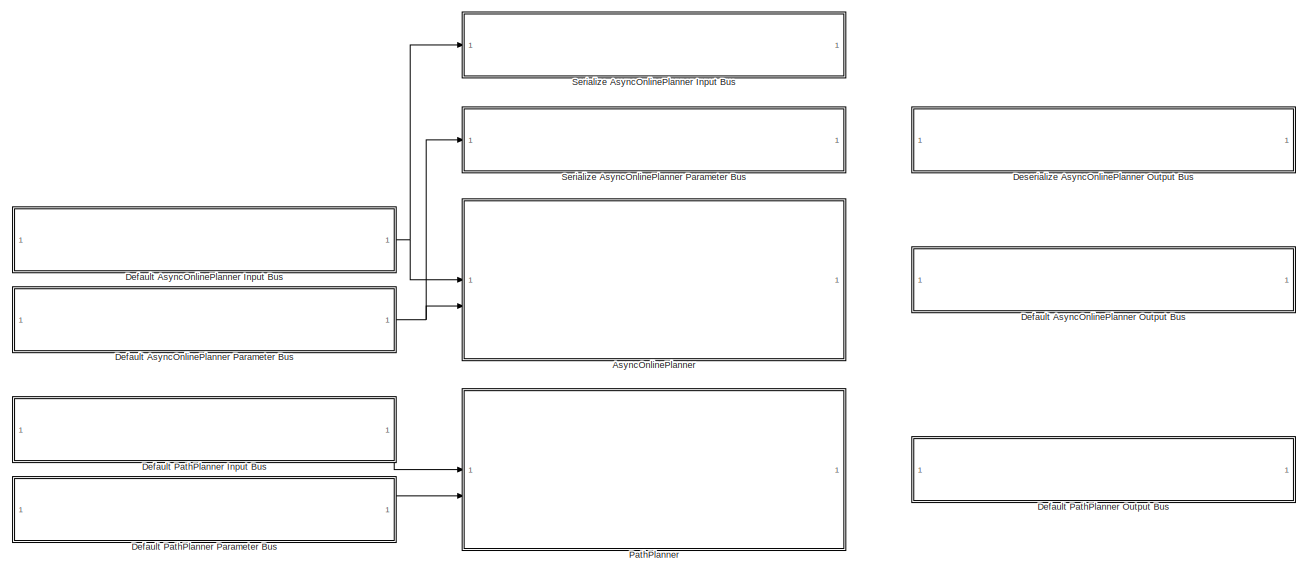
[diagram: root canvas - part 1/2, full width, top band]
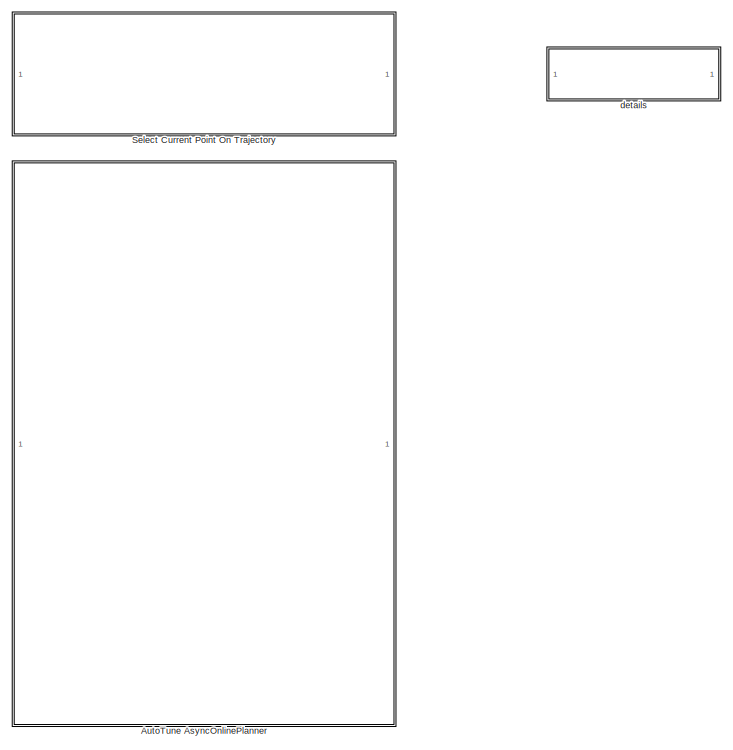
[diagram: root canvas - part 2/2, bottom center region]
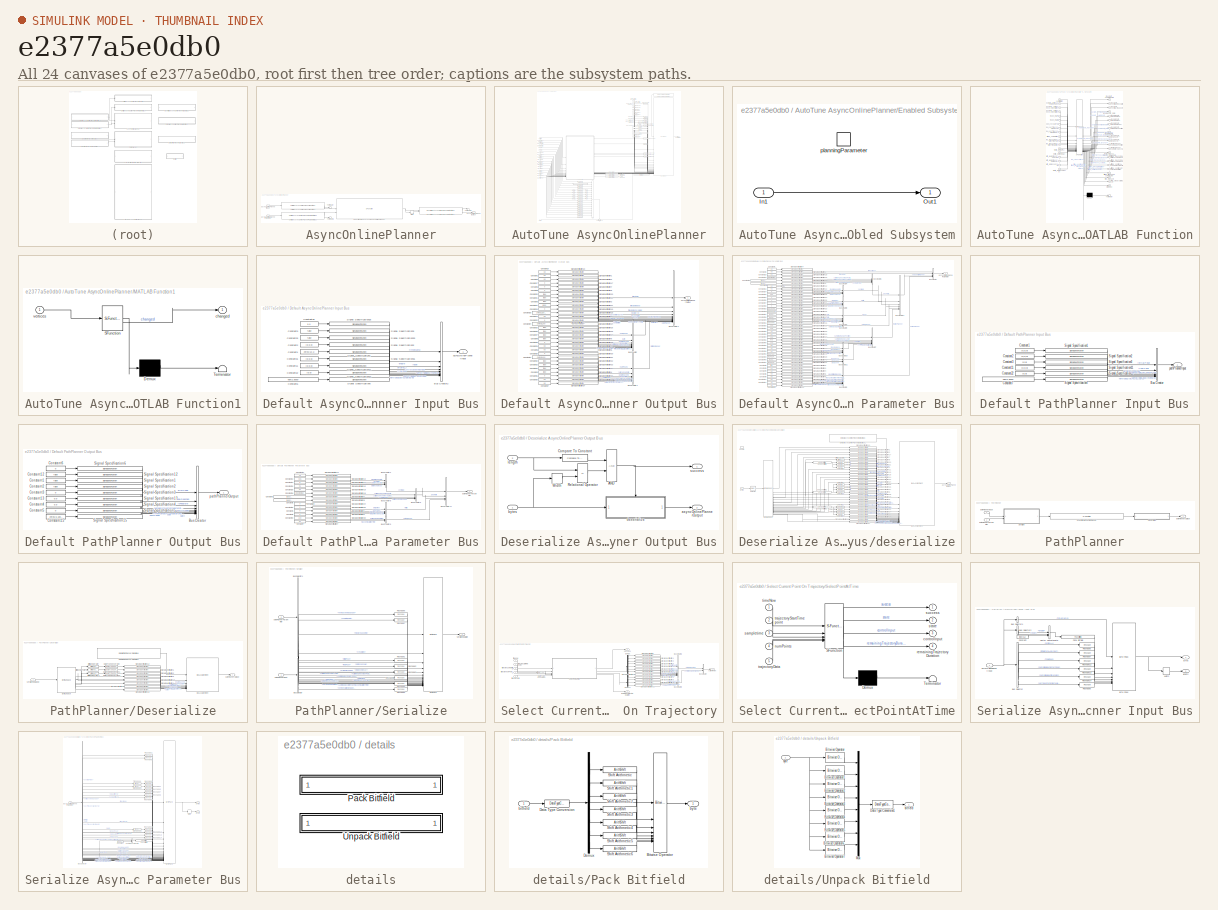
[diagram: thumbnail index - all 24 canvases of the model, root first then tree order]
MODEL slx_e2377a5e0db0
KIND library
CONFIG AbsTol = auto
CONFIG EnableMultiTasking = off
CONFIG FixedStep = auto
CONFIG MaxStep = auto
CONFIG MinStep = auto
CONFIG RelTol = 1e-3
CONFIG SampleTimeConstraint = Unconstrained
CONFIG SolverName = VariableStepAuto
CONFIG StartTime = 0.0
CONFIG StopTime = 10.0
BLOCK [SubSystem] AsyncOnlinePlanner
BLOCK [Reference] AsyncOnlinePlanner/Deserialize AsyncOnlinePlanner Output Bus  REF=$bdroot/Deserialize AsyncOnlinePlanner Output Bus
  SourceBlock = $bdroot/Deserialize AsyncOnlinePlanner Output Bus
BLOCK [S-Function] AsyncOnlinePlanner/SFunctionMPSVAsynchronousOnlinePlanner
  EnableBusSupport = off
  FunctionName = SFunctionMPSVAsynchronousOnlinePlanner
  Parameters = SParameter1, SParameter2, SParameter3, SParameter4, SParameter5, SParameter6, SParameter7, SParameter8, SParameter9
  SFcnIsStateOwnerBlock = off
  SFunctionDeploymentMode = off
BLOCK [Reference] AsyncOnlinePlanner/Serialize AsyncOnlinePlanner Input Bus  REF=$bdroot/Serialize AsyncOnlinePlanner Input Bus
  SourceBlock = $bdroot/Serialize AsyncOnlinePlanner Input Bus
BLOCK [Reference] AsyncOnlinePlanner/Serialize AsyncOnlinePlanner Parameter Bus  REF=$bdroot/Serialize AsyncOnlinePlanner Parameter Bus
  SourceBlock = $bdroot/Serialize AsyncOnlinePlanner Parameter Bus
BLOCK [Terminator] AsyncOnlinePlanner/Terminator
BLOCK [Terminator] AsyncOnlinePlanner/Terminator1
BLOCK [Terminator] AsyncOnlinePlanner/Terminator2
BLOCK [Width] AsyncOnlinePlanner/Width
  DataType = uint32
BLOCK [Inport] AsyncOnlinePlanner/asyncOnlinePlannerInput
BLOCK [Outport] AsyncOnlinePlanner/asyncOnlinePlannerOutput
BLOCK [Inport] AsyncOnlinePlanner/asyncOnlinePlannerParameter
  Port = 2
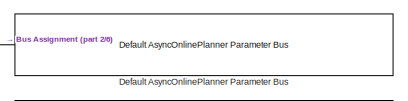
[diagram: AutoTune AsyncOnlinePlanner - part 1/6, top right region]
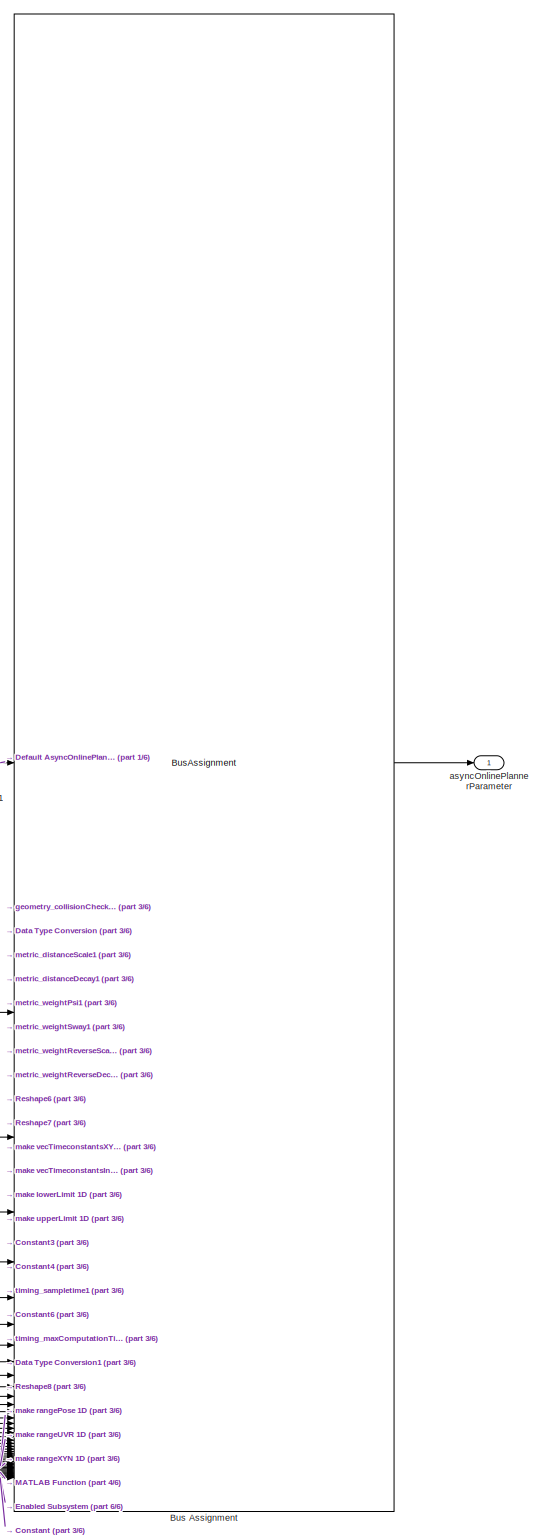
[diagram: AutoTune AsyncOnlinePlanner - part 2/6, middle right region]
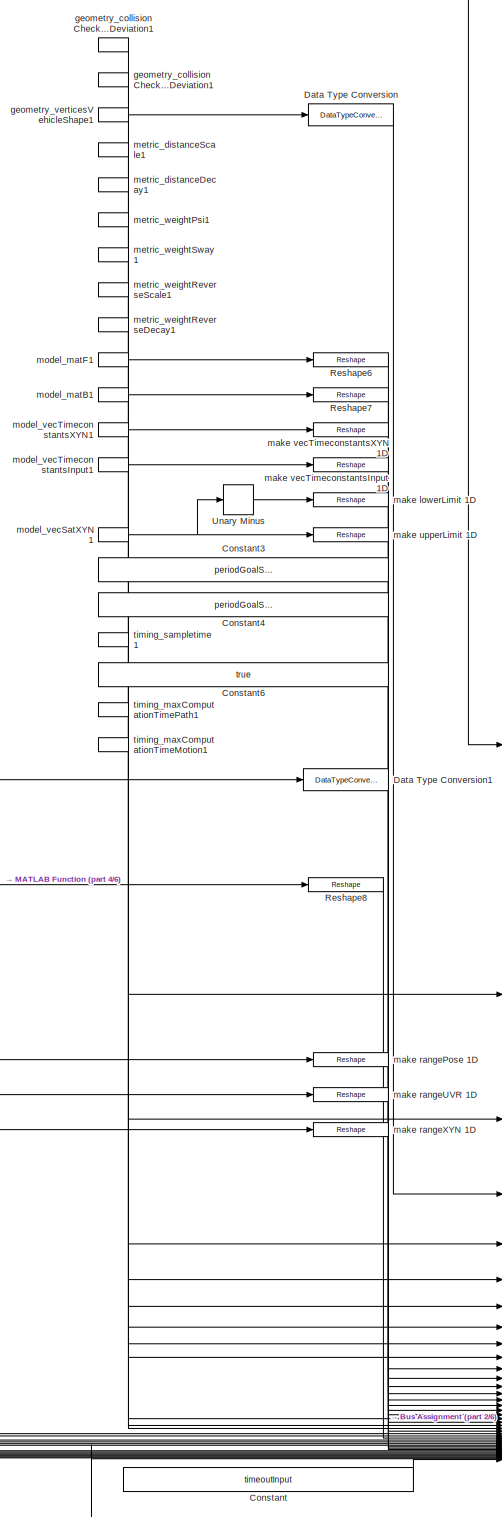
[diagram: AutoTune AsyncOnlinePlanner - part 3/6, middle right region]
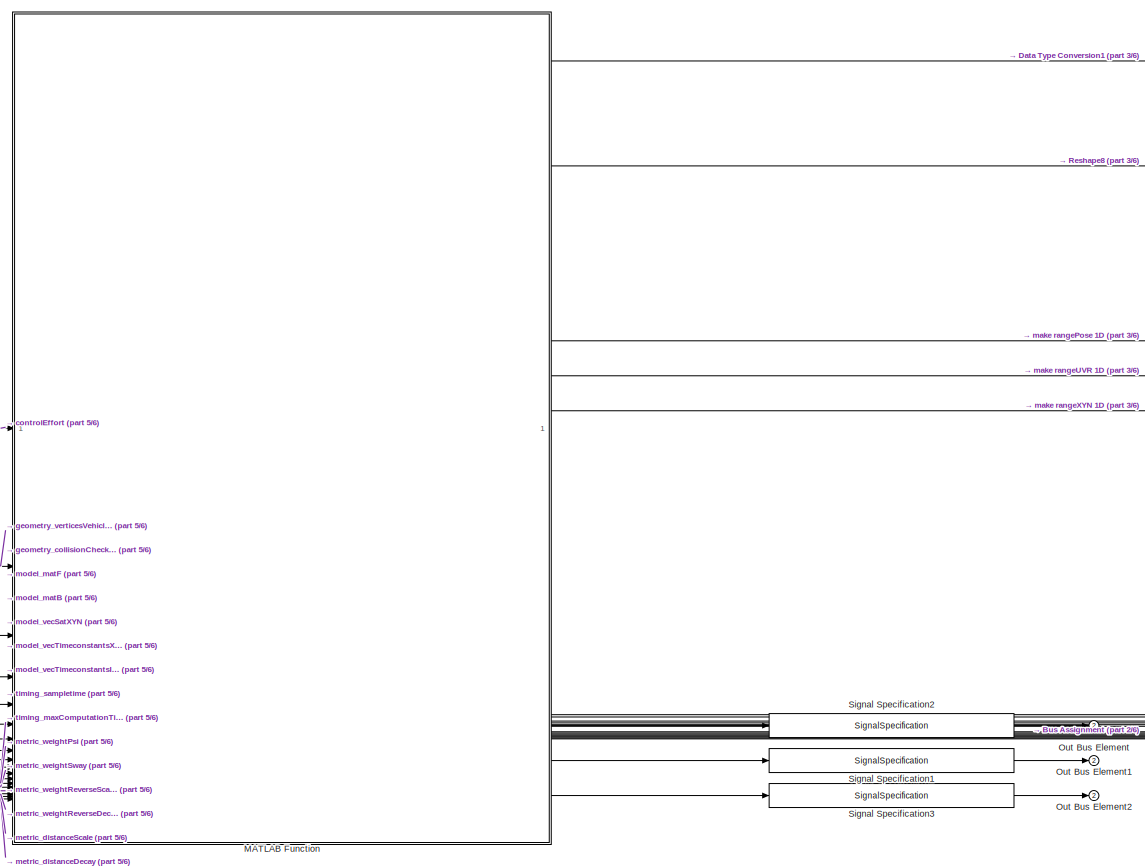
[diagram: AutoTune AsyncOnlinePlanner - part 4/6, central region]
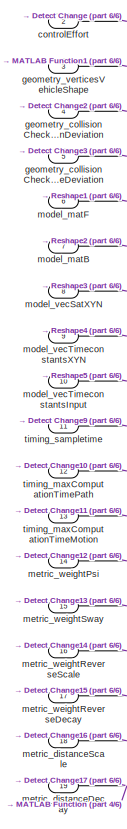
[diagram: AutoTune AsyncOnlinePlanner - part 5/6, middle left region]
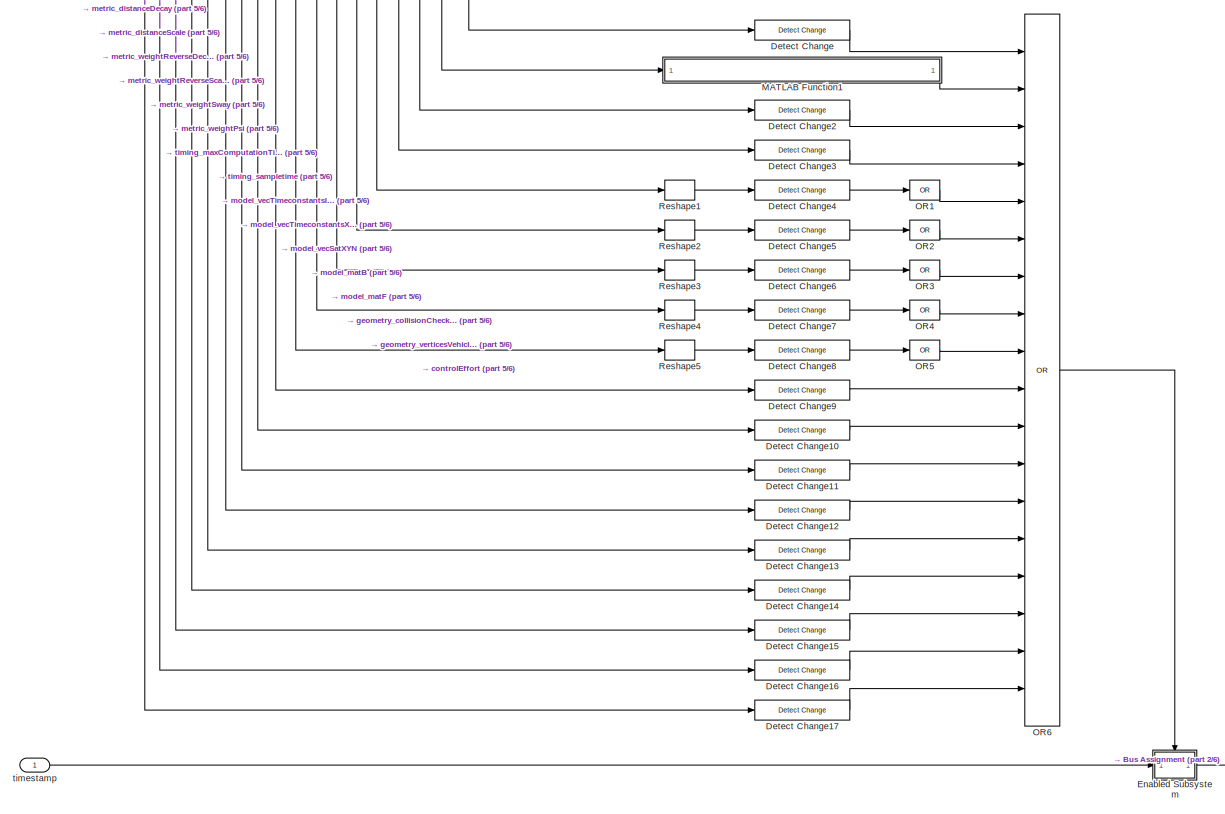
[diagram: AutoTune AsyncOnlinePlanner - part 6/6, bottom left region]
BLOCK [SubSystem] AutoTune AsyncOnlinePlanner
BLOCK [BusAssignment] AutoTune AsyncOnlinePlanner/Bus Assignment
  AssignedSignals = sequentialPlanner.geometry.collisionCheckMaxPositionDeviation,sequentialPlanner.geometry.collisionCheckMaxAngleDeviation,sequentialPlanner.geometry.verticesVehicleShape,sequentialPlanner.costMap.distanceScale,sequentialPlanner.costMap.distanceDecay,sequentialPlanner.metric.weightPsi,sequentialPlanner.metric.weightSway,sequentialPlanner.metric.weightReverseScale,sequentialPlanner.metric.weightRever...<+1456ch>
BLOCK [Constant] AutoTune AsyncOnlinePlanner/Constant
  OutDataTypeStr = double
  Value = timeoutInput
BLOCK [Constant] AutoTune AsyncOnlinePlanner/Constant3
  OutDataTypeStr = uint32
  Value = periodGoalSampling
BLOCK [Constant] AutoTune AsyncOnlinePlanner/Constant4
  OutDataTypeStr = uint32
  Value = periodGoalSampling
BLOCK [Constant] AutoTune AsyncOnlinePlanner/Constant6
  OutDataTypeStr = boolean
  Value = true
BLOCK [DataTypeConversion] AutoTune AsyncOnlinePlanner/Data Type Conversion
  OutDataTypeStr = single
  RndMeth = Floor
  SaturateOnIntegerOverflow = off
BLOCK [DataTypeConversion] AutoTune AsyncOnlinePlanner/Data Type Conversion1
  OutDataTypeStr = single
  RndMeth = Floor
  SaturateOnIntegerOverflow = off
BLOCK [Reference] AutoTune AsyncOnlinePlanner/Default AsyncOnlinePlanner Parameter Bus  REF=$bdroot/Default AsyncOnlinePlanner Parameter Bus
  SourceBlock = $bdroot/Default AsyncOnlinePlanner Parameter Bus
BLOCK [Reference] AutoTune AsyncOnlinePlanner/Detect Change  REF=simulink/Logic and Bit
Operations/Detect
Change
  SourceBlock = simulink/Logic and Bit\nOperations/Detect\nChange
  SourceType = Detect Change
BLOCK [Reference] AutoTune AsyncOnlinePlanner/Detect Change10  REF=simulink/Logic and Bit
Operations/Detect
Change
  SourceBlock = simulink/Logic and Bit\nOperations/Detect\nChange
  SourceType = Detect Change
BLOCK [Reference] AutoTune AsyncOnlinePlanner/Detect Change11  REF=simulink/Logic and Bit
Operations/Detect
Change
  SourceBlock = simulink/Logic and Bit\nOperations/Detect\nChange
  SourceType = Detect Change
BLOCK [Reference] AutoTune AsyncOnlinePlanner/Detect Change12  REF=simulink/Logic and Bit
Operations/Detect
Change
  SourceBlock = simulink/Logic and Bit\nOperations/Detect\nChange
  SourceType = Detect Change
BLOCK [Reference] AutoTune AsyncOnlinePlanner/Detect Change13  REF=simulink/Logic and Bit
Operations/Detect
Change
  SourceBlock = simulink/Logic and Bit\nOperations/Detect\nChange
  SourceType = Detect Change
BLOCK [Reference] AutoTune AsyncOnlinePlanner/Detect Change14  REF=simulink/Logic and Bit
Operations/Detect
Change
  SourceBlock = simulink/Logic and Bit\nOperations/Detect\nChange
  SourceType = Detect Change
BLOCK [Reference] AutoTune AsyncOnlinePlanner/Detect Change15  REF=simulink/Logic and Bit
Operations/Detect
Change
  SourceBlock = simulink/Logic and Bit\nOperations/Detect\nChange
  SourceType = Detect Change
BLOCK [Reference] AutoTune AsyncOnlinePlanner/Detect Change16  REF=simulink/Logic and Bit
Operations/Detect
Change
  SourceBlock = simulink/Logic and Bit\nOperations/Detect\nChange
  SourceType = Detect Change
BLOCK [Reference] AutoTune AsyncOnlinePlanner/Detect Change17  REF=simulink/Logic and Bit
Operations/Detect
Change
  SourceBlock = simulink/Logic and Bit\nOperations/Detect\nChange
  SourceType = Detect Change
BLOCK [Reference] AutoTune AsyncOnlinePlanner/Detect Change2  REF=simulink/Logic and Bit
Operations/Detect
Change
  SourceBlock = simulink/Logic and Bit\nOperations/Detect\nChange
  SourceType = Detect Change
BLOCK [Reference] AutoTune AsyncOnlinePlanner/Detect Change3  REF=simulink/Logic and Bit
Operations/Detect
Change
  SourceBlock = simulink/Logic and Bit\nOperations/Detect\nChange
  SourceType = Detect Change
BLOCK [Reference] AutoTune AsyncOnlinePlanner/Detect Change4  REF=simulink/Logic and Bit
Operations/Detect
Change
  SourceBlock = simulink/Logic and Bit\nOperations/Detect\nChange
  SourceType = Detect Change
BLOCK [Reference] AutoTune AsyncOnlinePlanner/Detect Change5  REF=simulink/Logic and Bit
Operations/Detect
Change
  SourceBlock = simulink/Logic and Bit\nOperations/Detect\nChange
  SourceType = Detect Change
BLOCK [Reference] AutoTune AsyncOnlinePlanner/Detect Change6  REF=simulink/Logic and Bit
Operations/Detect
Change
  SourceBlock = simulink/Logic and Bit\nOperations/Detect\nChange
  SourceType = Detect Change
BLOCK [Reference] AutoTune AsyncOnlinePlanner/Detect Change7  REF=simulink/Logic and Bit
Operations/Detect
Change
  SourceBlock = simulink/Logic and Bit\nOperations/Detect\nChange
  SourceType = Detect Change
BLOCK [Reference] AutoTune AsyncOnlinePlanner/Detect Change8  REF=simulink/Logic and Bit
Operations/Detect
Change
  SourceBlock = simulink/Logic and Bit\nOperations/Detect\nChange
  SourceType = Detect Change
BLOCK [Reference] AutoTune AsyncOnlinePlanner/Detect Change9  REF=simulink/Logic and Bit
Operations/Detect
Change
  SourceBlock = simulink/Logic and Bit\nOperations/Detect\nChange
  SourceType = Detect Change
BLOCK [SubSystem] AutoTune AsyncOnlinePlanner/Enabled Subsystem
  TreatAsAtomicUnit = on
BLOCK [Inport] AutoTune AsyncOnlinePlanner/Enabled Subsystem/In1
BLOCK [Outport] AutoTune AsyncOnlinePlanner/Enabled Subsystem/Out1
BLOCK [EnablePort] AutoTune AsyncOnlinePlanner/Enabled Subsystem/planningParameter
BLOCK [SubSystem] AutoTune AsyncOnlinePlanner/MATLAB Function
  ErrorFcn = Stateflow.Translate.translate
  PermitHierarchicalResolution = ExplicitOnly
  SFBlockType = MATLAB Function
  TreatAsAtomicUnit = on
BLOCK [Demux] AutoTune AsyncOnlinePlanner/MATLAB Function/ Demux 
  Outputs = 1
BLOCK [S-Function] AutoTune AsyncOnlinePlanner/MATLAB Function/ SFunction 
  EnableBusSupport = off
  FunctionName = sf_sfun
  PortCounts = [18 23]
  SFcnIsStateOwnerBlock = off
  SFunctionDeploymentMode = off
  Tag = Stateflow S-Function 3
BLOCK [Terminator] AutoTune AsyncOnlinePlanner/MATLAB Function/ Terminator 
BLOCK [Inport] AutoTune AsyncOnlinePlanner/MATLAB Function/controlEffort
BLOCK [Outport] AutoTune AsyncOnlinePlanner/MATLAB Function/errorCode
  Port = 22
BLOCK [Inport] AutoTune AsyncOnlinePlanner/MATLAB Function/geometry_collisionCheckMaxAngleDeviation
  Port = 4
BLOCK [Inport] AutoTune AsyncOnlinePlanner/MATLAB Function/geometry_collisionCheckMaxPositionDeviation
  Port = 3
BLOCK [Inport] AutoTune AsyncOnlinePlanner/MATLAB Function/geometry_verticesVehicleShape
  Port = 2
BLOCK [Inport] AutoTune AsyncOnlinePlanner/MATLAB Function/metric_distanceDecay
  Port = 18
BLOCK [Inport] AutoTune AsyncOnlinePlanner/MATLAB Function/metric_distanceScale
  Port = 17
BLOCK [Inport] AutoTune AsyncOnlinePlanner/MATLAB Function/metric_weightPsi
  Port = 13
BLOCK [Inport] AutoTune AsyncOnlinePlanner/MATLAB Function/metric_weightReverseDecay
  Port = 16
BLOCK [Inport] AutoTune AsyncOnlinePlanner/MATLAB Function/metric_weightReverseScale
  Port = 15
BLOCK [Inport] AutoTune AsyncOnlinePlanner/MATLAB Function/metric_weightSway
  Port = 14
BLOCK [Inport] AutoTune AsyncOnlinePlanner/MATLAB Function/model_matB
  Port = 6
BLOCK [Inport] AutoTune AsyncOnlinePlanner/MATLAB Function/model_matF
  Port = 5
BLOCK [Inport] AutoTune AsyncOnlinePlanner/MATLAB Function/model_vecSatXYN
  Port = 7
BLOCK [Inport] AutoTune AsyncOnlinePlanner/MATLAB Function/model_vecTimeconstantsInput
  Port = 9
BLOCK [Inport] AutoTune AsyncOnlinePlanner/MATLAB Function/model_vecTimeconstantsXYN
  Port = 8
BLOCK [Outport] AutoTune AsyncOnlinePlanner/MATLAB Function/texplorePath_matK
  Port = 4
BLOCK [Outport] AutoTune AsyncOnlinePlanner/MATLAB Function/texplorePath_maxRadiusPsi
  Port = 7
BLOCK [Outport] AutoTune AsyncOnlinePlanner/MATLAB Function/texplorePath_maxRadiusX
  Port = 5
BLOCK [Outport] AutoTune AsyncOnlinePlanner/MATLAB Function/texplorePath_maxRadiusY
  Port = 6
BLOCK [Outport] AutoTune AsyncOnlinePlanner/MATLAB Function/texplorePath_minRadiusPosition
  Port = 8
BLOCK [Outport] AutoTune AsyncOnlinePlanner/MATLAB Function/texplorePath_rangePose
  Port = 9
BLOCK [Outport] AutoTune AsyncOnlinePlanner/MATLAB Function/texplorePath_rangeUVR
  Port = 10
BLOCK [Outport] AutoTune AsyncOnlinePlanner/MATLAB Function/texplorePath_rangeXYN
  Port = 11
BLOCK [Outport] AutoTune AsyncOnlinePlanner/MATLAB Function/tgeometry_costMapModBreakpoints
  Port = 3
BLOCK [Outport] AutoTune AsyncOnlinePlanner/MATLAB Function/tgeometry_costMapResolution
  Port = 2
BLOCK [Outport] AutoTune AsyncOnlinePlanner/MATLAB Function/tgeometry_skeletalPoints
BLOCK [Inport] AutoTune AsyncOnlinePlanner/MATLAB Function/timing_maxComputationTimeMotion
  Port = 12
BLOCK [Inport] AutoTune AsyncOnlinePlanner/MATLAB Function/timing_maxComputationTimePath
  Port = 11
BLOCK [Inport] AutoTune AsyncOnlinePlanner/MATLAB Function/timing_sampletime
  Port = 10
BLOCK [Outport] AutoTune AsyncOnlinePlanner/MATLAB Function/tinfo_maxUVR
  Port = 20
BLOCK [Outport] AutoTune AsyncOnlinePlanner/MATLAB Function/tinfo_steadyStateUVR
  Port = 21
BLOCK [Outport] AutoTune AsyncOnlinePlanner/MATLAB Function/tmotionPlanner_maxInputPathLength
  Port = 14
BLOCK [Outport] AutoTune AsyncOnlinePlanner/MATLAB Function/tmotionPlanner_samplingRangeAngle
  Port = 13
BLOCK [Outport] AutoTune AsyncOnlinePlanner/MATLAB Function/tmotionPlanner_samplingRangePosition
  Port = 12
BLOCK [Outport] AutoTune AsyncOnlinePlanner/MATLAB Function/ttiming_additionalAheadPlanningTime
  Port = 17
BLOCK [Outport] AutoTune AsyncOnlinePlanner/MATLAB Function/ttiming_additionalTrajectoryDuration
  Port = 18
BLOCK [Outport] AutoTune AsyncOnlinePlanner/MATLAB Function/ttiming_maxComputationTimeMotionOnReset
  Port = 16
BLOCK [Outport] AutoTune AsyncOnlinePlanner/MATLAB Function/ttiming_maxComputationTimePathOnReset
  Port = 15
BLOCK [Outport] AutoTune AsyncOnlinePlanner/MATLAB Function/ttiming_timeKeepPastTrajectory
  Port = 19
BLOCK [SubSystem] AutoTune AsyncOnlinePlanner/MATLAB Function1
  ErrorFcn = Stateflow.Translate.translate
  PermitHierarchicalResolution = ExplicitOnly
  SFBlockType = MATLAB Function
  TreatAsAtomicUnit = on
BLOCK [Demux] AutoTune AsyncOnlinePlanner/MATLAB Function1/ Demux 
  Outputs = 1
BLOCK [S-Function] AutoTune AsyncOnlinePlanner/MATLAB Function1/ SFunction 
  EnableBusSupport = off
  FunctionName = sf_sfun
  PortCounts = [1 2]
  SFcnIsStateOwnerBlock = off
  SFunctionDeploymentMode = off
  Tag = Stateflow S-Function 6
BLOCK [Terminator] AutoTune AsyncOnlinePlanner/MATLAB Function1/ Terminator 
BLOCK [Outport] AutoTune AsyncOnlinePlanner/MATLAB Function1/changed
BLOCK [Inport] AutoTune AsyncOnlinePlanner/MATLAB Function1/vertices
BLOCK [Logic] AutoTune AsyncOnlinePlanner/OR1
  AllPortsSameDT = off
  Inputs = 1
  Operator = OR
  OutDataTypeStr = boolean
BLOCK [Logic] AutoTune AsyncOnlinePlanner/OR2
  AllPortsSameDT = off
  Inputs = 1
  Operator = OR
  OutDataTypeStr = boolean
BLOCK [Logic] AutoTune AsyncOnlinePlanner/OR3
  AllPortsSameDT = off
  Inputs = 1
  Operator = OR
  OutDataTypeStr = boolean
BLOCK [Logic] AutoTune AsyncOnlinePlanner/OR4
  AllPortsSameDT = off
  Inputs = 1
  Operator = OR
  OutDataTypeStr = boolean
BLOCK [Logic] AutoTune AsyncOnlinePlanner/OR5
  AllPortsSameDT = off
  Inputs = 1
  Operator = OR
  OutDataTypeStr = boolean
BLOCK [Logic] AutoTune AsyncOnlinePlanner/OR6
  AllPortsSameDT = off
  Inputs = 18
  Operator = OR
  OutDataTypeStr = boolean
BLOCK [Outport] AutoTune AsyncOnlinePlanner/Out Bus Element
  Port = 2
BLOCK [Outport] AutoTune AsyncOnlinePlanner/Out Bus Element1
  Port = 2
BLOCK [Outport] AutoTune AsyncOnlinePlanner/Out Bus Element2
  Port = 2
BLOCK [Reshape] AutoTune AsyncOnlinePlanner/Reshape1
  OutputDimensionality = Column vector (2-D)
BLOCK [Reshape] AutoTune AsyncOnlinePlanner/Reshape2
  OutputDimensionality = Column vector (2-D)
BLOCK [Reshape] AutoTune AsyncOnlinePlanner/Reshape3
  OutputDimensionality = Column vector (2-D)
BLOCK [Reshape] AutoTune AsyncOnlinePlanner/Reshape4
  OutputDimensionality = Column vector (2-D)
BLOCK [Reshape] AutoTune AsyncOnlinePlanner/Reshape5
  OutputDimensionality = Column vector (2-D)
BLOCK [Reshape] AutoTune AsyncOnlinePlanner/Reshape6
  OutputDimensionality = Customize
  OutputDimensions = [3,12]
BLOCK [Reshape] AutoTune AsyncOnlinePlanner/Reshape7
  OutputDimensionality = Customize
  OutputDimensions = [3,3]
BLOCK [Reshape] AutoTune AsyncOnlinePlanner/Reshape8
  OutputDimensionality = Customize
  OutputDimensions = [3,12]
BLOCK [SignalSpecification] AutoTune AsyncOnlinePlanner/Signal Specification1
  Dimensions = [3,1]
  OutDataTypeStr = double
  SignalType = real
  VarSizeSig = No
BLOCK [SignalSpecification] AutoTune AsyncOnlinePlanner/Signal Specification2
  Dimensions = [3,1]
  OutDataTypeStr = double
  SignalType = real
  VarSizeSig = No
BLOCK [SignalSpecification] AutoTune AsyncOnlinePlanner/Signal Specification3
  Dimensions = 1
  OutDataTypeStr = uint32
  SignalType = real
  VarSizeSig = No
BLOCK [UnaryMinus] AutoTune AsyncOnlinePlanner/Unary Minus
BLOCK [Outport] AutoTune AsyncOnlinePlanner/asyncOnlinePlannerParameter
BLOCK [Inport] AutoTune AsyncOnlinePlanner/controlEffort
  OutDataTypeStr = double
  Port = 2
  PortDimensions = 1
BLOCK [Inport] AutoTune AsyncOnlinePlanner/geometry_collisionCheckMaxAngleDeviation
  OutDataTypeStr = double
  Port = 5
  PortDimensions = 1
BLOCK [InportShadow] AutoTune AsyncOnlinePlanner/geometry_collisionCheckMaxAngleDeviation1
  NameLocation = left
  OutDataTypeStr = double
  Port = 5
  PortDimensions = 1
BLOCK [Inport] AutoTune AsyncOnlinePlanner/geometry_collisionCheckMaxPositionDeviation
  OutDataTypeStr = double
  Port = 4
  PortDimensions = 1
BLOCK [InportShadow] AutoTune AsyncOnlinePlanner/geometry_collisionCheckMaxPositionDeviation1
  NameLocation = left
  OutDataTypeStr = double
  Port = 4
  PortDimensions = 1
BLOCK [Inport] AutoTune AsyncOnlinePlanner/geometry_verticesVehicleShape
  OutDataTypeStr = double
  Port = 3
  PortDimensions = [2,100]
BLOCK [InportShadow] AutoTune AsyncOnlinePlanner/geometry_verticesVehicleShape1
  NameLocation = left
  OutDataTypeStr = double
  Port = 3
  PortDimensions = [2,100]
BLOCK [Reshape] AutoTune AsyncOnlinePlanner/make lowerLimit 1D
BLOCK [Reshape] AutoTune AsyncOnlinePlanner/make rangePose 1D
BLOCK [Reshape] AutoTune AsyncOnlinePlanner/make rangeUVR 1D
BLOCK [Reshape] AutoTune AsyncOnlinePlanner/make rangeXYN 1D
BLOCK [Reshape] AutoTune AsyncOnlinePlanner/make upperLimit 1D
BLOCK [Reshape] AutoTune AsyncOnlinePlanner/make vecTimeconstantsInput 1D
BLOCK [Reshape] AutoTune AsyncOnlinePlanner/make vecTimeconstantsXYN 1D
BLOCK [Inport] AutoTune AsyncOnlinePlanner/metric_distanceDecay
  OutDataTypeStr = double
  Port = 19
  PortDimensions = 1
BLOCK [InportShadow] AutoTune AsyncOnlinePlanner/metric_distanceDecay1
  NameLocation = left
  OutDataTypeStr = double
  Port = 19
  PortDimensions = 1
BLOCK [Inport] AutoTune AsyncOnlinePlanner/metric_distanceScale
  OutDataTypeStr = double
  Port = 18
  PortDimensions = 1
BLOCK [InportShadow] AutoTune AsyncOnlinePlanner/metric_distanceScale1
  NameLocation = left
  OutDataTypeStr = double
  Port = 18
  PortDimensions = 1
BLOCK [Inport] AutoTune AsyncOnlinePlanner/metric_weightPsi
  OutDataTypeStr = double
  Port = 14
  PortDimensions = 1
BLOCK [InportShadow] AutoTune AsyncOnlinePlanner/metric_weightPsi1
  NameLocation = left
  OutDataTypeStr = double
  Port = 14
  PortDimensions = 1
BLOCK [Inport] AutoTune AsyncOnlinePlanner/metric_weightReverseDecay
  OutDataTypeStr = double
  Port = 17
  PortDimensions = 1
BLOCK [InportShadow] AutoTune AsyncOnlinePlanner/metric_weightReverseDecay1
  NameLocation = left
  OutDataTypeStr = double
  Port = 17
  PortDimensions = 1
BLOCK [Inport] AutoTune AsyncOnlinePlanner/metric_weightReverseScale
  OutDataTypeStr = double
  Port = 16
  PortDimensions = 1
BLOCK [InportShadow] AutoTune AsyncOnlinePlanner/metric_weightReverseScale1
  NameLocation = left
  OutDataTypeStr = double
  Port = 16
  PortDimensions = 1
BLOCK [Inport] AutoTune AsyncOnlinePlanner/metric_weightSway
  OutDataTypeStr = double
  Port = 15
  PortDimensions = 1
BLOCK [InportShadow] AutoTune AsyncOnlinePlanner/metric_weightSway1
  NameLocation = left
  OutDataTypeStr = double
  Port = 15
  PortDimensions = 1
BLOCK [Inport] AutoTune AsyncOnlinePlanner/model_matB
  OutDataTypeStr = double
  Port = 7
  PortDimensions = [3,3]
BLOCK [InportShadow] AutoTune AsyncOnlinePlanner/model_matB1
  OutDataTypeStr = double
  Port = 7
  PortDimensions = [3,3]
BLOCK [Inport] AutoTune AsyncOnlinePlanner/model_matF
  OutDataTypeStr = double
  Port = 6
  PortDimensions = [3,12]
BLOCK [InportShadow] AutoTune AsyncOnlinePlanner/model_matF1
  OutDataTypeStr = double
  Port = 6
  PortDimensions = [3,12]
BLOCK [Inport] AutoTune AsyncOnlinePlanner/model_vecSatXYN
  OutDataTypeStr = double
  Port = 8
  PortDimensions = [3,1]
BLOCK [InportShadow] AutoTune AsyncOnlinePlanner/model_vecSatXYN1
  NameLocation = left
  OutDataTypeStr = double
  Port = 8
  PortDimensions = [3,1]
BLOCK [Inport] AutoTune AsyncOnlinePlanner/model_vecTimeconstantsInput
  OutDataTypeStr = double
  Port = 10
  PortDimensions = [3,1]
BLOCK [InportShadow] AutoTune AsyncOnlinePlanner/model_vecTimeconstantsInput1
  NameLocation = left
  OutDataTypeStr = double
  Port = 10
  PortDimensions = [3,1]
BLOCK [Inport] AutoTune AsyncOnlinePlanner/model_vecTimeconstantsXYN
  OutDataTypeStr = double
  Port = 9
  PortDimensions = [3,1]
BLOCK [InportShadow] AutoTune AsyncOnlinePlanner/model_vecTimeconstantsXYN1
  NameLocation = left
  OutDataTypeStr = double
  Port = 9
  PortDimensions = [3,1]
BLOCK [Inport] AutoTune AsyncOnlinePlanner/timestamp
  OutDataTypeStr = double
  PortDimensions = 1
BLOCK [Inport] AutoTune AsyncOnlinePlanner/timing_maxComputationTimeMotion
  OutDataTypeStr = double
  Port = 13
  PortDimensions = 1
BLOCK [InportShadow] AutoTune AsyncOnlinePlanner/timing_maxComputationTimeMotion1
  NameLocation = left
  OutDataTypeStr = double
  Port = 13
  PortDimensions = 1
BLOCK [Inport] AutoTune AsyncOnlinePlanner/timing_maxComputationTimePath
  OutDataTypeStr = double
  Port = 12
  PortDimensions = 1
BLOCK [InportShadow] AutoTune AsyncOnlinePlanner/timing_maxComputationTimePath1
  NameLocation = left
  OutDataTypeStr = double
  Port = 12
  PortDimensions = 1
BLOCK [Inport] AutoTune AsyncOnlinePlanner/timing_sampletime
  OutDataTypeStr = double
  Port = 11
  PortDimensions = 1
BLOCK [InportShadow] AutoTune AsyncOnlinePlanner/timing_sampletime1
  NameLocation = left
  OutDataTypeStr = double
  Port = 11
  PortDimensions = 1
BLOCK [SubSystem] Default AsyncOnlinePlanner Input Bus
BLOCK [BusCreator] Default AsyncOnlinePlanner Input Bus/Bus Creator2
  DisplayOption = bar
  InheritFromInputs = on
  Inputs = 9
BLOCK [Constant] Default AsyncOnlinePlanner Input Bus/Constant1
  OutDataTypeStr = double
  Value = zeros(12,1)
BLOCK [Constant] Default AsyncOnlinePlanner Input Bus/Constant11
  OutDataTypeStr = double
  Value = [0;0;0]
BLOCK [Constant] Default AsyncOnlinePlanner Input Bus/Constant2
  OutDataTypeStr = double
  Value = [0;0;0]
BLOCK [Constant] Default AsyncOnlinePlanner Input Bus/Constant22
  OutDataTypeStr = double
  Value = [0;0]
BLOCK [Constant] Default AsyncOnlinePlanner Input Bus/Constant23
  OutDataTypeStr = boolean
  Value = false
BLOCK [Constant] Default AsyncOnlinePlanner Input Bus/Constant26
  OutDataTypeStr = double
  Value = 0.0
BLOCK [Constant] Default AsyncOnlinePlanner Input Bus/Constant3
  OutDataTypeStr = boolean
  Value = false
BLOCK [Constant] Default AsyncOnlinePlanner Input Bus/Constant31
  OutDataTypeStr = double
  Value = [0;0;0]
BLOCK [Constant] Default AsyncOnlinePlanner Input Bus/Constant6
  OutDataTypeStr = single
  Value = NaN(2,8000)
BLOCK [SignalSpecification] Default AsyncOnlinePlanner Input Bus/Signal Specification1
  Dimensions = 12
  OutDataTypeStr = double
  SignalType = real
  VarSizeSig = No
BLOCK [SignalSpecification] Default AsyncOnlinePlanner Input Bus/Signal Specification11
  Dimensions = 3
  OutDataTypeStr = double
  SignalType = real
  VarSizeSig = No
BLOCK [SignalSpecification] Default AsyncOnlinePlanner Input Bus/Signal Specification2
  Dimensions = 3
  OutDataTypeStr = double
  SignalType = real
  VarSizeSig = No
BLOCK [SignalSpecification] Default AsyncOnlinePlanner Input Bus/Signal Specification22
  Dimensions = 2
  OutDataTypeStr = double
  SignalType = real
  Unit = m
  VarSizeSig = No
BLOCK [SignalSpecification] Default AsyncOnlinePlanner Input Bus/Signal Specification23
  Dimensions = 1
  OutDataTypeStr = boolean
  SignalType = real
  VarSizeSig = No
BLOCK [SignalSpecification] Default AsyncOnlinePlanner Input Bus/Signal Specification26
  Dimensions = 1
  OutDataTypeStr = double
  SignalType = real
  Unit = s
  VarSizeSig = No
BLOCK [SignalSpecification] Default AsyncOnlinePlanner Input Bus/Signal Specification3
  Dimensions = 1
  OutDataTypeStr = boolean
  SignalType = real
  VarSizeSig = No
BLOCK [SignalSpecification] Default AsyncOnlinePlanner Input Bus/Signal Specification31
  Dimensions = 3
  OutDataTypeStr = double
  SignalType = real
  VarSizeSig = No
BLOCK [SignalSpecification] Default AsyncOnlinePlanner Input Bus/Signal Specification6
  Dimensions = [2,8000]
  OutDataTypeStr = single
  SignalType = real
  Unit = m
  VarSizeSig = No
BLOCK [Outport] Default AsyncOnlinePlanner Input Bus/asyncOnlinePlannerInput
BLOCK [SubSystem] Default AsyncOnlinePlanner Output Bus
BLOCK [BusCreator] Default AsyncOnlinePlanner Output Bus/Bus Creator
  DisplayOption = bar
  InheritFromInputs = on
  Inputs = 9
BLOCK [BusCreator] Default AsyncOnlinePlanner Output Bus/Bus Creator1
  DisplayOption = bar
  InheritFromInputs = on
  Inputs = 9
BLOCK [BusCreator] Default AsyncOnlinePlanner Output Bus/Bus Creator2
  DisplayOption = bar
  InheritFromInputs = on
  Inputs = 15
BLOCK [Constant] Default AsyncOnlinePlanner Output Bus/Constant1
  OutDataTypeStr = double
  Value = 0.0
BLOCK [Constant] Default AsyncOnlinePlanner Output Bus/Constant10
  OutDataTypeStr = double
  Value = 0.0
BLOCK [Constant] Default AsyncOnlinePlanner Output Bus/Constant11
  OutDataTypeStr = double
  Value = [0;0;0]
BLOCK [Constant] Default AsyncOnlinePlanner Output Bus/Constant14
  OutDataTypeStr = double
  Value = 0.0
BLOCK [Constant] Default AsyncOnlinePlanner Output Bus/Constant17
  OutDataTypeStr = uint8
  Value = 0
BLOCK [Constant] Default AsyncOnlinePlanner Output Bus/Constant18
  OutDataTypeStr = double
  Value = zeros(12,500)
BLOCK [Constant] Default AsyncOnlinePlanner Output Bus/Constant19
  OutDataTypeStr = uint16
  Value = 0
BLOCK [Constant] Default AsyncOnlinePlanner Output Bus/Constant2
  OutDataTypeStr = double
  Value = 0.0
BLOCK [Constant] Default AsyncOnlinePlanner Output Bus/Constant20
  OutDataTypeStr = boolean
  Value = false
BLOCK [Constant] Default AsyncOnlinePlanner Output Bus/Constant21
  OutDataTypeStr = boolean
  Value = false
BLOCK [Constant] Default AsyncOnlinePlanner Output Bus/Constant22
  OutDataTypeStr = uint16
  Value = 0
BLOCK [Constant] Default AsyncOnlinePlanner Output Bus/Constant24
  OutDataTypeStr = double
  Value = zeros(3,100)
BLOCK [Constant] Default AsyncOnlinePlanner Output Bus/Constant25
  OutDataTypeStr = boolean
  Value = false
BLOCK [Constant] Default AsyncOnlinePlanner Output Bus/Constant26
  OutDataTypeStr = boolean
  Value = false
BLOCK [Constant] Default AsyncOnlinePlanner Output Bus/Constant27
  OutDataTypeStr = boolean
  Value = false
BLOCK [Constant] Default AsyncOnlinePlanner Output Bus/Constant28
  OutDataTypeStr = uint32
  Value = 0
BLOCK [Constant] Default AsyncOnlinePlanner Output Bus/Constant29
  OutDataTypeStr = double
  Value = 0.0
BLOCK [Constant] Default AsyncOnlinePlanner Output Bus/Constant3
  OutDataTypeStr = boolean
  Value = false
BLOCK [Constant] Default AsyncOnlinePlanner Output Bus/Constant30
  OutDataTypeStr = uint16
  Value = 0
BLOCK [Constant] Default AsyncOnlinePlanner Output Bus/Constant31
  OutDataTypeStr = double
  Value = zeros(3,100)
BLOCK [Constant] Default AsyncOnlinePlanner Output Bus/Constant32
  OutDataTypeStr = boolean
  Value = false
BLOCK [Constant] Default AsyncOnlinePlanner Output Bus/Constant33
  OutDataTypeStr = boolean
  Value = false
BLOCK [Constant] Default AsyncOnlinePlanner Output Bus/Constant34
  OutDataTypeStr = boolean
  Value = false
BLOCK [Constant] Default AsyncOnlinePlanner Output Bus/Constant35
  OutDataTypeStr = uint32
  Value = 0
BLOCK [Constant] Default AsyncOnlinePlanner Output Bus/Constant36
  OutDataTypeStr = double
  Value = 0.0
BLOCK [Constant] Default AsyncOnlinePlanner Output Bus/Constant37
  OutDataTypeStr = double
  Value = 0.0
BLOCK [Constant] Default AsyncOnlinePlanner Output Bus/Constant4
  OutDataTypeStr = boolean
  Value = false
BLOCK [Constant] Default AsyncOnlinePlanner Output Bus/Constant5
  OutDataTypeStr = double
  Value = 0.0
BLOCK [Constant] Default AsyncOnlinePlanner Output Bus/Constant6
  OutDataTypeStr = uint8
  Value = 0
BLOCK [Constant] Default AsyncOnlinePlanner Output Bus/Constant8
  OutDataTypeStr = uint8
  Value = 0
BLOCK [Constant] Default AsyncOnlinePlanner Output Bus/Constant9
  OutDataTypeStr = boolean
  Value = false
BLOCK [SignalSpecification] Default AsyncOnlinePlanner Output Bus/Signal Specification1
  Dimensions = 1
  OutDataTypeStr = double
  SignalType = real
  Unit = s
  VarSizeSig = No
BLOCK [SignalSpecification] Default AsyncOnlinePlanner Output Bus/Signal Specification10
  Dimensions = 1
  OutDataTypeStr = double
  SignalType = real
  Unit = s
  VarSizeSig = No
BLOCK [SignalSpecification] Default AsyncOnlinePlanner Output Bus/Signal Specification11
  Dimensions = 3
  OutDataTypeStr = double
  SignalType = real
  VarSizeSig = No
BLOCK [SignalSpecification] Default AsyncOnlinePlanner Output Bus/Signal Specification14
  Dimensions = 1
  OutDataTypeStr = double
  SignalType = real
  Unit = s
  VarSizeSig = No
BLOCK [SignalSpecification] Default AsyncOnlinePlanner Output Bus/Signal Specification17
  Dimensions = 1
  OutDataTypeStr = uint8
  SignalType = real
  VarSizeSig = No
BLOCK [SignalSpecification] Default AsyncOnlinePlanner Output Bus/Signal Specification18
  Dimensions = [12,500]
  OutDataTypeStr = double
  SignalType = real
  VarSizeSig = No
BLOCK [SignalSpecification] Default AsyncOnlinePlanner Output Bus/Signal Specification19
  Dimensions = 1
  OutDataTypeStr = uint16
  SignalType = real
  VarSizeSig = No
BLOCK [SignalSpecification] Default AsyncOnlinePlanner Output Bus/Signal Specification2
  Dimensions = 1
  OutDataTypeStr = double
  SignalType = real
  Unit = s
  VarSizeSig = No
BLOCK [SignalSpecification] Default AsyncOnlinePlanner Output Bus/Signal Specification20
  Dimensions = 1
  OutDataTypeStr = boolean
  SignalType = real
  VarSizeSig = No
BLOCK [SignalSpecification] Default AsyncOnlinePlanner Output Bus/Signal Specification21
  Dimensions = 1
  OutDataTypeStr = boolean
  SignalType = real
  VarSizeSig = No
BLOCK [SignalSpecification] Default AsyncOnlinePlanner Output Bus/Signal Specification22
  Dimensions = 1
  OutDataTypeStr = uint16
  SignalType = real
  VarSizeSig = No
BLOCK [SignalSpecification] Default AsyncOnlinePlanner Output Bus/Signal Specification24
  Dimensions = [3,100]
  OutDataTypeStr = double
  SignalType = real
  VarSizeSig = No
BLOCK [SignalSpecification] Default AsyncOnlinePlanner Output Bus/Signal Specification25
  Dimensions = 1
  OutDataTypeStr = boolean
  SignalType = real
  VarSizeSig = No
BLOCK [SignalSpecification] Default AsyncOnlinePlanner Output Bus/Signal Specification26
  Dimensions = 1
  OutDataTypeStr = boolean
  SignalType = real
  VarSizeSig = No
BLOCK [SignalSpecification] Default AsyncOnlinePlanner Output Bus/Signal Specification27
  Dimensions = 1
  OutDataTypeStr = boolean
  SignalType = real
  VarSizeSig = No
BLOCK [SignalSpecification] Default AsyncOnlinePlanner Output Bus/Signal Specification28
  Dimensions = 1
  OutDataTypeStr = uint32
  SignalType = real
  VarSizeSig = No
BLOCK [SignalSpecification] Default AsyncOnlinePlanner Output Bus/Signal Specification29
  Dimensions = 1
  OutDataTypeStr = double
  SignalType = real
  Unit = s
  VarSizeSig = No
BLOCK [SignalSpecification] Default AsyncOnlinePlanner Output Bus/Signal Specification3
  Dimensions = 1
  OutDataTypeStr = boolean
  SignalType = real
  VarSizeSig = No
BLOCK [SignalSpecification] Default AsyncOnlinePlanner Output Bus/Signal Specification30
  Dimensions = 1
  OutDataTypeStr = uint16
  SignalType = real
  VarSizeSig = No
BLOCK [SignalSpecification] Default AsyncOnlinePlanner Output Bus/Signal Specification31
  Dimensions = [3,100]
  OutDataTypeStr = double
  SignalType = real
  VarSizeSig = No
BLOCK [SignalSpecification] Default AsyncOnlinePlanner Output Bus/Signal Specification32
  Dimensions = 1
  OutDataTypeStr = boolean
  SignalType = real
  VarSizeSig = No
BLOCK [SignalSpecification] Default AsyncOnlinePlanner Output Bus/Signal Specification33
  Dimensions = 1
  OutDataTypeStr = boolean
  SignalType = real
  VarSizeSig = No
BLOCK [SignalSpecification] Default AsyncOnlinePlanner Output Bus/Signal Specification34
  Dimensions = 1
  OutDataTypeStr = boolean
  SignalType = real
  VarSizeSig = No
BLOCK [SignalSpecification] Default AsyncOnlinePlanner Output Bus/Signal Specification35
  Dimensions = 1
  OutDataTypeStr = uint32
  SignalType = real
  VarSizeSig = No
BLOCK [SignalSpecification] Default AsyncOnlinePlanner Output Bus/Signal Specification36
  Dimensions = 1
  OutDataTypeStr = double
  SignalType = real
  Unit = s
  VarSizeSig = No
BLOCK [SignalSpecification] Default AsyncOnlinePlanner Output Bus/Signal Specification37
  Dimensions = 1
  OutDataTypeStr = double
  SignalType = real
  VarSizeSig = No
BLOCK [SignalSpecification] Default AsyncOnlinePlanner Output Bus/Signal Specification4
  Dimensions = 1
  OutDataTypeStr = boolean
  SignalType = real
  VarSizeSig = No
BLOCK [SignalSpecification] Default AsyncOnlinePlanner Output Bus/Signal Specification5
  Dimensions = 1
  OutDataTypeStr = double
  SignalType = real
  VarSizeSig = No
BLOCK [SignalSpecification] Default AsyncOnlinePlanner Output Bus/Signal Specification6
  Dimensions = 1
  OutDataTypeStr = boolean
  SignalType = real
  VarSizeSig = No
BLOCK [SignalSpecification] Default AsyncOnlinePlanner Output Bus/Signal Specification7
  Dimensions = 1
  OutDataTypeStr = uint8
  SignalType = real
  VarSizeSig = No
BLOCK [SignalSpecification] Default AsyncOnlinePlanner Output Bus/Signal Specification8
  Dimensions = 1
  OutDataTypeStr = uint8
  SignalType = real
  VarSizeSig = No
BLOCK [Outport] Default AsyncOnlinePlanner Output Bus/asyncOnlinePlannerOutput
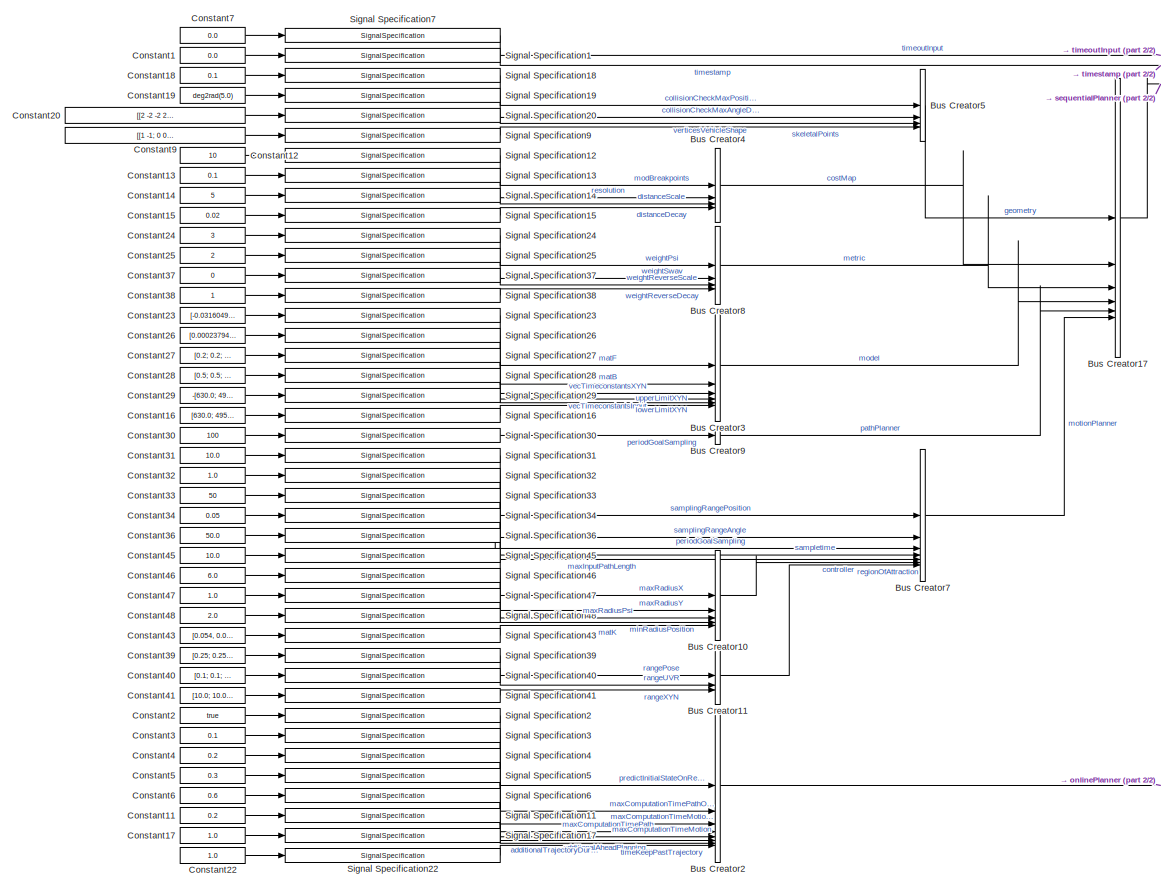
[diagram: Default AsyncOnlinePlanner Parameter Bus - part 1/2, most of the canvas]
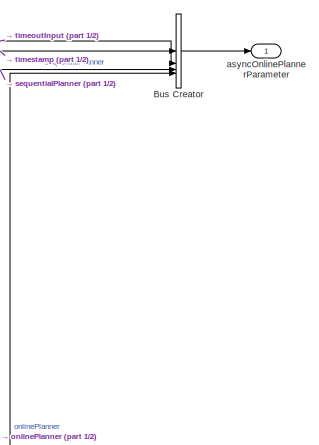
[diagram: Default AsyncOnlinePlanner Parameter Bus - part 2/2, top right region]
BLOCK [SubSystem] Default AsyncOnlinePlanner Parameter Bus
BLOCK [BusCreator] Default AsyncOnlinePlanner Parameter Bus/Bus Creator
  DisplayOption = bar
  InheritFromInputs = on
  Inputs = 4
BLOCK [BusCreator] Default AsyncOnlinePlanner Parameter Bus/Bus Creator10
  DisplayOption = bar
  InheritFromInputs = on
  Inputs = 5
BLOCK [BusCreator] Default AsyncOnlinePlanner Parameter Bus/Bus Creator11
  DisplayOption = bar
  InheritFromInputs = on
  Inputs = 3
BLOCK [BusCreator] Default AsyncOnlinePlanner Parameter Bus/Bus Creator17
  DisplayOption = bar
  InheritFromInputs = on
  Inputs = 6
BLOCK [BusCreator] Default AsyncOnlinePlanner Parameter Bus/Bus Creator2
  DisplayOption = bar
  InheritFromInputs = on
  Inputs = 8
BLOCK [BusCreator] Default AsyncOnlinePlanner Parameter Bus/Bus Creator3
  DisplayOption = bar
  InheritFromInputs = on
  Inputs = 6
BLOCK [BusCreator] Default AsyncOnlinePlanner Parameter Bus/Bus Creator4
  DisplayOption = bar
  InheritFromInputs = on
  Inputs = 4
BLOCK [BusCreator] Default AsyncOnlinePlanner Parameter Bus/Bus Creator5
  DisplayOption = bar
  InheritFromInputs = on
  Inputs = 4
BLOCK [BusCreator] Default AsyncOnlinePlanner Parameter Bus/Bus Creator7
  DisplayOption = bar
  InheritFromInputs = on
  Inputs = 7
BLOCK [BusCreator] Default AsyncOnlinePlanner Parameter Bus/Bus Creator8
  DisplayOption = bar
  InheritFromInputs = on
  Inputs = 4
BLOCK [BusCreator] Default AsyncOnlinePlanner Parameter Bus/Bus Creator9
  DisplayOption = bar
  InheritFromInputs = on
  Inputs = 1
BLOCK [Constant] Default AsyncOnlinePlanner Parameter Bus/Constant1
  OutDataTypeStr = double
  Value = 0.0
BLOCK [Constant] Default AsyncOnlinePlanner Parameter Bus/Constant11
  OutDataTypeStr = double
  Value = 0.2
BLOCK [Constant] Default AsyncOnlinePlanner Parameter Bus/Constant12
  OutDataTypeStr = int32
  Value = 10
BLOCK [Constant] Default AsyncOnlinePlanner Parameter Bus/Constant13
  OutDataTypeStr = double
  Value = 0.1
BLOCK [Constant] Default AsyncOnlinePlanner Parameter Bus/Constant14
  OutDataTypeStr = double
  Value = 5
BLOCK [Constant] Default AsyncOnlinePlanner Parameter Bus/Constant15
  OutDataTypeStr = double
  Value = 0.02
BLOCK [Constant] Default AsyncOnlinePlanner Parameter Bus/Constant16
  OutDataTypeStr = double
  Value = [630.0; 495.0; 675.0]
BLOCK [Constant] Default AsyncOnlinePlanner Parameter Bus/Constant17
  OutDataTypeStr = double
  Value = 1.0
BLOCK [Constant] Default AsyncOnlinePlanner Parameter Bus/Constant18
  OutDataTypeStr = double
  Value = 0.1
BLOCK [Constant] Default AsyncOnlinePlanner Parameter Bus/Constant19
  OutDataTypeStr = double
  Value = deg2rad(5.0)
BLOCK [Constant] Default AsyncOnlinePlanner Parameter Bus/Constant2
  OutDataTypeStr = boolean
  Value = true
BLOCK [Constant] Default AsyncOnlinePlanner Parameter Bus/Constant20
  OutDataTypeStr = single
  Value = [[2 -2 -2 2; 1 1 -1 -1], NaN(2,96)]
BLOCK [Constant] Default AsyncOnlinePlanner Parameter Bus/Constant22
  OutDataTypeStr = double
  Value = 1.0
BLOCK [Constant] Default AsyncOnlinePlanner Parameter Bus/Constant23
  OutDataTypeStr = double
  Value = [-0.031604977390302, 0.0, 0.0, 0.233741474945168, 0.0, 0.0, 0.0, 0.0, 0.133462292221887, -0.020792892088185, 0.0, 0.0; 0.0, -0.041708610292712, 0.017242263124379, 0.0, -0.251243228165994, -0.000476044356140, 0.0, 0.0, 0.005297185500344, 0.0, -0.167981638498434, 0.497442136687157; 0.0, 0.000017966020615, -0.023528504195578, 0.0, 0.000108223241795, 0.000649602175186, 0.0, 0.0, -0.000002281767319, 0....<+41ch>
BLOCK [Constant] Default AsyncOnlinePlanner Parameter Bus/Constant24
  OutDataTypeStr = double
  Value = 3
BLOCK [Constant] Default AsyncOnlinePlanner Parameter Bus/Constant25
  OutDataTypeStr = double
  Value = 2
BLOCK [Constant] Default AsyncOnlinePlanner Parameter Bus/Constant26
  OutDataTypeStr = double
  Value = [0.000237948834266, -0.000004551592718, 0.000010003488944; -0.000009313932115, 0.000215194147058, -0.000024957572224; -0.000002202124158, -0.000002930260852, 0.000043018345190]
BLOCK [Constant] Default AsyncOnlinePlanner Parameter Bus/Constant27
  OutDataTypeStr = double
  Value = [0.2; 0.2; 0.2]
BLOCK [Constant] Default AsyncOnlinePlanner Parameter Bus/Constant28
  OutDataTypeStr = double
  Value = [0.5; 0.5; 0.5]
BLOCK [Constant] Default AsyncOnlinePlanner Parameter Bus/Constant29
  OutDataTypeStr = double
  Value = -[630.0; 495.0; 675.0]
BLOCK [Constant] Default AsyncOnlinePlanner Parameter Bus/Constant3
  OutDataTypeStr = double
  Value = 0.1
BLOCK [Constant] Default AsyncOnlinePlanner Parameter Bus/Constant30
  OutDataTypeStr = uint32
  Value = 100
BLOCK [Constant] Default AsyncOnlinePlanner Parameter Bus/Constant31
  OutDataTypeStr = double
  Value = 10.0
BLOCK [Constant] Default AsyncOnlinePlanner Parameter Bus/Constant32
  OutDataTypeStr = double
  Value = 1.0
BLOCK [Constant] Default AsyncOnlinePlanner Parameter Bus/Constant33
  OutDataTypeStr = uint32
  Value = 50
BLOCK [Constant] Default AsyncOnlinePlanner Parameter Bus/Constant34
  OutDataTypeStr = double
  Value = 0.05
BLOCK [Constant] Default AsyncOnlinePlanner Parameter Bus/Constant36
  OutDataTypeStr = double
  Value = 50.0
BLOCK [Constant] Default AsyncOnlinePlanner Parameter Bus/Constant37
  OutDataTypeStr = double
  Value = 0
BLOCK [Constant] Default AsyncOnlinePlanner Parameter Bus/Constant38
  OutDataTypeStr = double
BLOCK [Constant] Default AsyncOnlinePlanner Parameter Bus/Constant39
  OutDataTypeStr = double
  Value = [0.25; 0.25; 0.15]
BLOCK [Constant] Default AsyncOnlinePlanner Parameter Bus/Constant4
  OutDataTypeStr = double
  Value = 0.2
BLOCK [Constant] Default AsyncOnlinePlanner Parameter Bus/Constant40
  OutDataTypeStr = double
  Value = [0.1; 0.1; 0.01]
BLOCK [Constant] Default AsyncOnlinePlanner Parameter Bus/Constant41
  OutDataTypeStr = double
  Value = [10.0; 10.0; 10.0]
BLOCK [Constant] Default AsyncOnlinePlanner Parameter Bus/Constant43
  OutDataTypeStr = double
  Value = [0.054, 0.0, 0.0, 0.531, 0.0, 0.0, 1.785, 0.0, 0.0, 2.35, 0.0, 0.0; 0.0, 0.054, 0.0, 0.0, 0.531, 0.0, 0.0, 1.785, 0.0, 0.0, 2.35, 0.0; 0.0, 0.0, 0.054, 0.0, 0.0, 0.531, 0.0, 0.0, 1.785, 0.0, 0.0, 2.35]
BLOCK [Constant] Default AsyncOnlinePlanner Parameter Bus/Constant45
  OutDataTypeStr = double
  Value = 10.0
BLOCK [Constant] Default AsyncOnlinePlanner Parameter Bus/Constant46
  OutDataTypeStr = double
  Value = 6.0
BLOCK [Constant] Default AsyncOnlinePlanner Parameter Bus/Constant47
  OutDataTypeStr = double
  Value = 1.0
BLOCK [Constant] Default AsyncOnlinePlanner Parameter Bus/Constant48
  OutDataTypeStr = double
  Value = 2.0
BLOCK [Constant] Default AsyncOnlinePlanner Parameter Bus/Constant5
  OutDataTypeStr = double
  Value = 0.3
BLOCK [Constant] Default AsyncOnlinePlanner Parameter Bus/Constant6
  OutDataTypeStr = double
  Value = 0.6
BLOCK [Constant] Default AsyncOnlinePlanner Parameter Bus/Constant7
  OutDataTypeStr = double
  Value = 0.0
BLOCK [Constant] Default AsyncOnlinePlanner Parameter Bus/Constant9
  OutDataTypeStr = single
  Value = [[1 -1; 0 0], NaN(2,8)]
BLOCK [SignalSpecification] Default AsyncOnlinePlanner Parameter Bus/Signal Specification1
  Dimensions = 1
  OutDataTypeStr = double
  SignalType = real
  Unit = s
  VarSizeSig = No
BLOCK [SignalSpecification] Default AsyncOnlinePlanner Parameter Bus/Signal Specification11
  Dimensions = 1
  OutDataTypeStr = double
  SignalType = real
  Unit = s
  VarSizeSig = No
BLOCK [SignalSpecification] Default AsyncOnlinePlanner Parameter Bus/Signal Specification12
  Dimensions = 1
  OutDataTypeStr = int32
  SignalType = real
  VarSizeSig = No
BLOCK [SignalSpecification] Default AsyncOnlinePlanner Parameter Bus/Signal Specification13
  Dimensions = 1
  OutDataTypeStr = double
  SignalType = real
  Unit = m
  VarSizeSig = No
BLOCK [SignalSpecification] Default AsyncOnlinePlanner Parameter Bus/Signal Specification14
  Dimensions = 1
  OutDataTypeStr = double
  SignalType = real
  VarSizeSig = No
BLOCK [SignalSpecification] Default AsyncOnlinePlanner Parameter Bus/Signal Specification15
  Dimensions = 1
  OutDataTypeStr = double
  SignalType = real
  VarSizeSig = No
BLOCK [SignalSpecification] Default AsyncOnlinePlanner Parameter Bus/Signal Specification16
  Dimensions = 3
  OutDataTypeStr = double
  SignalType = real
  VarSizeSig = No
BLOCK [SignalSpecification] Default AsyncOnlinePlanner Parameter Bus/Signal Specification17
  Dimensions = 1
  OutDataTypeStr = double
  SignalType = real
  Unit = s
  VarSizeSig = No
BLOCK [SignalSpecification] Default AsyncOnlinePlanner Parameter Bus/Signal Specification18
  Dimensions = 1
  OutDataTypeStr = double
  SignalType = real
  Unit = m
  VarSizeSig = No
BLOCK [SignalSpecification] Default AsyncOnlinePlanner Parameter Bus/Signal Specification19
  Dimensions = 1
  OutDataTypeStr = double
  SignalType = real
  Unit = rad
  VarSizeSig = No
BLOCK [SignalSpecification] Default AsyncOnlinePlanner Parameter Bus/Signal Specification2
  Dimensions = 1
  OutDataTypeStr = boolean
  SignalType = real
  VarSizeSig = No
BLOCK [SignalSpecification] Default AsyncOnlinePlanner Parameter Bus/Signal Specification20
  Dimensions = [2,100]
  OutDataTypeStr = single
  SignalType = real
  Unit = m
  VarSizeSig = No
BLOCK [SignalSpecification] Default AsyncOnlinePlanner Parameter Bus/Signal Specification22
  Dimensions = 1
  OutDataTypeStr = double
  SignalType = real
  Unit = s
  VarSizeSig = No
BLOCK [SignalSpecification] Default AsyncOnlinePlanner Parameter Bus/Signal Specification23
  Dimensions = [3,12]
  OutDataTypeStr = double
  SignalType = real
  VarSizeSig = No
BLOCK [SignalSpecification] Default AsyncOnlinePlanner Parameter Bus/Signal Specification24
  Dimensions = 1
  OutDataTypeStr = double
  SignalType = real
  VarSizeSig = No
BLOCK [SignalSpecification] Default AsyncOnlinePlanner Parameter Bus/Signal Specification25
  Dimensions = 1
  OutDataTypeStr = double
  SignalType = real
  VarSizeSig = No
BLOCK [SignalSpecification] Default AsyncOnlinePlanner Parameter Bus/Signal Specification26
  Dimensions = [3,3]
  OutDataTypeStr = double
  SignalType = real
  VarSizeSig = No
BLOCK [SignalSpecification] Default AsyncOnlinePlanner Parameter Bus/Signal Specification27
  Dimensions = 3
  OutDataTypeStr = double
  SignalType = real
  Unit = s
  VarSizeSig = No
BLOCK [SignalSpecification] Default AsyncOnlinePlanner Parameter Bus/Signal Specification28
  Dimensions = 3
  OutDataTypeStr = double
  SignalType = real
  Unit = s
  VarSizeSig = No
BLOCK [SignalSpecification] Default AsyncOnlinePlanner Parameter Bus/Signal Specification29
  Dimensions = 3
  OutDataTypeStr = double
  SignalType = real
  VarSizeSig = No
BLOCK [SignalSpecification] Default AsyncOnlinePlanner Parameter Bus/Signal Specification3
  Dimensions = 1
  OutDataTypeStr = double
  SignalType = real
  Unit = s
  VarSizeSig = No
BLOCK [SignalSpecification] Default AsyncOnlinePlanner Parameter Bus/Signal Specification30
  Dimensions = 1
  OutDataTypeStr = uint32
  SignalType = real
  VarSizeSig = No
BLOCK [SignalSpecification] Default AsyncOnlinePlanner Parameter Bus/Signal Specification31
  Dimensions = 1
  OutDataTypeStr = double
  SignalType = real
  Unit = m
  VarSizeSig = No
BLOCK [SignalSpecification] Default AsyncOnlinePlanner Parameter Bus/Signal Specification32
  Dimensions = 1
  OutDataTypeStr = double
  SignalType = real
  Unit = rad
  VarSizeSig = No
BLOCK [SignalSpecification] Default AsyncOnlinePlanner Parameter Bus/Signal Specification33
  Dimensions = 1
  OutDataTypeStr = uint32
  SignalType = real
  VarSizeSig = No
BLOCK [SignalSpecification] Default AsyncOnlinePlanner Parameter Bus/Signal Specification34
  Dimensions = 1
  OutDataTypeStr = double
  SignalType = real
  Unit = s
  VarSizeSig = No
BLOCK [SignalSpecification] Default AsyncOnlinePlanner Parameter Bus/Signal Specification36
  Dimensions = 1
  OutDataTypeStr = double
  SignalType = real
  Unit = m
  VarSizeSig = No
BLOCK [SignalSpecification] Default AsyncOnlinePlanner Parameter Bus/Signal Specification37
  Dimensions = 1
  OutDataTypeStr = double
  SignalType = real
  VarSizeSig = No
BLOCK [SignalSpecification] Default AsyncOnlinePlanner Parameter Bus/Signal Specification38
  Dimensions = 1
  OutDataTypeStr = double
  SignalType = real
  VarSizeSig = No
BLOCK [SignalSpecification] Default AsyncOnlinePlanner Parameter Bus/Signal Specification39
  Dimensions = 3
  OutDataTypeStr = double
  SignalType = real
  VarSizeSig = No
BLOCK [SignalSpecification] Default AsyncOnlinePlanner Parameter Bus/Signal Specification4
  Dimensions = 1
  OutDataTypeStr = double
  SignalType = real
  Unit = s
  VarSizeSig = No
BLOCK [SignalSpecification] Default AsyncOnlinePlanner Parameter Bus/Signal Specification40
  Dimensions = 3
  OutDataTypeStr = double
  SignalType = real
  VarSizeSig = No
BLOCK [SignalSpecification] Default AsyncOnlinePlanner Parameter Bus/Signal Specification41
  Dimensions = 3
  OutDataTypeStr = double
  SignalType = real
  VarSizeSig = No
BLOCK [SignalSpecification] Default AsyncOnlinePlanner Parameter Bus/Signal Specification43
  Dimensions = [3,12]
  OutDataTypeStr = double
  SignalType = real
  VarSizeSig = No
BLOCK [SignalSpecification] Default AsyncOnlinePlanner Parameter Bus/Signal Specification45
  Dimensions = 1
  OutDataTypeStr = double
  SignalType = real
  Unit = m
  VarSizeSig = No
BLOCK [SignalSpecification] Default AsyncOnlinePlanner Parameter Bus/Signal Specification46
  Dimensions = 1
  OutDataTypeStr = double
  SignalType = real
  Unit = m
  VarSizeSig = No
BLOCK [SignalSpecification] Default AsyncOnlinePlanner Parameter Bus/Signal Specification47
  Dimensions = 1
  OutDataTypeStr = double
  SignalType = real
  Unit = rad
  VarSizeSig = No
BLOCK [SignalSpecification] Default AsyncOnlinePlanner Parameter Bus/Signal Specification48
  Dimensions = 1
  OutDataTypeStr = double
  SignalType = real
  Unit = m
  VarSizeSig = No
BLOCK [SignalSpecification] Default AsyncOnlinePlanner Parameter Bus/Signal Specification5
  Dimensions = 1
  OutDataTypeStr = double
  SignalType = real
  Unit = s
  VarSizeSig = No
BLOCK [SignalSpecification] Default AsyncOnlinePlanner Parameter Bus/Signal Specification6
  Dimensions = 1
  OutDataTypeStr = double
  SignalType = real
  Unit = s
  VarSizeSig = No
BLOCK [SignalSpecification] Default AsyncOnlinePlanner Parameter Bus/Signal Specification7
  Dimensions = 1
  OutDataTypeStr = double
  SignalType = real
  Unit = s
  VarSizeSig = No
BLOCK [SignalSpecification] Default AsyncOnlinePlanner Parameter Bus/Signal Specification9
  Dimensions = [2,10]
  OutDataTypeStr = single
  SignalType = real
  Unit = m
  VarSizeSig = No
BLOCK [Outport] Default AsyncOnlinePlanner Parameter Bus/asyncOnlinePlannerParameter
BLOCK [SubSystem] Default PathPlanner Input Bus
BLOCK [BusCreator] Default PathPlanner Input Bus/Bus Creator
  DisplayOption = bar
  InheritFromInputs = on
  Inputs = 6
BLOCK [Constant] Default PathPlanner Input Bus/Constant1
  OutDataTypeStr = double
  Value = [0;0;0]
BLOCK [Constant] Default PathPlanner Input Bus/Constant11
  OutDataTypeStr = double
  Value = [0;0;0]
BLOCK [Constant] Default PathPlanner Input Bus/Constant2
  OutDataTypeStr = double
  Value = [0;0;0]
BLOCK [Constant] Default PathPlanner Input Bus/Constant22
  OutDataTypeStr = double
  Value = [0;0]
BLOCK [Constant] Default PathPlanner Input Bus/Constant3
  OutDataTypeStr = double
  Value = [0;0]
BLOCK [Constant] Default PathPlanner Input Bus/Constant7
  OutDataTypeStr = single
  Value = NaN(2,8000)
BLOCK [SignalSpecification] Default PathPlanner Input Bus/Signal Specification1
  Dimensions = 3
  OutDataTypeStr = double
  SignalType = real
  VarSizeSig = No
BLOCK [SignalSpecification] Default PathPlanner Input Bus/Signal Specification11
  Dimensions = 3
  OutDataTypeStr = double
  SignalType = real
  VarSizeSig = No
BLOCK [SignalSpecification] Default PathPlanner Input Bus/Signal Specification2
  Dimensions = 3
  OutDataTypeStr = double
  SignalType = real
  VarSizeSig = No
BLOCK [SignalSpecification] Default PathPlanner Input Bus/Signal Specification22
  Dimensions = 2
  OutDataTypeStr = double
  SignalType = real
  Unit = m
  VarSizeSig = No
BLOCK [SignalSpecification] Default PathPlanner Input Bus/Signal Specification3
  Dimensions = 2
  OutDataTypeStr = double
  SignalType = real
  Unit = m
  VarSizeSig = No
BLOCK [SignalSpecification] Default PathPlanner Input Bus/Signal Specification7
  Dimensions = [2,8000]
  OutDataTypeStr = single
  SignalType = real
  Unit = m
  VarSizeSig = No
BLOCK [Outport] Default PathPlanner Input Bus/pathPlannerInput
BLOCK [SubSystem] Default PathPlanner Output Bus
BLOCK [BusCreator] Default PathPlanner Output Bus/Bus Creator
  DisplayOption = bar
  InheritFromInputs = on
  Inputs = 9
BLOCK [Constant] Default PathPlanner Output Bus/Constant1
  OutDataTypeStr = boolean
  Value = false
BLOCK [Constant] Default PathPlanner Output Bus/Constant12
  OutDataTypeStr = boolean
  Value = false
BLOCK [Constant] Default PathPlanner Output Bus/Constant13
  OutDataTypeStr = double
  Value = 0.0
BLOCK [Constant] Default PathPlanner Output Bus/Constant15
  OutDataTypeStr = double
  Value = zeros(3,1000)
BLOCK [Constant] Default PathPlanner Output Bus/Constant2
  OutDataTypeStr = boolean
  Value = false
BLOCK [Constant] Default PathPlanner Output Bus/Constant3
  OutDataTypeStr = uint32
  Value = 0
BLOCK [Constant] Default PathPlanner Output Bus/Constant4
  OutDataTypeStr = double
  Value = 0.0
BLOCK [Constant] Default PathPlanner Output Bus/Constant5
  OutDataTypeStr = uint16
  Value = 0
BLOCK [Constant] Default PathPlanner Output Bus/Constant6
  OutDataTypeStr = uint8
  Value = 0
BLOCK [SignalSpecification] Default PathPlanner Output Bus/Signal Specification1
  Dimensions = 1
  OutDataTypeStr = boolean
  SignalType = real
  VarSizeSig = No
BLOCK [SignalSpecification] Default PathPlanner Output Bus/Signal Specification12
  Dimensions = 1
  OutDataTypeStr = boolean
  SignalType = real
  VarSizeSig = No
BLOCK [SignalSpecification] Default PathPlanner Output Bus/Signal Specification13
  Dimensions = 1
  OutDataTypeStr = double
  SignalType = real
  Unit = s
  VarSizeSig = No
BLOCK [SignalSpecification] Default PathPlanner Output Bus/Signal Specification15
  Dimensions = [3,1000]
  OutDataTypeStr = double
  SignalType = real
  VarSizeSig = No
BLOCK [SignalSpecification] Default PathPlanner Output Bus/Signal Specification2
  Dimensions = 1
  OutDataTypeStr = boolean
  SignalType = real
  VarSizeSig = No
BLOCK [SignalSpecification] Default PathPlanner Output Bus/Signal Specification3
  Dimensions = 1
  OutDataTypeStr = uint32
  SignalType = real
  VarSizeSig = No
BLOCK [SignalSpecification] Default PathPlanner Output Bus/Signal Specification4
  Dimensions = 1
  OutDataTypeStr = double
  SignalType = real
  VarSizeSig = No
BLOCK [SignalSpecification] Default PathPlanner Output Bus/Signal Specification5
  Dimensions = 1
  OutDataTypeStr = uint16
  SignalType = real
  VarSizeSig = No
BLOCK [SignalSpecification] Default PathPlanner Output Bus/Signal Specification6
  Dimensions = 1
  OutDataTypeStr = uint8
  SignalType = real
  VarSizeSig = No
BLOCK [Outport] Default PathPlanner Output Bus/pathPlannerOutput
BLOCK [SubSystem] Default PathPlanner Parameter Bus
BLOCK [BusCreator] Default PathPlanner Parameter Bus/Bus Creator17
  DisplayOption = bar
  InheritFromInputs = on
  Inputs = 4
BLOCK [BusCreator] Default PathPlanner Parameter Bus/Bus Creator4
  DisplayOption = bar
  InheritFromInputs = on
  Inputs = 4
BLOCK [BusCreator] Default PathPlanner Parameter Bus/Bus Creator5
  DisplayOption = bar
  InheritFromInputs = on
  Inputs = 4
BLOCK [BusCreator] Default PathPlanner Parameter Bus/Bus Creator8
  DisplayOption = bar
  InheritFromInputs = on
  Inputs = 4
BLOCK [BusCreator] Default PathPlanner Parameter Bus/Bus Creator9
  DisplayOption = bar
  InheritFromInputs = on
  Inputs = 2
BLOCK [Constant] Default PathPlanner Parameter Bus/Constant1
  OutDataTypeStr = double
  Value = 0
BLOCK [Constant] Default PathPlanner Parameter Bus/Constant12
  OutDataTypeStr = int32
  Value = 10
BLOCK [Constant] Default PathPlanner Parameter Bus/Constant13
  OutDataTypeStr = double
  Value = 0.05
BLOCK [Constant] Default PathPlanner Parameter Bus/Constant14
  OutDataTypeStr = double
  Value = 5
BLOCK [Constant] Default PathPlanner Parameter Bus/Constant15
  OutDataTypeStr = double
  Value = 0.1
BLOCK [Constant] Default PathPlanner Parameter Bus/Constant18
  OutDataTypeStr = double
  Value = 0.1
BLOCK [Constant] Default PathPlanner Parameter Bus/Constant19
  OutDataTypeStr = double
  Value = deg2rad(5.0)
BLOCK [Constant] Default PathPlanner Parameter Bus/Constant2
  OutDataTypeStr = double
BLOCK [Constant] Default PathPlanner Parameter Bus/Constant24
  OutDataTypeStr = double
  Value = 3
BLOCK [Constant] Default PathPlanner Parameter Bus/Constant25
  OutDataTypeStr = double
  Value = 2
BLOCK [Constant] Default PathPlanner Parameter Bus/Constant3
  OutDataTypeStr = single
  Value = [[2 -2 -2 2; 1 1 -1 -1], NaN(2,96)]
BLOCK [Constant] Default PathPlanner Parameter Bus/Constant30
  OutDataTypeStr = uint32
  Value = 100
BLOCK [Constant] Default PathPlanner Parameter Bus/Constant7
  OutDataTypeStr = double
  Value = 0.1
BLOCK [Constant] Default PathPlanner Parameter Bus/Constant9
  OutDataTypeStr = single
  Value = [[1 -1; 0 0], NaN(2,8)]
BLOCK [SignalSpecification] Default PathPlanner Parameter Bus/Signal Specification1
  Dimensions = 1
  OutDataTypeStr = double
  SignalType = real
  VarSizeSig = No
BLOCK [SignalSpecification] Default PathPlanner Parameter Bus/Signal Specification12
  Dimensions = 1
  OutDataTypeStr = int32
  SignalType = real
  VarSizeSig = No
BLOCK [SignalSpecification] Default PathPlanner Parameter Bus/Signal Specification13
  Dimensions = 1
  OutDataTypeStr = double
  SignalType = real
  Unit = m
  VarSizeSig = No
BLOCK [SignalSpecification] Default PathPlanner Parameter Bus/Signal Specification14
  Dimensions = 1
  OutDataTypeStr = double
  SignalType = real
  VarSizeSig = No
BLOCK [SignalSpecification] Default PathPlanner Parameter Bus/Signal Specification15
  Dimensions = 1
  OutDataTypeStr = double
  SignalType = real
  VarSizeSig = No
BLOCK [SignalSpecification] Default PathPlanner Parameter Bus/Signal Specification18
  Dimensions = 1
  OutDataTypeStr = double
  SignalType = real
  Unit = m
  VarSizeSig = No
BLOCK [SignalSpecification] Default PathPlanner Parameter Bus/Signal Specification19
  Dimensions = 1
  OutDataTypeStr = double
  SignalType = real
  Unit = rad
  VarSizeSig = No
BLOCK [SignalSpecification] Default PathPlanner Parameter Bus/Signal Specification2
  Dimensions = 1
  OutDataTypeStr = double
  SignalType = real
  VarSizeSig = No
BLOCK [SignalSpecification] Default PathPlanner Parameter Bus/Signal Specification24
  Dimensions = 1
  OutDataTypeStr = double
  SignalType = real
  VarSizeSig = No
BLOCK [SignalSpecification] Default PathPlanner Parameter Bus/Signal Specification25
  Dimensions = 1
  OutDataTypeStr = double
  SignalType = real
  VarSizeSig = No
BLOCK [SignalSpecification] Default PathPlanner Parameter Bus/Signal Specification3
  Dimensions = [2,100]
  OutDataTypeStr = single
  SignalType = real
  Unit = m
  VarSizeSig = No
BLOCK [SignalSpecification] Default PathPlanner Parameter Bus/Signal Specification30
  Dimensions = 1
  OutDataTypeStr = uint32
  SignalType = real
  VarSizeSig = No
BLOCK [SignalSpecification] Default PathPlanner Parameter Bus/Signal Specification7
  Dimensions = 1
  OutDataTypeStr = double
  SignalType = real
  Unit = s
  VarSizeSig = No
BLOCK [SignalSpecification] Default PathPlanner Parameter Bus/Signal Specification9
  Dimensions = [2,10]
  OutDataTypeStr = single
  SignalType = real
  Unit = m
  VarSizeSig = No
BLOCK [Outport] Default PathPlanner Parameter Bus/pathPlannerParameter
BLOCK [SubSystem] Deserialize AsyncOnlinePlanner Output Bus
BLOCK [Logic] Deserialize AsyncOnlinePlanner Output Bus/AND
  AllPortsSameDT = off
  OutDataTypeStr = boolean
BLOCK [Reference] Deserialize AsyncOnlinePlanner Output Bus/Compare To Constant  REF=simulink/Logic and Bit
Operations/Compare
To Constant
  SourceBlock = simulink/Logic and Bit\nOperations/Compare\nTo Constant
  SourceType = Compare To Constant
BLOCK [RelationalOperator] Deserialize AsyncOnlinePlanner Output Bus/Relational Operator
  InputSameDT = off
  Operator = <=
  OutDataTypeStr = boolean
  RndMeth = Simplest
BLOCK [Width] Deserialize AsyncOnlinePlanner Output Bus/Width
  DataType = uint32
BLOCK [Outport] Deserialize AsyncOnlinePlanner Output Bus/asyncOnlinePlannerOutput
  Port = 2
BLOCK [Inport] Deserialize AsyncOnlinePlanner Output Bus/bytes
  OutDataTypeStr = uint8
BLOCK [SubSystem] Deserialize AsyncOnlinePlanner Output Bus/deserialize
BLOCK [Reference] Deserialize AsyncOnlinePlanner Output Bus/deserialize/Bitwise Operator  REF=simulink/Logic and Bit
Operations/Bitwise
Operator
  SourceBlock = simulink/Logic and Bit\nOperations/Bitwise\nOperator
  SourceType = Bitwise Operator
BLOCK [BusAssignment] Deserialize AsyncOnlinePlanner Output Bus/deserialize/Bus Assignment
  AssignedSignals = timestamp,timestampInput,timestampParameter,inputError,parameterError,threadState,performedReset,error,trajectoryShrinked,originLLA,numTrajectoryPoints,trajectory,sampletime,pathPlanner.numPoses,pathPlanner.path,pathPlanner.goalReached,pathPlanner.isFeasible,pathPlanner.outOfNodes,pathPlanner.pathShrinked,pathPlanner.numberOfPerformedIterations,pathPlanner.timestampOfComputationUTC,pathPlanner.cos...<+265ch>
BLOCK [Reference] Deserialize AsyncOnlinePlanner Output Bus/deserialize/Byte Unpack  REF=etargetslib/Byte Unpack
  LibrarySourceBlock = embeddedtargetslib/Host Communication/Byte Unpack
  SourceBlock = etargetslib/Byte Unpack
  SourceType = Byte Unpack
BLOCK [Reference] Deserialize AsyncOnlinePlanner Output Bus/deserialize/Default AsyncOnlinePlanner Output Bus1  REF=$bdroot/Default AsyncOnlinePlanner Output Bus
  SourceBlock = $bdroot/Default AsyncOnlinePlanner Output Bus
BLOCK [EnablePort] Deserialize AsyncOnlinePlanner Output Bus/deserialize/Enable
BLOCK [Selector] Deserialize AsyncOnlinePlanner Output Bus/deserialize/Selector
  IndexOptions = Index vector (dialog)
  Indices = 1:52907
  OutputSizes = 1
BLOCK [Selector] Deserialize AsyncOnlinePlanner Output Bus/deserialize/Selector1
  IndexOptions = Index vector (dialog)
  Indices = 3
  InputPortWidth = 8
  OutputSizes = 1
BLOCK [Selector] Deserialize AsyncOnlinePlanner Output Bus/deserialize/Selector10
  IndexOptions = Index vector (dialog)
  Indices = 4
  InputPortWidth = 8
  OutputSizes = 1
BLOCK [Selector] Deserialize AsyncOnlinePlanner Output Bus/deserialize/Selector11
  IndexOptions = Index vector (dialog)
  Indices = 4
  InputPortWidth = 8
  OutputSizes = 1
BLOCK [Selector] Deserialize AsyncOnlinePlanner Output Bus/deserialize/Selector12
  IndexOptions = Index vector (dialog)
  Indices = 1
  InputPortWidth = 8
  OutputSizes = 1
BLOCK [Selector] Deserialize AsyncOnlinePlanner Output Bus/deserialize/Selector13
  IndexOptions = Index vector (dialog)
  Indices = 2
  InputPortWidth = 8
  OutputSizes = 1
BLOCK [Selector] Deserialize AsyncOnlinePlanner Output Bus/deserialize/Selector14
  IndexOptions = Index vector (dialog)
  Indices = 3
  InputPortWidth = 8
  OutputSizes = 1
BLOCK [Selector] Deserialize AsyncOnlinePlanner Output Bus/deserialize/Selector2
  IndexOptions = Index vector (dialog)
  Indices = 4
  InputPortWidth = 8
  OutputSizes = 1
BLOCK [Selector] Deserialize AsyncOnlinePlanner Output Bus/deserialize/Selector3
  IndexOptions = Index vector (dialog)
  Indices = 5
  InputPortWidth = 8
  OutputSizes = 1
BLOCK [Selector] Deserialize AsyncOnlinePlanner Output Bus/deserialize/Selector7
  IndexOptions = Index vector (dialog)
  Indices = 1
  InputPortWidth = 8
  OutputSizes = 1
BLOCK [Selector] Deserialize AsyncOnlinePlanner Output Bus/deserialize/Selector8
  IndexOptions = Index vector (dialog)
  Indices = 2
  InputPortWidth = 8
  OutputSizes = 1
BLOCK [Selector] Deserialize AsyncOnlinePlanner Output Bus/deserialize/Selector9
  IndexOptions = Index vector (dialog)
  Indices = 3
  InputPortWidth = 8
  OutputSizes = 1
BLOCK [SignalSpecification] Deserialize AsyncOnlinePlanner Output Bus/deserialize/Signal Specification1
  Dimensions = 1
  OutDataTypeStr = double
  SignalType = real
  Unit = s
  VarSizeSig = No
BLOCK [SignalSpecification] Deserialize AsyncOnlinePlanner Output Bus/deserialize/Signal Specification10
  Dimensions = 1
  OutDataTypeStr = double
  SignalType = real
  Unit = s
  VarSizeSig = No
BLOCK [SignalSpecification] Deserialize AsyncOnlinePlanner Output Bus/deserialize/Signal Specification11
  Dimensions = 3
  OutDataTypeStr = double
  SignalType = real
  VarSizeSig = No
BLOCK [SignalSpecification] Deserialize AsyncOnlinePlanner Output Bus/deserialize/Signal Specification14
  Dimensions = 1
  OutDataTypeStr = double
  SignalType = real
  Unit = s
  VarSizeSig = No
BLOCK [SignalSpecification] Deserialize AsyncOnlinePlanner Output Bus/deserialize/Signal Specification17
  Dimensions = 1
  OutDataTypeStr = uint8
  SignalType = real
  VarSizeSig = No
BLOCK [SignalSpecification] Deserialize AsyncOnlinePlanner Output Bus/deserialize/Signal Specification18
  Dimensions = [12,500]
  OutDataTypeStr = double
  SignalType = real
  VarSizeSig = No
BLOCK [SignalSpecification] Deserialize AsyncOnlinePlanner Output Bus/deserialize/Signal Specification19
  Dimensions = 1
  OutDataTypeStr = uint16
  SignalType = real
  VarSizeSig = No
BLOCK [SignalSpecification] Deserialize AsyncOnlinePlanner Output Bus/deserialize/Signal Specification2
  Dimensions = 1
  OutDataTypeStr = double
  SignalType = real
  Unit = s
  VarSizeSig = No
BLOCK [SignalSpecification] Deserialize AsyncOnlinePlanner Output Bus/deserialize/Signal Specification20
  Dimensions = 1
  OutDataTypeStr = boolean
  SignalType = real
  VarSizeSig = No
BLOCK [SignalSpecification] Deserialize AsyncOnlinePlanner Output Bus/deserialize/Signal Specification21
  Dimensions = 1
  OutDataTypeStr = boolean
  SignalType = real
  VarSizeSig = No
BLOCK [SignalSpecification] Deserialize AsyncOnlinePlanner Output Bus/deserialize/Signal Specification22
  Dimensions = 1
  OutDataTypeStr = uint16
  SignalType = real
  VarSizeSig = No
BLOCK [SignalSpecification] Deserialize AsyncOnlinePlanner Output Bus/deserialize/Signal Specification24
  Dimensions = [3,100]
  OutDataTypeStr = double
  SignalType = real
  VarSizeSig = No
BLOCK [SignalSpecification] Deserialize AsyncOnlinePlanner Output Bus/deserialize/Signal Specification25
  Dimensions = 1
  OutDataTypeStr = boolean
  SignalType = real
  VarSizeSig = No
BLOCK [SignalSpecification] Deserialize AsyncOnlinePlanner Output Bus/deserialize/Signal Specification26
  Dimensions = 1
  OutDataTypeStr = boolean
  SignalType = real
  VarSizeSig = No
BLOCK [SignalSpecification] Deserialize AsyncOnlinePlanner Output Bus/deserialize/Signal Specification27
  Dimensions = 1
  OutDataTypeStr = boolean
  SignalType = real
  VarSizeSig = No
BLOCK [SignalSpecification] Deserialize AsyncOnlinePlanner Output Bus/deserialize/Signal Specification28
  Dimensions = 1
  OutDataTypeStr = uint32
  SignalType = real
  VarSizeSig = No
BLOCK [SignalSpecification] Deserialize AsyncOnlinePlanner Output Bus/deserialize/Signal Specification29
  Dimensions = 1
  OutDataTypeStr = double
  SignalType = real
  Unit = s
  VarSizeSig = No
BLOCK [SignalSpecification] Deserialize AsyncOnlinePlanner Output Bus/deserialize/Signal Specification3
  Dimensions = 1
  OutDataTypeStr = boolean
  SignalType = real
  VarSizeSig = No
BLOCK [SignalSpecification] Deserialize AsyncOnlinePlanner Output Bus/deserialize/Signal Specification30
  Dimensions = 1
  OutDataTypeStr = uint16
  SignalType = real
  VarSizeSig = No
BLOCK [SignalSpecification] Deserialize AsyncOnlinePlanner Output Bus/deserialize/Signal Specification31
  Dimensions = [3,100]
  OutDataTypeStr = double
  SignalType = real
  VarSizeSig = No
BLOCK [SignalSpecification] Deserialize AsyncOnlinePlanner Output Bus/deserialize/Signal Specification32
  Dimensions = 1
  OutDataTypeStr = boolean
  SignalType = real
  VarSizeSig = No
BLOCK [SignalSpecification] Deserialize AsyncOnlinePlanner Output Bus/deserialize/Signal Specification33
  Dimensions = 1
  OutDataTypeStr = boolean
  SignalType = real
  VarSizeSig = No
BLOCK [SignalSpecification] Deserialize AsyncOnlinePlanner Output Bus/deserialize/Signal Specification34
  Dimensions = 1
  OutDataTypeStr = boolean
  SignalType = real
  VarSizeSig = No
BLOCK [SignalSpecification] Deserialize AsyncOnlinePlanner Output Bus/deserialize/Signal Specification35
  Dimensions = 1
  OutDataTypeStr = uint32
  SignalType = real
  VarSizeSig = No
BLOCK [SignalSpecification] Deserialize AsyncOnlinePlanner Output Bus/deserialize/Signal Specification36
  Dimensions = 1
  OutDataTypeStr = double
  SignalType = real
  Unit = s
  VarSizeSig = No
BLOCK [SignalSpecification] Deserialize AsyncOnlinePlanner Output Bus/deserialize/Signal Specification37
  Dimensions = 1
  OutDataTypeStr = double
  SignalType = real
  VarSizeSig = No
BLOCK [SignalSpecification] Deserialize AsyncOnlinePlanner Output Bus/deserialize/Signal Specification4
  Dimensions = 1
  OutDataTypeStr = boolean
  SignalType = real
  VarSizeSig = No
BLOCK [SignalSpecification] Deserialize AsyncOnlinePlanner Output Bus/deserialize/Signal Specification5
  Dimensions = 1
  OutDataTypeStr = double
  SignalType = real
  VarSizeSig = No
BLOCK [SignalSpecification] Deserialize AsyncOnlinePlanner Output Bus/deserialize/Signal Specification6
  Dimensions = 1
  OutDataTypeStr = boolean
  SignalType = real
  VarSizeSig = No
BLOCK [SignalSpecification] Deserialize AsyncOnlinePlanner Output Bus/deserialize/Signal Specification7
  Dimensions = 1
  OutDataTypeStr = uint8
  SignalType = real
  VarSizeSig = No
BLOCK [SignalSpecification] Deserialize AsyncOnlinePlanner Output Bus/deserialize/Signal Specification8
  Dimensions = 1
  OutDataTypeStr = uint8
  SignalType = real
  VarSizeSig = No
BLOCK [Reference] Deserialize AsyncOnlinePlanner Output Bus/deserialize/Unpack Bitfield  REF=$bdroot/details/Unpack Bitfield
  SourceBlock = $bdroot/details/Unpack Bitfield
BLOCK [Reference] Deserialize AsyncOnlinePlanner Output Bus/deserialize/Unpack Bitfield1  REF=$bdroot/details/Unpack Bitfield
  SourceBlock = $bdroot/details/Unpack Bitfield
BLOCK [Reference] Deserialize AsyncOnlinePlanner Output Bus/deserialize/Unpack Bitfield2  REF=$bdroot/details/Unpack Bitfield
  SourceBlock = $bdroot/details/Unpack Bitfield
BLOCK [Outport] Deserialize AsyncOnlinePlanner Output Bus/deserialize/asyncOnlinePlannerOutput
BLOCK [Inport] Deserialize AsyncOnlinePlanner Output Bus/deserialize/bytes
BLOCK [Inport] Deserialize AsyncOnlinePlanner Output Bus/length
  OutDataTypeStr = uint32
  Port = 2
  PortDimensions = 1
BLOCK [Outport] Deserialize AsyncOnlinePlanner Output Bus/success
  OutDataTypeStr = boolean
  PortDimensions = 1
BLOCK [SubSystem] PathPlanner
BLOCK [SubSystem] PathPlanner/Deserialize
BLOCK [Reference] PathPlanner/Deserialize/Bitwise Operator  REF=simulink/Logic and Bit
Operations/Bitwise
Operator
  SourceBlock = simulink/Logic and Bit\nOperations/Bitwise\nOperator
  SourceType = Bitwise Operator
BLOCK [Reference] PathPlanner/Deserialize/Bitwise Operator1  REF=simulink/Logic and Bit
Operations/Bitwise
Operator
  SourceBlock = simulink/Logic and Bit\nOperations/Bitwise\nOperator
  SourceType = Bitwise Operator
BLOCK [Reference] PathPlanner/Deserialize/Bitwise Operator2  REF=simulink/Logic and Bit
Operations/Bitwise
Operator
  SourceBlock = simulink/Logic and Bit\nOperations/Bitwise\nOperator
  SourceType = Bitwise Operator
BLOCK [BusAssignment] PathPlanner/Deserialize/Bus Assignment
  AssignedSignals = errorCode,goalReached,isFeasible,outOfNodes,numberOfPerformedIterations,timestampOfComputationUTC,cost,numPoses,path
BLOCK [Reference] PathPlanner/Deserialize/Byte Unpack  REF=etargetslib/Byte Unpack
  LibrarySourceBlock = embeddedtargetslib/Host Communication/Byte Unpack
  SourceBlock = etargetslib/Byte Unpack
  SourceType = Byte Unpack
BLOCK [DataTypeConversion] PathPlanner/Deserialize/Data Type Conversion
  OutDataTypeStr = boolean
  RndMeth = Floor
  SaturateOnIntegerOverflow = off
BLOCK [DataTypeConversion] PathPlanner/Deserialize/Data Type Conversion1
  OutDataTypeStr = boolean
  RndMeth = Floor
  SaturateOnIntegerOverflow = off
BLOCK [DataTypeConversion] PathPlanner/Deserialize/Data Type Conversion2
  OutDataTypeStr = boolean
  RndMeth = Floor
  SaturateOnIntegerOverflow = off
BLOCK [Reference] PathPlanner/Deserialize/Default PathPlanner Output Bus  REF=$bdroot/Default PathPlanner Output Bus
  SourceBlock = $bdroot/Default PathPlanner Output Bus
BLOCK [SignalSpecification] PathPlanner/Deserialize/Signal Specification1
  Dimensions = 1
  OutDataTypeStr = boolean
  SignalType = real
  VarSizeSig = No
BLOCK [SignalSpecification] PathPlanner/Deserialize/Signal Specification12
  Dimensions = 1
  OutDataTypeStr = boolean
  SignalType = real
  VarSizeSig = No
BLOCK [SignalSpecification] PathPlanner/Deserialize/Signal Specification13
  Dimensions = 1
  OutDataTypeStr = double
  SignalType = real
  Unit = s
  VarSizeSig = No
BLOCK [SignalSpecification] PathPlanner/Deserialize/Signal Specification15
  Dimensions = [3,1000]
  OutDataTypeStr = double
  SignalType = real
  VarSizeSig = No
BLOCK [SignalSpecification] PathPlanner/Deserialize/Signal Specification2
  Dimensions = 1
  OutDataTypeStr = boolean
  SignalType = real
  VarSizeSig = No
BLOCK [SignalSpecification] PathPlanner/Deserialize/Signal Specification3
  Dimensions = 1
  OutDataTypeStr = uint32
  SignalType = real
  VarSizeSig = No
BLOCK [SignalSpecification] PathPlanner/Deserialize/Signal Specification4
  Dimensions = 1
  OutDataTypeStr = double
  SignalType = real
  VarSizeSig = No
BLOCK [SignalSpecification] PathPlanner/Deserialize/Signal Specification5
  Dimensions = 1
  OutDataTypeStr = uint16
  SignalType = real
  VarSizeSig = No
BLOCK [Outport] PathPlanner/Deserialize/pathPlannerOutput
BLOCK [Inport] PathPlanner/Deserialize/serializedDataOut
BLOCK [S-Function] PathPlanner/SFunctionMPSVPathPlanner
  EnableBusSupport = off
  FunctionName = SFunctionMPSVPathPlanner
  Parameters = SParameter1, SParameter2
  SFcnIsStateOwnerBlock = off
  SFunctionDeploymentMode = off
BLOCK [SubSystem] PathPlanner/Serialize
BLOCK [BusSelector] PathPlanner/Serialize/Bus Selector
  OutputSignals = initialPose,finalPose,originOldToNew,samplingBoxCenterPose,samplingBoxDimension,verticesStaticObstacles
BLOCK [BusSelector] PathPlanner/Serialize/Bus Selector1
  OutputSignals = costMap.modBreakpoints,costMap.resolution,costMap.distanceScale,costMap.distanceDecay,geometry.collisionCheckMaxPositionDeviation,geometry.collisionCheckMaxAngleDeviation,geometry.verticesVehicleShape,geometry.skeletalPoints,metric.weightPsi,metric.weightSway,metric.weightReverseScale,metric.weightReverseDecay,pathPlanner.periodGoalSampling,pathPlanner.maxComputationTime
BLOCK [Reference] PathPlanner/Serialize/Byte Pack  REF=etargetslib/Byte Pack
  LibrarySourceBlock = embeddedtargetslib/Host Communication/Byte Pack
  SourceBlock = etargetslib/Byte Pack
  SourceType = Byte pack
BLOCK [Reshape] PathPlanner/Serialize/Reshape1
BLOCK [Reshape] PathPlanner/Serialize/Reshape2
BLOCK [Reshape] PathPlanner/Serialize/Reshape3
BLOCK [Reshape] PathPlanner/Serialize/Reshape5
BLOCK [Reshape] PathPlanner/Serialize/Reshape6
BLOCK [Reshape] PathPlanner/Serialize/Reshape7
BLOCK [Reshape] PathPlanner/Serialize/Reshape8
BLOCK [Reshape] PathPlanner/Serialize/Reshape9
BLOCK [Inport] PathPlanner/Serialize/pathPlannerInput
BLOCK [Inport] PathPlanner/Serialize/pathPlannerParameter
  Port = 2
BLOCK [Outport] PathPlanner/Serialize/serializedDataIn
BLOCK [Inport] PathPlanner/pathPlannerInput
BLOCK [Outport] PathPlanner/pathPlannerOutput
BLOCK [Inport] PathPlanner/pathPlannerParameter
  Port = 2
BLOCK [SubSystem] Select Current Point On Trajectory
BLOCK [BusCreator] Select Current Point On Trajectory/Bus Creator
  DisplayOption = bar
  InheritFromInputs = on
  Inputs = 2
BLOCK [BusCreator] Select Current Point On Trajectory/Bus Creator1
  DisplayOption = bar
  InheritFromInputs = on
  Inputs = 9
BLOCK [BusCreator] Select Current Point On Trajectory/Bus Creator2
  DisplayOption = bar
  InheritFromInputs = on
  Inputs = 3
BLOCK [DataTypeConversion] Select Current Point On Trajectory/Data Type Conversion
  OutDataTypeStr = int32
  RndMeth = Floor
  SaturateOnIntegerOverflow = off
BLOCK [Demux] Select Current Point On Trajectory/Demux
  Outputs = 9
BLOCK [Demux] Select Current Point On Trajectory/Demux1
  Outputs = 3
BLOCK [SubSystem] Select Current Point On Trajectory/SelectPointAtTime
  ErrorFcn = Stateflow.Translate.translate
  PermitHierarchicalResolution = ExplicitOnly
  SFBlockType = MATLAB Function
  TreatAsAtomicUnit = on
BLOCK [Demux] Select Current Point On Trajectory/SelectPointAtTime/ Demux 
  Outputs = 1
BLOCK [S-Function] Select Current Point On Trajectory/SelectPointAtTime/ SFunction 
  EnableBusSupport = off
  FunctionName = sf_sfun
  PortCounts = [5 5]
  SFcnIsStateOwnerBlock = off
  SFunctionDeploymentMode = off
  Tag = Stateflow S-Function 13
BLOCK [Terminator] Select Current Point On Trajectory/SelectPointAtTime/ Terminator 
BLOCK [Outport] Select Current Point On Trajectory/SelectPointAtTime/controlInput
  Port = 3
BLOCK [Inport] Select Current Point On Trajectory/SelectPointAtTime/numPoints
  Port = 4
BLOCK [Outport] Select Current Point On Trajectory/SelectPointAtTime/remainingTrajectoryDuration
  Port = 4
BLOCK [Inport] Select Current Point On Trajectory/SelectPointAtTime/sampletime
  Port = 3
BLOCK [Outport] Select Current Point On Trajectory/SelectPointAtTime/state
  Port = 2
BLOCK [Outport] Select Current Point On Trajectory/SelectPointAtTime/success
BLOCK [Inport] Select Current Point On Trajectory/SelectPointAtTime/timeNow
BLOCK [Inport] Select Current Point On Trajectory/SelectPointAtTime/trajectoryData
  Port = 5
BLOCK [Inport] Select Current Point On Trajectory/SelectPointAtTime/trajectoryStartTimepoint
  Port = 2
BLOCK [SignalSpecification] Select Current Point On Trajectory/Signal Specification
  Dimensions = 1
  OutDataTypeStr = double
  SignalType = real
  Unit = m
BLOCK [SignalSpecification] Select Current Point On Trajectory/Signal Specification1
  Dimensions = 1
  OutDataTypeStr = double
  SignalType = real
  Unit = m
BLOCK [SignalSpecification] Select Current Point On Trajectory/Signal Specification10
  Dimensions = 1
  OutDataTypeStr = double
  SignalType = real
BLOCK [SignalSpecification] Select Current Point On Trajectory/Signal Specification11
  Dimensions = 1
  OutDataTypeStr = double
  SignalType = real
BLOCK [SignalSpecification] Select Current Point On Trajectory/Signal Specification2
  Dimensions = 1
  OutDataTypeStr = double
  SignalType = real
  Unit = rad
BLOCK [SignalSpecification] Select Current Point On Trajectory/Signal Specification3
  Dimensions = 1
  OutDataTypeStr = double
  SignalType = real
  Unit = m/s
BLOCK [SignalSpecification] Select Current Point On Trajectory/Signal Specification4
  Dimensions = 1
  OutDataTypeStr = double
  SignalType = real
  Unit = m/s
BLOCK [SignalSpecification] Select Current Point On Trajectory/Signal Specification5
  Dimensions = 1
  OutDataTypeStr = double
  SignalType = real
  Unit = rad/s
BLOCK [SignalSpecification] Select Current Point On Trajectory/Signal Specification6
  Dimensions = 1
  OutDataTypeStr = double
  SignalType = real
BLOCK [SignalSpecification] Select Current Point On Trajectory/Signal Specification7
  Dimensions = 1
  OutDataTypeStr = double
  SignalType = real
BLOCK [SignalSpecification] Select Current Point On Trajectory/Signal Specification8
  Dimensions = 1
  OutDataTypeStr = double
  SignalType = real
BLOCK [SignalSpecification] Select Current Point On Trajectory/Signal Specification9
  Dimensions = 1
  OutDataTypeStr = double
  SignalType = real
BLOCK [Outport] Select Current Point On Trajectory/currentPoint
  Port = 2
BLOCK [Outport] Select Current Point On Trajectory/remainingTrajectoryDuration
  OutDataTypeStr = double
  Port = 3
  PortDimensions = 1
  Unit = s
BLOCK [Outport] Select Current Point On Trajectory/success
  OutDataTypeStr = boolean
  PortDimensions = 1
BLOCK [Inport] Select Current Point On Trajectory/timeNow
  OutDataTypeStr = double
  PortDimensions = 1
  Unit = s
BLOCK [Inport] Select Current Point On Trajectory/trajectoryData
  OutDataTypeStr = double
  Port = 5
  PortDimensions = [12,500]
BLOCK [Inport] Select Current Point On Trajectory/trajectoryNumPoints
  Port = 4
  PortDimensions = 1
BLOCK [Inport] Select Current Point On Trajectory/trajectorySampletime
  OutDataTypeStr = double
  Port = 3
  PortDimensions = 1
  Unit = s
BLOCK [Inport] Select Current Point On Trajectory/trajectoryStartTimepoint
  OutDataTypeStr = double
  Port = 2
  PortDimensions = 1
  Unit = s
BLOCK [SubSystem] Serialize AsyncOnlinePlanner Input Bus
BLOCK [BusSelector] Serialize AsyncOnlinePlanner Input Bus/Bus Selector
  OutputSignals = originLLA,initialStateAndInput,finalPose,samplingBoxCenterPose,samplingBoxDimension,verticesStaticObstacles
BLOCK [BusSelector] Serialize AsyncOnlinePlanner Input Bus/Bus Selector1
  OutputSignals = timestamp
BLOCK [BusSelector] Serialize AsyncOnlinePlanner Input Bus/Bus Selector2
  OutputSignals = enable,reset
BLOCK [Reference] Serialize AsyncOnlinePlanner Input Bus/Byte Pack  REF=etargetslib/Byte Pack
  LibrarySourceBlock = embeddedtargetslib/Host Communication/Byte Pack
  SourceBlock = etargetslib/Byte Pack
  SourceType = Byte pack
BLOCK [Constant] Serialize AsyncOnlinePlanner Input Bus/Constant
  OutDataTypeStr = boolean
  Value = false(6,1)
BLOCK [Reference] Serialize AsyncOnlinePlanner Input Bus/Pack Bitfield  REF=$bdroot/details/Pack Bitfield
  SourceBlock = $bdroot/details/Pack Bitfield
BLOCK [Reshape] Serialize AsyncOnlinePlanner Input Bus/Reshape12
BLOCK [Reshape] Serialize AsyncOnlinePlanner Input Bus/Reshape13
BLOCK [Reshape] Serialize AsyncOnlinePlanner Input Bus/Reshape14
BLOCK [Reshape] Serialize AsyncOnlinePlanner Input Bus/Reshape5
BLOCK [Reshape] Serialize AsyncOnlinePlanner Input Bus/Reshape6
BLOCK [Reshape] Serialize AsyncOnlinePlanner Input Bus/Reshape7
BLOCK [Concatenate] Serialize AsyncOnlinePlanner Input Bus/Vector Concatenate
  NumInputs = 3
BLOCK [Width] Serialize AsyncOnlinePlanner Input Bus/Width
  DataType = uint32
BLOCK [Inport] Serialize AsyncOnlinePlanner Input Bus/asyncOnlinePlannerInput
BLOCK [Outport] Serialize AsyncOnlinePlanner Input Bus/bytes
  OutDataTypeStr = uint8
BLOCK [Outport] Serialize AsyncOnlinePlanner Input Bus/length
  OutDataTypeStr = uint32
  Port = 2
  PortDimensions = 1
BLOCK [SubSystem] Serialize AsyncOnlinePlanner Parameter Bus
BLOCK [BusSelector] Serialize AsyncOnlinePlanner Parameter Bus/Bus Selector
  OutputSignals = timestamp,timeoutInput,sequentialPlanner.geometry.collisionCheckMaxPositionDeviation,sequentialPlanner.geometry.collisionCheckMaxAngleDeviation,sequentialPlanner.geometry.verticesVehicleShape,sequentialPlanner.geometry.skeletalPoints,sequentialPlanner.costMap.modBreakpoints,sequentialPlanner.costMap.resolution,sequentialPlanner.costMap.distanceScale,sequentialPlanner.costMap.distanceDecay,sequenti...<+1456ch>
BLOCK [Reference] Serialize AsyncOnlinePlanner Parameter Bus/Byte Pack  REF=etargetslib/Byte Pack
  LibrarySourceBlock = embeddedtargetslib/Host Communication/Byte Pack
  SourceBlock = etargetslib/Byte Pack
  SourceType = Byte pack
BLOCK [Constant] Serialize AsyncOnlinePlanner Parameter Bus/Constant
  OutDataTypeStr = boolean
  Value = false(7,1)
BLOCK [Reference] Serialize AsyncOnlinePlanner Parameter Bus/Pack Bitfield  REF=$bdroot/details/Pack Bitfield
  SourceBlock = $bdroot/details/Pack Bitfield
BLOCK [Reshape] Serialize AsyncOnlinePlanner Parameter Bus/Reshape1
BLOCK [Reshape] Serialize AsyncOnlinePlanner Parameter Bus/Reshape10
BLOCK [Reshape] Serialize AsyncOnlinePlanner Parameter Bus/Reshape12
BLOCK [Reshape] Serialize AsyncOnlinePlanner Parameter Bus/Reshape13
BLOCK [Reshape] Serialize AsyncOnlinePlanner Parameter Bus/Reshape14
BLOCK [Reshape] Serialize AsyncOnlinePlanner Parameter Bus/Reshape15
BLOCK [Reshape] Serialize AsyncOnlinePlanner Parameter Bus/Reshape2
BLOCK [Reshape] Serialize AsyncOnlinePlanner Parameter Bus/Reshape3
BLOCK [Reshape] Serialize AsyncOnlinePlanner Parameter Bus/Reshape4
BLOCK [Reshape] Serialize AsyncOnlinePlanner Parameter Bus/Reshape5
BLOCK [Reshape] Serialize AsyncOnlinePlanner Parameter Bus/Reshape7
BLOCK [Reshape] Serialize AsyncOnlinePlanner Parameter Bus/Reshape8
BLOCK [Math] Serialize AsyncOnlinePlanner Parameter Bus/Transpose
  Operator = transpose
BLOCK [Math] Serialize AsyncOnlinePlanner Parameter Bus/Transpose1
  Operator = transpose
BLOCK [Math] Serialize AsyncOnlinePlanner Parameter Bus/Transpose2
  Operator = transpose
BLOCK [Concatenate] Serialize AsyncOnlinePlanner Parameter Bus/Vector Concatenate
BLOCK [Width] Serialize AsyncOnlinePlanner Parameter Bus/Width
  DataType = uint32
BLOCK [Inport] Serialize AsyncOnlinePlanner Parameter Bus/asyncOnlinePlannerParameter
BLOCK [Outport] Serialize AsyncOnlinePlanner Parameter Bus/bytes
  OutDataTypeStr = uint8
BLOCK [Outport] Serialize AsyncOnlinePlanner Parameter Bus/length
  OutDataTypeStr = uint32
  Port = 2
  PortDimensions = 1
BLOCK [SubSystem] details
BLOCK [SubSystem] details/Pack Bitfield
BLOCK [Reference] details/Pack Bitfield/Bitwise Operator  REF=simulink/Logic and Bit
Operations/Bitwise
Operator
  SourceBlock = simulink/Logic and Bit\nOperations/Bitwise\nOperator
  SourceType = Bitwise Operator
BLOCK [DataTypeConversion] details/Pack Bitfield/Data Type Conversion
  OutDataTypeStr = uint8
  RndMeth = Floor
  SaturateOnIntegerOverflow = off
BLOCK [Demux] details/Pack Bitfield/Demux
  Outputs = 8
BLOCK [ArithShift] details/Pack Bitfield/Shift Arithmetic
  BitShiftDirection = Left
  BitShiftNumber = 1
  InputPortMap = u0
BLOCK [ArithShift] details/Pack Bitfield/Shift Arithmetic1
  BitShiftDirection = Left
  BitShiftNumber = 2
  InputPortMap = u0
BLOCK [ArithShift] details/Pack Bitfield/Shift Arithmetic2
  BitShiftDirection = Left
  BitShiftNumber = 3
  InputPortMap = u0
BLOCK [ArithShift] details/Pack Bitfield/Shift Arithmetic3
  BitShiftDirection = Left
  BitShiftNumber = 4
  InputPortMap = u0
BLOCK [ArithShift] details/Pack Bitfield/Shift Arithmetic4
  BitShiftDirection = Left
  BitShiftNumber = 5
  InputPortMap = u0
BLOCK [ArithShift] details/Pack Bitfield/Shift Arithmetic5
  BitShiftDirection = Left
  BitShiftNumber = 6
  InputPortMap = u0
BLOCK [ArithShift] details/Pack Bitfield/Shift Arithmetic6
  BitShiftDirection = Left
  BitShiftNumber = 7
  InputPortMap = u0
BLOCK [Inport] details/Pack Bitfield/bitfield
  OutDataTypeStr = boolean
  PortDimensions = 8
BLOCK [Outport] details/Pack Bitfield/byte
  OutDataTypeStr = uint8
  PortDimensions = 1
BLOCK [SubSystem] details/Unpack Bitfield
BLOCK [Reference] details/Unpack Bitfield/Bitwise Operator  REF=simulink/Logic and Bit
Operations/Bitwise
Operator
  SourceBlock = simulink/Logic and Bit\nOperations/Bitwise\nOperator
  SourceType = Bitwise Operator
BLOCK [Reference] details/Unpack Bitfield/Bitwise Operator1  REF=simulink/Logic and Bit
Operations/Bitwise
Operator
  SourceBlock = simulink/Logic and Bit\nOperations/Bitwise\nOperator
  SourceType = Bitwise Operator
BLOCK [Reference] details/Unpack Bitfield/Bitwise Operator2  REF=simulink/Logic and Bit
Operations/Bitwise
Operator
  SourceBlock = simulink/Logic and Bit\nOperations/Bitwise\nOperator
  SourceType = Bitwise Operator
BLOCK [Reference] details/Unpack Bitfield/Bitwise Operator3  REF=simulink/Logic and Bit
Operations/Bitwise
Operator
  SourceBlock = simulink/Logic and Bit\nOperations/Bitwise\nOperator
  SourceType = Bitwise Operator
BLOCK [Reference] details/Unpack Bitfield/Bitwise Operator4  REF=simulink/Logic and Bit
Operations/Bitwise
Operator
  SourceBlock = simulink/Logic and Bit\nOperations/Bitwise\nOperator
  SourceType = Bitwise Operator
BLOCK [Reference] details/Unpack Bitfield/Bitwise Operator5  REF=simulink/Logic and Bit
Operations/Bitwise
Operator
  SourceBlock = simulink/Logic and Bit\nOperations/Bitwise\nOperator
  SourceType = Bitwise Operator
BLOCK [Reference] details/Unpack Bitfield/Bitwise Operator6  REF=simulink/Logic and Bit
Operations/Bitwise
Operator
  SourceBlock = simulink/Logic and Bit\nOperations/Bitwise\nOperator
  SourceType = Bitwise Operator
BLOCK [Reference] details/Unpack Bitfield/Bitwise Operator7  REF=simulink/Logic and Bit
Operations/Bitwise
Operator
  SourceBlock = simulink/Logic and Bit\nOperations/Bitwise\nOperator
  SourceType = Bitwise Operator
BLOCK [DataTypeConversion] details/Unpack Bitfield/Data Type Conversion1
  OutDataTypeStr = boolean
  RndMeth = Floor
  SaturateOnIntegerOverflow = off
BLOCK [Mux] details/Unpack Bitfield/Mux
  DisplayOption = bar
  Inputs = 8
BLOCK [Outport] details/Unpack Bitfield/bitfield
  OutDataTypeStr = boolean
  PortDimensions = 8
BLOCK [Inport] details/Unpack Bitfield/byte
  OutDataTypeStr = uint8
  PortDimensions = 1
LINE AsyncOnlinePlanner/Deserialize AsyncOnlinePlanner Output Bus:1 -> AsyncOnlinePlanner/Terminator2:1
LINE AsyncOnlinePlanner/Deserialize AsyncOnlinePlanner Output Bus:2 -> AsyncOnlinePlanner/asyncOnlinePlannerOutput:1
NET AsyncOnlinePlanner/SFunctionMPSVAsynchronousOnlinePlanner:1 -> AsyncOnlinePlanner/Deserialize AsyncOnlinePlanner Output Bus:1, AsyncOnlinePlanner/Width:1
LINE AsyncOnlinePlanner/Serialize AsyncOnlinePlanner Input Bus:1 -> AsyncOnlinePlanner/SFunctionMPSVAsynchronousOnlinePlanner:1
LINE AsyncOnlinePlanner/Serialize AsyncOnlinePlanner Input Bus:2 -> AsyncOnlinePlanner/Terminator:1
LINE AsyncOnlinePlanner/Serialize AsyncOnlinePlanner Parameter Bus:1 -> AsyncOnlinePlanner/SFunctionMPSVAsynchronousOnlinePlanner:2
LINE AsyncOnlinePlanner/Serialize AsyncOnlinePlanner Parameter Bus:2 -> AsyncOnlinePlanner/Terminator1:1
LINE AsyncOnlinePlanner/Width:1 -> AsyncOnlinePlanner/Deserialize AsyncOnlinePlanner Output Bus:2
LINE AsyncOnlinePlanner/asyncOnlinePlannerInput:1 -> AsyncOnlinePlanner/Serialize AsyncOnlinePlanner Input Bus:1
LINE AsyncOnlinePlanner/asyncOnlinePlannerParameter:1 -> AsyncOnlinePlanner/Serialize AsyncOnlinePlanner Parameter Bus:1
LINE AutoTune AsyncOnlinePlanner/Bus Assignment:1 -> AutoTune AsyncOnlinePlanner/asyncOnlinePlannerParameter:1
LINE AutoTune AsyncOnlinePlanner/Constant3:1 -> AutoTune AsyncOnlinePlanner/Bus Assignment:17
LINE AutoTune AsyncOnlinePlanner/Constant4:1 -> AutoTune AsyncOnlinePlanner/Bus Assignment:18
LINE AutoTune AsyncOnlinePlanner/Constant6:1 -> AutoTune AsyncOnlinePlanner/Bus Assignment:20
LINE AutoTune AsyncOnlinePlanner/Constant:1 -> AutoTune AsyncOnlinePlanner/Bus Assignment:43
LINE AutoTune AsyncOnlinePlanner/Data Type Conversion1:1 -> AutoTune AsyncOnlinePlanner/Bus Assignment:23
LINE AutoTune AsyncOnlinePlanner/Data Type Conversion:1 -> AutoTune AsyncOnlinePlanner/Bus Assignment:4
LINE AutoTune AsyncOnlinePlanner/Default AsyncOnlinePlanner Parameter Bus:1 -> AutoTune AsyncOnlinePlanner/Bus Assignment:1
LINE AutoTune AsyncOnlinePlanner/Detect Change10:1 -> AutoTune AsyncOnlinePlanner/OR6:11
LINE AutoTune AsyncOnlinePlanner/Detect Change11:1 -> AutoTune AsyncOnlinePlanner/OR6:12
LINE AutoTune AsyncOnlinePlanner/Detect Change12:1 -> AutoTune AsyncOnlinePlanner/OR6:13
LINE AutoTune AsyncOnlinePlanner/Detect Change13:1 -> AutoTune AsyncOnlinePlanner/OR6:14
LINE AutoTune AsyncOnlinePlanner/Detect Change14:1 -> AutoTune AsyncOnlinePlanner/OR6:15
LINE AutoTune AsyncOnlinePlanner/Detect Change15:1 -> AutoTune AsyncOnlinePlanner/OR6:16
LINE AutoTune AsyncOnlinePlanner/Detect Change16:1 -> AutoTune AsyncOnlinePlanner/OR6:17
LINE AutoTune AsyncOnlinePlanner/Detect Change17:1 -> AutoTune AsyncOnlinePlanner/OR6:18
LINE AutoTune AsyncOnlinePlanner/Detect Change2:1 -> AutoTune AsyncOnlinePlanner/OR6:3
LINE AutoTune AsyncOnlinePlanner/Detect Change3:1 -> AutoTune AsyncOnlinePlanner/OR6:4
LINE AutoTune AsyncOnlinePlanner/Detect Change4:1 -> AutoTune AsyncOnlinePlanner/OR1:1
LINE AutoTune AsyncOnlinePlanner/Detect Change5:1 -> AutoTune AsyncOnlinePlanner/OR2:1
LINE AutoTune AsyncOnlinePlanner/Detect Change6:1 -> AutoTune AsyncOnlinePlanner/OR3:1
LINE AutoTune AsyncOnlinePlanner/Detect Change7:1 -> AutoTune AsyncOnlinePlanner/OR4:1
LINE AutoTune AsyncOnlinePlanner/Detect Change8:1 -> AutoTune AsyncOnlinePlanner/OR5:1
LINE AutoTune AsyncOnlinePlanner/Detect Change9:1 -> AutoTune AsyncOnlinePlanner/OR6:10
LINE AutoTune AsyncOnlinePlanner/Detect Change:1 -> AutoTune AsyncOnlinePlanner/OR6:1
LINE AutoTune AsyncOnlinePlanner/Enabled Subsystem/In1:1 -> AutoTune AsyncOnlinePlanner/Enabled Subsystem/Out1:1
LINE AutoTune AsyncOnlinePlanner/Enabled Subsystem:1 -> AutoTune AsyncOnlinePlanner/Bus Assignment:42
LINE AutoTune AsyncOnlinePlanner/MATLAB Function1:1 -> AutoTune AsyncOnlinePlanner/OR6:2
LINE AutoTune AsyncOnlinePlanner/MATLAB Function:1 -> AutoTune AsyncOnlinePlanner/Data Type Conversion1:1
LINE AutoTune AsyncOnlinePlanner/MATLAB Function:10 -> AutoTune AsyncOnlinePlanner/make rangeUVR 1D:1
LINE AutoTune AsyncOnlinePlanner/MATLAB Function:11 -> AutoTune AsyncOnlinePlanner/make rangeXYN 1D:1
LINE AutoTune AsyncOnlinePlanner/MATLAB Function:12 -> AutoTune AsyncOnlinePlanner/Bus Assignment:34
LINE AutoTune AsyncOnlinePlanner/MATLAB Function:13 -> AutoTune AsyncOnlinePlanner/Bus Assignment:35
LINE AutoTune AsyncOnlinePlanner/MATLAB Function:14 -> AutoTune AsyncOnlinePlanner/Bus Assignment:36
LINE AutoTune AsyncOnlinePlanner/MATLAB Function:15 -> AutoTune AsyncOnlinePlanner/Bus Assignment:37
LINE AutoTune AsyncOnlinePlanner/MATLAB Function:16 -> AutoTune AsyncOnlinePlanner/Bus Assignment:38
LINE AutoTune AsyncOnlinePlanner/MATLAB Function:17 -> AutoTune AsyncOnlinePlanner/Bus Assignment:39
LINE AutoTune AsyncOnlinePlanner/MATLAB Function:18 -> AutoTune AsyncOnlinePlanner/Bus Assignment:40
LINE AutoTune AsyncOnlinePlanner/MATLAB Function:19 -> AutoTune AsyncOnlinePlanner/Bus Assignment:41
LINE AutoTune AsyncOnlinePlanner/MATLAB Function:2 -> AutoTune AsyncOnlinePlanner/Bus Assignment:24
LINE AutoTune AsyncOnlinePlanner/MATLAB Function:20 -> AutoTune AsyncOnlinePlanner/Signal Specification2:1
LINE AutoTune AsyncOnlinePlanner/MATLAB Function:21 -> AutoTune AsyncOnlinePlanner/Signal Specification1:1
LINE AutoTune AsyncOnlinePlanner/MATLAB Function:22 -> AutoTune AsyncOnlinePlanner/Signal Specification3:1
LINE AutoTune AsyncOnlinePlanner/MATLAB Function:3 -> AutoTune AsyncOnlinePlanner/Bus Assignment:25
LINE AutoTune AsyncOnlinePlanner/MATLAB Function:4 -> AutoTune AsyncOnlinePlanner/Reshape8:1
LINE AutoTune AsyncOnlinePlanner/MATLAB Function:5 -> AutoTune AsyncOnlinePlanner/Bus Assignment:27
LINE AutoTune AsyncOnlinePlanner/MATLAB Function:6 -> AutoTune AsyncOnlinePlanner/Bus Assignment:28
LINE AutoTune AsyncOnlinePlanner/MATLAB Function:7 -> AutoTune AsyncOnlinePlanner/Bus Assignment:29
LINE AutoTune AsyncOnlinePlanner/MATLAB Function:8 -> AutoTune AsyncOnlinePlanner/Bus Assignment:30
LINE AutoTune AsyncOnlinePlanner/MATLAB Function:9 -> AutoTune AsyncOnlinePlanner/make rangePose 1D:1
LINE AutoTune AsyncOnlinePlanner/OR1:1 -> AutoTune AsyncOnlinePlanner/OR6:5
LINE AutoTune AsyncOnlinePlanner/OR2:1 -> AutoTune AsyncOnlinePlanner/OR6:6
LINE AutoTune AsyncOnlinePlanner/OR3:1 -> AutoTune AsyncOnlinePlanner/OR6:7
LINE AutoTune AsyncOnlinePlanner/OR4:1 -> AutoTune AsyncOnlinePlanner/OR6:8
LINE AutoTune AsyncOnlinePlanner/OR5:1 -> AutoTune AsyncOnlinePlanner/OR6:9
LINE AutoTune AsyncOnlinePlanner/OR6:1 -> AutoTune AsyncOnlinePlanner/Enabled Subsystem:enable
LINE AutoTune AsyncOnlinePlanner/Reshape1:1 -> AutoTune AsyncOnlinePlanner/Detect Change4:1
LINE AutoTune AsyncOnlinePlanner/Reshape2:1 -> AutoTune AsyncOnlinePlanner/Detect Change5:1
LINE AutoTune AsyncOnlinePlanner/Reshape3:1 -> AutoTune AsyncOnlinePlanner/Detect Change6:1
LINE AutoTune AsyncOnlinePlanner/Reshape4:1 -> AutoTune AsyncOnlinePlanner/Detect Change7:1
LINE AutoTune AsyncOnlinePlanner/Reshape5:1 -> AutoTune AsyncOnlinePlanner/Detect Change8:1
LINE AutoTune AsyncOnlinePlanner/Reshape6:1 -> AutoTune AsyncOnlinePlanner/Bus Assignment:11
LINE AutoTune AsyncOnlinePlanner/Reshape7:1 -> AutoTune AsyncOnlinePlanner/Bus Assignment:12
LINE AutoTune AsyncOnlinePlanner/Reshape8:1 -> AutoTune AsyncOnlinePlanner/Bus Assignment:26
LINE AutoTune AsyncOnlinePlanner/Signal Specification1:1 -> AutoTune AsyncOnlinePlanner/Out Bus Element1:1
LINE AutoTune AsyncOnlinePlanner/Signal Specification2:1 -> AutoTune AsyncOnlinePlanner/Out Bus Element:1
LINE AutoTune AsyncOnlinePlanner/Signal Specification3:1 -> AutoTune AsyncOnlinePlanner/Out Bus Element2:1
LINE AutoTune AsyncOnlinePlanner/Unary Minus:1 -> AutoTune AsyncOnlinePlanner/make lowerLimit 1D:1
NET AutoTune AsyncOnlinePlanner/controlEffort:1 -> AutoTune AsyncOnlinePlanner/Detect Change:1, AutoTune AsyncOnlinePlanner/MATLAB Function:1
LINE AutoTune AsyncOnlinePlanner/geometry_collisionCheckMaxAngleDeviation1:1 -> AutoTune AsyncOnlinePlanner/Bus Assignment:3
NET AutoTune AsyncOnlinePlanner/geometry_collisionCheckMaxAngleDeviation:1 -> AutoTune AsyncOnlinePlanner/Detect Change3:1, AutoTune AsyncOnlinePlanner/MATLAB Function:4
LINE AutoTune AsyncOnlinePlanner/geometry_collisionCheckMaxPositionDeviation1:1 -> AutoTune AsyncOnlinePlanner/Bus Assignment:2
NET AutoTune AsyncOnlinePlanner/geometry_collisionCheckMaxPositionDeviation:1 -> AutoTune AsyncOnlinePlanner/Detect Change2:1, AutoTune AsyncOnlinePlanner/MATLAB Function:3
LINE AutoTune AsyncOnlinePlanner/geometry_verticesVehicleShape1:1 -> AutoTune AsyncOnlinePlanner/Data Type Conversion:1
NET AutoTune AsyncOnlinePlanner/geometry_verticesVehicleShape:1 -> AutoTune AsyncOnlinePlanner/MATLAB Function1:1, AutoTune AsyncOnlinePlanner/MATLAB Function:2
LINE AutoTune AsyncOnlinePlanner/make lowerLimit 1D:1 -> AutoTune AsyncOnlinePlanner/Bus Assignment:15
LINE AutoTune AsyncOnlinePlanner/make rangePose 1D:1 -> AutoTune AsyncOnlinePlanner/Bus Assignment:31
LINE AutoTune AsyncOnlinePlanner/make rangeUVR 1D:1 -> AutoTune AsyncOnlinePlanner/Bus Assignment:32
LINE AutoTune AsyncOnlinePlanner/make rangeXYN 1D:1 -> AutoTune AsyncOnlinePlanner/Bus Assignment:33
LINE AutoTune AsyncOnlinePlanner/make upperLimit 1D:1 -> AutoTune AsyncOnlinePlanner/Bus Assignment:16
LINE AutoTune AsyncOnlinePlanner/make vecTimeconstantsInput 1D:1 -> AutoTune AsyncOnlinePlanner/Bus Assignment:14
LINE AutoTune AsyncOnlinePlanner/make vecTimeconstantsXYN 1D:1 -> AutoTune AsyncOnlinePlanner/Bus Assignment:13
LINE AutoTune AsyncOnlinePlanner/metric_distanceDecay1:1 -> AutoTune AsyncOnlinePlanner/Bus Assignment:6
NET AutoTune AsyncOnlinePlanner/metric_distanceDecay:1 -> AutoTune AsyncOnlinePlanner/Detect Change17:1, AutoTune AsyncOnlinePlanner/MATLAB Function:18
LINE AutoTune AsyncOnlinePlanner/metric_distanceScale1:1 -> AutoTune AsyncOnlinePlanner/Bus Assignment:5
NET AutoTune AsyncOnlinePlanner/metric_distanceScale:1 -> AutoTune AsyncOnlinePlanner/Detect Change16:1, AutoTune AsyncOnlinePlanner/MATLAB Function:17
LINE AutoTune AsyncOnlinePlanner/metric_weightPsi1:1 -> AutoTune AsyncOnlinePlanner/Bus Assignment:7
NET AutoTune AsyncOnlinePlanner/metric_weightPsi:1 -> AutoTune AsyncOnlinePlanner/Detect Change12:1, AutoTune AsyncOnlinePlanner/MATLAB Function:13
LINE AutoTune AsyncOnlinePlanner/metric_weightReverseDecay1:1 -> AutoTune AsyncOnlinePlanner/Bus Assignment:10
NET AutoTune AsyncOnlinePlanner/metric_weightReverseDecay:1 -> AutoTune AsyncOnlinePlanner/Detect Change15:1, AutoTune AsyncOnlinePlanner/MATLAB Function:16
LINE AutoTune AsyncOnlinePlanner/metric_weightReverseScale1:1 -> AutoTune AsyncOnlinePlanner/Bus Assignment:9
NET AutoTune AsyncOnlinePlanner/metric_weightReverseScale:1 -> AutoTune AsyncOnlinePlanner/Detect Change14:1, AutoTune AsyncOnlinePlanner/MATLAB Function:15
LINE AutoTune AsyncOnlinePlanner/metric_weightSway1:1 -> AutoTune AsyncOnlinePlanner/Bus Assignment:8
NET AutoTune AsyncOnlinePlanner/metric_weightSway:1 -> AutoTune AsyncOnlinePlanner/Detect Change13:1, AutoTune AsyncOnlinePlanner/MATLAB Function:14
LINE AutoTune AsyncOnlinePlanner/model_matB1:1 -> AutoTune AsyncOnlinePlanner/Reshape7:1
NET AutoTune AsyncOnlinePlanner/model_matB:1 -> AutoTune AsyncOnlinePlanner/MATLAB Function:6, AutoTune AsyncOnlinePlanner/Reshape2:1
LINE AutoTune AsyncOnlinePlanner/model_matF1:1 -> AutoTune AsyncOnlinePlanner/Reshape6:1
NET AutoTune AsyncOnlinePlanner/model_matF:1 -> AutoTune AsyncOnlinePlanner/MATLAB Function:5, AutoTune AsyncOnlinePlanner/Reshape1:1
NET AutoTune AsyncOnlinePlanner/model_vecSatXYN1:1 -> AutoTune AsyncOnlinePlanner/Unary Minus:1, AutoTune AsyncOnlinePlanner/make upperLimit 1D:1
NET AutoTune AsyncOnlinePlanner/model_vecSatXYN:1 -> AutoTune AsyncOnlinePlanner/MATLAB Function:7, AutoTune AsyncOnlinePlanner/Reshape3:1
LINE AutoTune AsyncOnlinePlanner/model_vecTimeconstantsInput1:1 -> AutoTune AsyncOnlinePlanner/make vecTimeconstantsInput 1D:1
NET AutoTune AsyncOnlinePlanner/model_vecTimeconstantsInput:1 -> AutoTune AsyncOnlinePlanner/MATLAB Function:9, AutoTune AsyncOnlinePlanner/Reshape5:1
LINE AutoTune AsyncOnlinePlanner/model_vecTimeconstantsXYN1:1 -> AutoTune AsyncOnlinePlanner/make vecTimeconstantsXYN 1D:1
NET AutoTune AsyncOnlinePlanner/model_vecTimeconstantsXYN:1 -> AutoTune AsyncOnlinePlanner/MATLAB Function:8, AutoTune AsyncOnlinePlanner/Reshape4:1
LINE AutoTune AsyncOnlinePlanner/timestamp:1 -> AutoTune AsyncOnlinePlanner/Enabled Subsystem:1
LINE AutoTune AsyncOnlinePlanner/timing_maxComputationTimeMotion1:1 -> AutoTune AsyncOnlinePlanner/Bus Assignment:22
NET AutoTune AsyncOnlinePlanner/timing_maxComputationTimeMotion:1 -> AutoTune AsyncOnlinePlanner/Detect Change11:1, AutoTune AsyncOnlinePlanner/MATLAB Function:12
LINE AutoTune AsyncOnlinePlanner/timing_maxComputationTimePath1:1 -> AutoTune AsyncOnlinePlanner/Bus Assignment:21
NET AutoTune AsyncOnlinePlanner/timing_maxComputationTimePath:1 -> AutoTune AsyncOnlinePlanner/Detect Change10:1, AutoTune AsyncOnlinePlanner/MATLAB Function:11
LINE AutoTune AsyncOnlinePlanner/timing_sampletime1:1 -> AutoTune AsyncOnlinePlanner/Bus Assignment:19
NET AutoTune AsyncOnlinePlanner/timing_sampletime:1 -> AutoTune AsyncOnlinePlanner/Detect Change9:1, AutoTune AsyncOnlinePlanner/MATLAB Function:10
LINE Default AsyncOnlinePlanner Input Bus/Bus Creator2:1 -> Default AsyncOnlinePlanner Input Bus/asyncOnlinePlannerInput:1
LINE Default AsyncOnlinePlanner Input Bus/Constant11:1 -> Default AsyncOnlinePlanner Input Bus/Signal Specification11:1
LINE Default AsyncOnlinePlanner Input Bus/Constant1:1 -> Default AsyncOnlinePlanner Input Bus/Signal Specification1:1
LINE Default AsyncOnlinePlanner Input Bus/Constant22:1 -> Default AsyncOnlinePlanner Input Bus/Signal Specification22:1
LINE Default AsyncOnlinePlanner Input Bus/Constant23:1 -> Default AsyncOnlinePlanner Input Bus/Signal Specification23:1
LINE Default AsyncOnlinePlanner Input Bus/Constant26:1 -> Default AsyncOnlinePlanner Input Bus/Signal Specification26:1
LINE Default AsyncOnlinePlanner Input Bus/Constant2:1 -> Default AsyncOnlinePlanner Input Bus/Signal Specification2:1
LINE Default AsyncOnlinePlanner Input Bus/Constant31:1 -> Default AsyncOnlinePlanner Input Bus/Signal Specification31:1
LINE Default AsyncOnlinePlanner Input Bus/Constant3:1 -> Default AsyncOnlinePlanner Input Bus/Signal Specification3:1
LINE Default AsyncOnlinePlanner Input Bus/Constant6:1 -> Default AsyncOnlinePlanner Input Bus/Signal Specification6:1
LINE Default AsyncOnlinePlanner Input Bus/Signal Specification11:1 -> Default AsyncOnlinePlanner Input Bus/Bus Creator2:7
LINE Default AsyncOnlinePlanner Input Bus/Signal Specification1:1 -> Default AsyncOnlinePlanner Input Bus/Bus Creator2:5
LINE Default AsyncOnlinePlanner Input Bus/Signal Specification22:1 -> Default AsyncOnlinePlanner Input Bus/Bus Creator2:8
LINE Default AsyncOnlinePlanner Input Bus/Signal Specification23:1 -> Default AsyncOnlinePlanner Input Bus/Bus Creator2:3
LINE Default AsyncOnlinePlanner Input Bus/Signal Specification26:1 -> Default AsyncOnlinePlanner Input Bus/Bus Creator2:1
LINE Default AsyncOnlinePlanner Input Bus/Signal Specification2:1 -> Default AsyncOnlinePlanner Input Bus/Bus Creator2:4
LINE Default AsyncOnlinePlanner Input Bus/Signal Specification31:1 -> Default AsyncOnlinePlanner Input Bus/Bus Creator2:6
LINE Default AsyncOnlinePlanner Input Bus/Signal Specification3:1 -> Default AsyncOnlinePlanner Input Bus/Bus Creator2:2
LINE Default AsyncOnlinePlanner Input Bus/Signal Specification6:1 -> Default AsyncOnlinePlanner Input Bus/Bus Creator2:9
NET Default AsyncOnlinePlanner Input Bus:1 -> AsyncOnlinePlanner:1, Serialize AsyncOnlinePlanner Input Bus:1
LINE Default AsyncOnlinePlanner Output Bus/Bus Creator1:1 -> Default AsyncOnlinePlanner Output Bus/Bus Creator2:15
LINE Default AsyncOnlinePlanner Output Bus/Bus Creator2:1 -> Default AsyncOnlinePlanner Output Bus/asyncOnlinePlannerOutput:1
LINE Default AsyncOnlinePlanner Output Bus/Bus Creator:1 -> Default AsyncOnlinePlanner Output Bus/Bus Creator2:14
LINE Default AsyncOnlinePlanner Output Bus/Constant10:1 -> Default AsyncOnlinePlanner Output Bus/Signal Specification10:1
LINE Default AsyncOnlinePlanner Output Bus/Constant11:1 -> Default AsyncOnlinePlanner Output Bus/Signal Specification11:1
LINE Default AsyncOnlinePlanner Output Bus/Constant14:1 -> Default AsyncOnlinePlanner Output Bus/Signal Specification14:1
LINE Default AsyncOnlinePlanner Output Bus/Constant17:1 -> Default AsyncOnlinePlanner Output Bus/Signal Specification17:1
LINE Default AsyncOnlinePlanner Output Bus/Constant18:1 -> Default AsyncOnlinePlanner Output Bus/Signal Specification18:1
LINE Default AsyncOnlinePlanner Output Bus/Constant19:1 -> Default AsyncOnlinePlanner Output Bus/Signal Specification19:1
LINE Default AsyncOnlinePlanner Output Bus/Constant1:1 -> Default AsyncOnlinePlanner Output Bus/Signal Specification1:1
LINE Default AsyncOnlinePlanner Output Bus/Constant20:1 -> Default AsyncOnlinePlanner Output Bus/Signal Specification20:1
LINE Default AsyncOnlinePlanner Output Bus/Constant21:1 -> Default AsyncOnlinePlanner Output Bus/Signal Specification21:1
LINE Default AsyncOnlinePlanner Output Bus/Constant22:1 -> Default AsyncOnlinePlanner Output Bus/Signal Specification22:1
LINE Default AsyncOnlinePlanner Output Bus/Constant24:1 -> Default AsyncOnlinePlanner Output Bus/Signal Specification24:1
LINE Default AsyncOnlinePlanner Output Bus/Constant25:1 -> Default AsyncOnlinePlanner Output Bus/Signal Specification25:1
LINE Default AsyncOnlinePlanner Output Bus/Constant26:1 -> Default AsyncOnlinePlanner Output Bus/Signal Specification26:1
LINE Default AsyncOnlinePlanner Output Bus/Constant27:1 -> Default AsyncOnlinePlanner Output Bus/Signal Specification27:1
LINE Default AsyncOnlinePlanner Output Bus/Constant28:1 -> Default AsyncOnlinePlanner Output Bus/Signal Specification28:1
LINE Default AsyncOnlinePlanner Output Bus/Constant29:1 -> Default AsyncOnlinePlanner Output Bus/Signal Specification29:1
LINE Default AsyncOnlinePlanner Output Bus/Constant2:1 -> Default AsyncOnlinePlanner Output Bus/Signal Specification2:1
LINE Default AsyncOnlinePlanner Output Bus/Constant30:1 -> Default AsyncOnlinePlanner Output Bus/Signal Specification30:1
LINE Default AsyncOnlinePlanner Output Bus/Constant31:1 -> Default AsyncOnlinePlanner Output Bus/Signal Specification31:1
LINE Default AsyncOnlinePlanner Output Bus/Constant32:1 -> Default AsyncOnlinePlanner Output Bus/Signal Specification32:1
LINE Default AsyncOnlinePlanner Output Bus/Constant33:1 -> Default AsyncOnlinePlanner Output Bus/Signal Specification33:1
LINE Default AsyncOnlinePlanner Output Bus/Constant34:1 -> Default AsyncOnlinePlanner Output Bus/Signal Specification34:1
LINE Default AsyncOnlinePlanner Output Bus/Constant35:1 -> Default AsyncOnlinePlanner Output Bus/Signal Specification35:1
LINE Default AsyncOnlinePlanner Output Bus/Constant36:1 -> Default AsyncOnlinePlanner Output Bus/Signal Specification36:1
LINE Default AsyncOnlinePlanner Output Bus/Constant37:1 -> Default AsyncOnlinePlanner Output Bus/Signal Specification37:1
LINE Default AsyncOnlinePlanner Output Bus/Constant3:1 -> Default AsyncOnlinePlanner Output Bus/Signal Specification3:1
LINE Default AsyncOnlinePlanner Output Bus/Constant4:1 -> Default AsyncOnlinePlanner Output Bus/Signal Specification4:1
LINE Default AsyncOnlinePlanner Output Bus/Constant5:1 -> Default AsyncOnlinePlanner Output Bus/Signal Specification5:1
LINE Default AsyncOnlinePlanner Output Bus/Constant6:1 -> Default AsyncOnlinePlanner Output Bus/Signal Specification7:1
LINE Default AsyncOnlinePlanner Output Bus/Constant8:1 -> Default AsyncOnlinePlanner Output Bus/Signal Specification8:1
LINE Default AsyncOnlinePlanner Output Bus/Constant9:1 -> Default AsyncOnlinePlanner Output Bus/Signal Specification6:1
LINE Default AsyncOnlinePlanner Output Bus/Signal Specification10:1 -> Default AsyncOnlinePlanner Output Bus/Bus Creator2:1
LINE Default AsyncOnlinePlanner Output Bus/Signal Specification11:1 -> Default AsyncOnlinePlanner Output Bus/Bus Creator2:10
LINE Default AsyncOnlinePlanner Output Bus/Signal Specification14:1 -> Default AsyncOnlinePlanner Output Bus/Bus Creator2:13
LINE Default AsyncOnlinePlanner Output Bus/Signal Specification17:1 -> Default AsyncOnlinePlanner Output Bus/Bus Creator2:4
LINE Default AsyncOnlinePlanner Output Bus/Signal Specification18:1 -> Default AsyncOnlinePlanner Output Bus/Bus Creator2:12
LINE Default AsyncOnlinePlanner Output Bus/Signal Specification19:1 -> Default AsyncOnlinePlanner Output Bus/Bus Creator2:11
LINE Default AsyncOnlinePlanner Output Bus/Signal Specification1:1 -> Default AsyncOnlinePlanner Output Bus/Bus Creator2:2
LINE Default AsyncOnlinePlanner Output Bus/Signal Specification20:1 -> Default AsyncOnlinePlanner Output Bus/Bus Creator2:7
LINE Default AsyncOnlinePlanner Output Bus/Signal Specification21:1 -> Default AsyncOnlinePlanner Output Bus/Bus Creator2:8
LINE Default AsyncOnlinePlanner Output Bus/Signal Specification22:1 -> Default AsyncOnlinePlanner Output Bus/Bus Creator:1
LINE Default AsyncOnlinePlanner Output Bus/Signal Specification24:1 -> Default AsyncOnlinePlanner Output Bus/Bus Creator:2
LINE Default AsyncOnlinePlanner Output Bus/Signal Specification25:1 -> Default AsyncOnlinePlanner Output Bus/Bus Creator:3
LINE Default AsyncOnlinePlanner Output Bus/Signal Specification26:1 -> Default AsyncOnlinePlanner Output Bus/Bus Creator:4
LINE Default AsyncOnlinePlanner Output Bus/Signal Specification27:1 -> Default AsyncOnlinePlanner Output Bus/Bus Creator:5
LINE Default AsyncOnlinePlanner Output Bus/Signal Specification28:1 -> Default AsyncOnlinePlanner Output Bus/Bus Creator:7
LINE Default AsyncOnlinePlanner Output Bus/Signal Specification29:1 -> Default AsyncOnlinePlanner Output Bus/Bus Creator:8
LINE Default AsyncOnlinePlanner Output Bus/Signal Specification2:1 -> Default AsyncOnlinePlanner Output Bus/Bus Creator2:3
LINE Default AsyncOnlinePlanner Output Bus/Signal Specification30:1 -> Default AsyncOnlinePlanner Output Bus/Bus Creator1:1
LINE Default AsyncOnlinePlanner Output Bus/Signal Specification31:1 -> Default AsyncOnlinePlanner Output Bus/Bus Creator1:2
LINE Default AsyncOnlinePlanner Output Bus/Signal Specification32:1 -> Default AsyncOnlinePlanner Output Bus/Bus Creator1:3
LINE Default AsyncOnlinePlanner Output Bus/Signal Specification33:1 -> Default AsyncOnlinePlanner Output Bus/Bus Creator1:4
LINE Default AsyncOnlinePlanner Output Bus/Signal Specification34:1 -> Default AsyncOnlinePlanner Output Bus/Bus Creator1:5
LINE Default AsyncOnlinePlanner Output Bus/Signal Specification35:1 -> Default AsyncOnlinePlanner Output Bus/Bus Creator1:7
LINE Default AsyncOnlinePlanner Output Bus/Signal Specification36:1 -> Default AsyncOnlinePlanner Output Bus/Bus Creator1:8
LINE Default AsyncOnlinePlanner Output Bus/Signal Specification37:1 -> Default AsyncOnlinePlanner Output Bus/Bus Creator1:9
LINE Default AsyncOnlinePlanner Output Bus/Signal Specification3:1 -> Default AsyncOnlinePlanner Output Bus/Bus Creator2:9
LINE Default AsyncOnlinePlanner Output Bus/Signal Specification4:1 -> Default AsyncOnlinePlanner Output Bus/Bus Creator1:6
LINE Default AsyncOnlinePlanner Output Bus/Signal Specification5:1 -> Default AsyncOnlinePlanner Output Bus/Bus Creator:9
LINE Default AsyncOnlinePlanner Output Bus/Signal Specification6:1 -> Default AsyncOnlinePlanner Output Bus/Bus Creator:6
LINE Default AsyncOnlinePlanner Output Bus/Signal Specification7:1 -> Default AsyncOnlinePlanner Output Bus/Bus Creator2:5
LINE Default AsyncOnlinePlanner Output Bus/Signal Specification8:1 -> Default AsyncOnlinePlanner Output Bus/Bus Creator2:6
LINE Default AsyncOnlinePlanner Parameter Bus/Bus Creator10:1 -> Default AsyncOnlinePlanner Parameter Bus/Bus Creator7:6
LINE Default AsyncOnlinePlanner Parameter Bus/Bus Creator11:1 -> Default AsyncOnlinePlanner Parameter Bus/Bus Creator7:7
LINE Default AsyncOnlinePlanner Parameter Bus/Bus Creator17:1 -> Default AsyncOnlinePlanner Parameter Bus/Bus Creator:3
LINE Default AsyncOnlinePlanner Parameter Bus/Bus Creator2:1 -> Default AsyncOnlinePlanner Parameter Bus/Bus Creator:4
LINE Default AsyncOnlinePlanner Parameter Bus/Bus Creator3:1 -> Default AsyncOnlinePlanner Parameter Bus/Bus Creator17:4
LINE Default AsyncOnlinePlanner Parameter Bus/Bus Creator4:1 -> Default AsyncOnlinePlanner Parameter Bus/Bus Creator17:2
LINE Default AsyncOnlinePlanner Parameter Bus/Bus Creator5:1 -> Default AsyncOnlinePlanner Parameter Bus/Bus Creator17:1
LINE Default AsyncOnlinePlanner Parameter Bus/Bus Creator7:1 -> Default AsyncOnlinePlanner Parameter Bus/Bus Creator17:6
LINE Default AsyncOnlinePlanner Parameter Bus/Bus Creator8:1 -> Default AsyncOnlinePlanner Parameter Bus/Bus Creator17:3
LINE Default AsyncOnlinePlanner Parameter Bus/Bus Creator9:1 -> Default AsyncOnlinePlanner Parameter Bus/Bus Creator17:5
LINE Default AsyncOnlinePlanner Parameter Bus/Bus Creator:1 -> Default AsyncOnlinePlanner Parameter Bus/asyncOnlinePlannerParameter:1
LINE Default AsyncOnlinePlanner Parameter Bus/Constant11:1 -> Default AsyncOnlinePlanner Parameter Bus/Signal Specification11:1
LINE Default AsyncOnlinePlanner Parameter Bus/Constant12:1 -> Default AsyncOnlinePlanner Parameter Bus/Signal Specification12:1
LINE Default AsyncOnlinePlanner Parameter Bus/Constant13:1 -> Default AsyncOnlinePlanner Parameter Bus/Signal Specification13:1
LINE Default AsyncOnlinePlanner Parameter Bus/Constant14:1 -> Default AsyncOnlinePlanner Parameter Bus/Signal Specification14:1
LINE Default AsyncOnlinePlanner Parameter Bus/Constant15:1 -> Default AsyncOnlinePlanner Parameter Bus/Signal Specification15:1
LINE Default AsyncOnlinePlanner Parameter Bus/Constant16:1 -> Default AsyncOnlinePlanner Parameter Bus/Signal Specification16:1
LINE Default AsyncOnlinePlanner Parameter Bus/Constant17:1 -> Default AsyncOnlinePlanner Parameter Bus/Signal Specification17:1
LINE Default AsyncOnlinePlanner Parameter Bus/Constant18:1 -> Default AsyncOnlinePlanner Parameter Bus/Signal Specification18:1
LINE Default AsyncOnlinePlanner Parameter Bus/Constant19:1 -> Default AsyncOnlinePlanner Parameter Bus/Signal Specification19:1
LINE Default AsyncOnlinePlanner Parameter Bus/Constant1:1 -> Default AsyncOnlinePlanner Parameter Bus/Signal Specification1:1
LINE Default AsyncOnlinePlanner Parameter Bus/Constant20:1 -> Default AsyncOnlinePlanner Parameter Bus/Signal Specification20:1
LINE Default AsyncOnlinePlanner Parameter Bus/Constant22:1 -> Default AsyncOnlinePlanner Parameter Bus/Signal Specification22:1
LINE Default AsyncOnlinePlanner Parameter Bus/Constant23:1 -> Default AsyncOnlinePlanner Parameter Bus/Signal Specification23:1
LINE Default AsyncOnlinePlanner Parameter Bus/Constant24:1 -> Default AsyncOnlinePlanner Parameter Bus/Signal Specification24:1
LINE Default AsyncOnlinePlanner Parameter Bus/Constant25:1 -> Default AsyncOnlinePlanner Parameter Bus/Signal Specification25:1
LINE Default AsyncOnlinePlanner Parameter Bus/Constant26:1 -> Default AsyncOnlinePlanner Parameter Bus/Signal Specification26:1
LINE Default AsyncOnlinePlanner Parameter Bus/Constant27:1 -> Default AsyncOnlinePlanner Parameter Bus/Signal Specification27:1
LINE Default AsyncOnlinePlanner Parameter Bus/Constant28:1 -> Default AsyncOnlinePlanner Parameter Bus/Signal Specification28:1
LINE Default AsyncOnlinePlanner Parameter Bus/Constant29:1 -> Default AsyncOnlinePlanner Parameter Bus/Signal Specification29:1
LINE Default AsyncOnlinePlanner Parameter Bus/Constant2:1 -> Default AsyncOnlinePlanner Parameter Bus/Signal Specification2:1
LINE Default AsyncOnlinePlanner Parameter Bus/Constant30:1 -> Default AsyncOnlinePlanner Parameter Bus/Signal Specification30:1
LINE Default AsyncOnlinePlanner Parameter Bus/Constant31:1 -> Default AsyncOnlinePlanner Parameter Bus/Signal Specification31:1
LINE Default AsyncOnlinePlanner Parameter Bus/Constant32:1 -> Default AsyncOnlinePlanner Parameter Bus/Signal Specification32:1
LINE Default AsyncOnlinePlanner Parameter Bus/Constant33:1 -> Default AsyncOnlinePlanner Parameter Bus/Signal Specification33:1
LINE Default AsyncOnlinePlanner Parameter Bus/Constant34:1 -> Default AsyncOnlinePlanner Parameter Bus/Signal Specification34:1
LINE Default AsyncOnlinePlanner Parameter Bus/Constant36:1 -> Default AsyncOnlinePlanner Parameter Bus/Signal Specification36:1
LINE Default AsyncOnlinePlanner Parameter Bus/Constant37:1 -> Default AsyncOnlinePlanner Parameter Bus/Signal Specification37:1
LINE Default AsyncOnlinePlanner Parameter Bus/Constant38:1 -> Default AsyncOnlinePlanner Parameter Bus/Signal Specification38:1
LINE Default AsyncOnlinePlanner Parameter Bus/Constant39:1 -> Default AsyncOnlinePlanner Parameter Bus/Signal Specification39:1
LINE Default AsyncOnlinePlanner Parameter Bus/Constant3:1 -> Default AsyncOnlinePlanner Parameter Bus/Signal Specification3:1
LINE Default AsyncOnlinePlanner Parameter Bus/Constant40:1 -> Default AsyncOnlinePlanner Parameter Bus/Signal Specification40:1
LINE Default AsyncOnlinePlanner Parameter Bus/Constant41:1 -> Default AsyncOnlinePlanner Parameter Bus/Signal Specification41:1
LINE Default AsyncOnlinePlanner Parameter Bus/Constant43:1 -> Default AsyncOnlinePlanner Parameter Bus/Signal Specification43:1
LINE Default AsyncOnlinePlanner Parameter Bus/Constant45:1 -> Default AsyncOnlinePlanner Parameter Bus/Signal Specification45:1
LINE Default AsyncOnlinePlanner Parameter Bus/Constant46:1 -> Default AsyncOnlinePlanner Parameter Bus/Signal Specification46:1
LINE Default AsyncOnlinePlanner Parameter Bus/Constant47:1 -> Default AsyncOnlinePlanner Parameter Bus/Signal Specification47:1
LINE Default AsyncOnlinePlanner Parameter Bus/Constant48:1 -> Default AsyncOnlinePlanner Parameter Bus/Signal Specification48:1
LINE Default AsyncOnlinePlanner Parameter Bus/Constant4:1 -> Default AsyncOnlinePlanner Parameter Bus/Signal Specification4:1
LINE Default AsyncOnlinePlanner Parameter Bus/Constant5:1 -> Default AsyncOnlinePlanner Parameter Bus/Signal Specification5:1
LINE Default AsyncOnlinePlanner Parameter Bus/Constant6:1 -> Default AsyncOnlinePlanner Parameter Bus/Signal Specification6:1
LINE Default AsyncOnlinePlanner Parameter Bus/Constant7:1 -> Default AsyncOnlinePlanner Parameter Bus/Signal Specification7:1
LINE Default AsyncOnlinePlanner Parameter Bus/Constant9:1 -> Default AsyncOnlinePlanner Parameter Bus/Signal Specification9:1
LINE Default AsyncOnlinePlanner Parameter Bus/Signal Specification11:1 -> Default AsyncOnlinePlanner Parameter Bus/Bus Creator2:6
LINE Default AsyncOnlinePlanner Parameter Bus/Signal Specification12:1 -> Default AsyncOnlinePlanner Parameter Bus/Bus Creator4:1
LINE Default AsyncOnlinePlanner Parameter Bus/Signal Specification13:1 -> Default AsyncOnlinePlanner Parameter Bus/Bus Creator4:2
LINE Default AsyncOnlinePlanner Parameter Bus/Signal Specification14:1 -> Default AsyncOnlinePlanner Parameter Bus/Bus Creator4:3
LINE Default AsyncOnlinePlanner Parameter Bus/Signal Specification15:1 -> Default AsyncOnlinePlanner Parameter Bus/Bus Creator4:4
LINE Default AsyncOnlinePlanner Parameter Bus/Signal Specification16:1 -> Default AsyncOnlinePlanner Parameter Bus/Bus Creator3:6
LINE Default AsyncOnlinePlanner Parameter Bus/Signal Specification17:1 -> Default AsyncOnlinePlanner Parameter Bus/Bus Creator2:7
LINE Default AsyncOnlinePlanner Parameter Bus/Signal Specification18:1 -> Default AsyncOnlinePlanner Parameter Bus/Bus Creator5:1
LINE Default AsyncOnlinePlanner Parameter Bus/Signal Specification19:1 -> Default AsyncOnlinePlanner Parameter Bus/Bus Creator5:2
LINE Default AsyncOnlinePlanner Parameter Bus/Signal Specification1:1 -> Default AsyncOnlinePlanner Parameter Bus/Bus Creator:2
LINE Default AsyncOnlinePlanner Parameter Bus/Signal Specification20:1 -> Default AsyncOnlinePlanner Parameter Bus/Bus Creator5:3
LINE Default AsyncOnlinePlanner Parameter Bus/Signal Specification22:1 -> Default AsyncOnlinePlanner Parameter Bus/Bus Creator2:8
LINE Default AsyncOnlinePlanner Parameter Bus/Signal Specification23:1 -> Default AsyncOnlinePlanner Parameter Bus/Bus Creator3:1
LINE Default AsyncOnlinePlanner Parameter Bus/Signal Specification24:1 -> Default AsyncOnlinePlanner Parameter Bus/Bus Creator8:1
LINE Default AsyncOnlinePlanner Parameter Bus/Signal Specification25:1 -> Default AsyncOnlinePlanner Parameter Bus/Bus Creator8:2
LINE Default AsyncOnlinePlanner Parameter Bus/Signal Specification26:1 -> Default AsyncOnlinePlanner Parameter Bus/Bus Creator3:2
LINE Default AsyncOnlinePlanner Parameter Bus/Signal Specification27:1 -> Default AsyncOnlinePlanner Parameter Bus/Bus Creator3:3
LINE Default AsyncOnlinePlanner Parameter Bus/Signal Specification28:1 -> Default AsyncOnlinePlanner Parameter Bus/Bus Creator3:4
LINE Default AsyncOnlinePlanner Parameter Bus/Signal Specification29:1 -> Default AsyncOnlinePlanner Parameter Bus/Bus Creator3:5
LINE Default AsyncOnlinePlanner Parameter Bus/Signal Specification2:1 -> Default AsyncOnlinePlanner Parameter Bus/Bus Creator2:1
LINE Default AsyncOnlinePlanner Parameter Bus/Signal Specification30:1 -> Default AsyncOnlinePlanner Parameter Bus/Bus Creator9:1
LINE Default AsyncOnlinePlanner Parameter Bus/Signal Specification31:1 -> Default AsyncOnlinePlanner Parameter Bus/Bus Creator7:1
LINE Default AsyncOnlinePlanner Parameter Bus/Signal Specification32:1 -> Default AsyncOnlinePlanner Parameter Bus/Bus Creator7:2
LINE Default AsyncOnlinePlanner Parameter Bus/Signal Specification33:1 -> Default AsyncOnlinePlanner Parameter Bus/Bus Creator7:3
LINE Default AsyncOnlinePlanner Parameter Bus/Signal Specification34:1 -> Default AsyncOnlinePlanner Parameter Bus/Bus Creator7:4
LINE Default AsyncOnlinePlanner Parameter Bus/Signal Specification36:1 -> Default AsyncOnlinePlanner Parameter Bus/Bus Creator7:5
LINE Default AsyncOnlinePlanner Parameter Bus/Signal Specification37:1 -> Default AsyncOnlinePlanner Parameter Bus/Bus Creator8:3
LINE Default AsyncOnlinePlanner Parameter Bus/Signal Specification38:1 -> Default AsyncOnlinePlanner Parameter Bus/Bus Creator8:4
LINE Default AsyncOnlinePlanner Parameter Bus/Signal Specification39:1 -> Default AsyncOnlinePlanner Parameter Bus/Bus Creator11:1
LINE Default AsyncOnlinePlanner Parameter Bus/Signal Specification3:1 -> Default AsyncOnlinePlanner Parameter Bus/Bus Creator2:2
LINE Default AsyncOnlinePlanner Parameter Bus/Signal Specification40:1 -> Default AsyncOnlinePlanner Parameter Bus/Bus Creator11:2
LINE Default AsyncOnlinePlanner Parameter Bus/Signal Specification41:1 -> Default AsyncOnlinePlanner Parameter Bus/Bus Creator11:3
LINE Default AsyncOnlinePlanner Parameter Bus/Signal Specification43:1 -> Default AsyncOnlinePlanner Parameter Bus/Bus Creator10:5
LINE Default AsyncOnlinePlanner Parameter Bus/Signal Specification45:1 -> Default AsyncOnlinePlanner Parameter Bus/Bus Creator10:1
LINE Default AsyncOnlinePlanner Parameter Bus/Signal Specification46:1 -> Default AsyncOnlinePlanner Parameter Bus/Bus Creator10:2
LINE Default AsyncOnlinePlanner Parameter Bus/Signal Specification47:1 -> Default AsyncOnlinePlanner Parameter Bus/Bus Creator10:3
LINE Default AsyncOnlinePlanner Parameter Bus/Signal Specification48:1 -> Default AsyncOnlinePlanner Parameter Bus/Bus Creator10:4
LINE Default AsyncOnlinePlanner Parameter Bus/Signal Specification4:1 -> Default AsyncOnlinePlanner Parameter Bus/Bus Creator2:3
LINE Default AsyncOnlinePlanner Parameter Bus/Signal Specification5:1 -> Default AsyncOnlinePlanner Parameter Bus/Bus Creator2:4
LINE Default AsyncOnlinePlanner Parameter Bus/Signal Specification6:1 -> Default AsyncOnlinePlanner Parameter Bus/Bus Creator2:5
LINE Default AsyncOnlinePlanner Parameter Bus/Signal Specification7:1 -> Default AsyncOnlinePlanner Parameter Bus/Bus Creator:1
LINE Default AsyncOnlinePlanner Parameter Bus/Signal Specification9:1 -> Default AsyncOnlinePlanner Parameter Bus/Bus Creator5:4
NET Default AsyncOnlinePlanner Parameter Bus:1 -> AsyncOnlinePlanner:2, Serialize AsyncOnlinePlanner Parameter Bus:1
LINE Default PathPlanner Input Bus/Bus Creator:1 -> Default PathPlanner Input Bus/pathPlannerInput:1
LINE Default PathPlanner Input Bus/Constant11:1 -> Default PathPlanner Input Bus/Signal Specification11:1
LINE Default PathPlanner Input Bus/Constant1:1 -> Default PathPlanner Input Bus/Signal Specification1:1
LINE Default PathPlanner Input Bus/Constant22:1 -> Default PathPlanner Input Bus/Signal Specification22:1
LINE Default PathPlanner Input Bus/Constant2:1 -> Default PathPlanner Input Bus/Signal Specification2:1
LINE Default PathPlanner Input Bus/Constant3:1 -> Default PathPlanner Input Bus/Signal Specification3:1
LINE Default PathPlanner Input Bus/Constant7:1 -> Default PathPlanner Input Bus/Signal Specification7:1
LINE Default PathPlanner Input Bus/Signal Specification11:1 -> Default PathPlanner Input Bus/Bus Creator:4
LINE Default PathPlanner Input Bus/Signal Specification1:1 -> Default PathPlanner Input Bus/Bus Creator:1
LINE Default PathPlanner Input Bus/Signal Specification22:1 -> Default PathPlanner Input Bus/Bus Creator:5
LINE Default PathPlanner Input Bus/Signal Specification2:1 -> Default PathPlanner Input Bus/Bus Creator:2
LINE Default PathPlanner Input Bus/Signal Specification3:1 -> Default PathPlanner Input Bus/Bus Creator:3
LINE Default PathPlanner Input Bus/Signal Specification7:1 -> Default PathPlanner Input Bus/Bus Creator:6
LINE Default PathPlanner Input Bus:1 -> PathPlanner:1
LINE Default PathPlanner Output Bus/Bus Creator:1 -> Default PathPlanner Output Bus/pathPlannerOutput:1
LINE Default PathPlanner Output Bus/Constant12:1 -> Default PathPlanner Output Bus/Signal Specification12:1
LINE Default PathPlanner Output Bus/Constant13:1 -> Default PathPlanner Output Bus/Signal Specification13:1
LINE Default PathPlanner Output Bus/Constant15:1 -> Default PathPlanner Output Bus/Signal Specification15:1
LINE Default PathPlanner Output Bus/Constant1:1 -> Default PathPlanner Output Bus/Signal Specification1:1
LINE Default PathPlanner Output Bus/Constant2:1 -> Default PathPlanner Output Bus/Signal Specification2:1
LINE Default PathPlanner Output Bus/Constant3:1 -> Default PathPlanner Output Bus/Signal Specification3:1
LINE Default PathPlanner Output Bus/Constant4:1 -> Default PathPlanner Output Bus/Signal Specification4:1
LINE Default PathPlanner Output Bus/Constant5:1 -> Default PathPlanner Output Bus/Signal Specification5:1
LINE Default PathPlanner Output Bus/Constant6:1 -> Default PathPlanner Output Bus/Signal Specification6:1
LINE Default PathPlanner Output Bus/Signal Specification12:1 -> Default PathPlanner Output Bus/Bus Creator:2
LINE Default PathPlanner Output Bus/Signal Specification13:1 -> Default PathPlanner Output Bus/Bus Creator:6
LINE Default PathPlanner Output Bus/Signal Specification15:1 -> Default PathPlanner Output Bus/Bus Creator:9
LINE Default PathPlanner Output Bus/Signal Specification1:1 -> Default PathPlanner Output Bus/Bus Creator:3
LINE Default PathPlanner Output Bus/Signal Specification2:1 -> Default PathPlanner Output Bus/Bus Creator:4
LINE Default PathPlanner Output Bus/Signal Specification3:1 -> Default PathPlanner Output Bus/Bus Creator:5
LINE Default PathPlanner Output Bus/Signal Specification4:1 -> Default PathPlanner Output Bus/Bus Creator:7
LINE Default PathPlanner Output Bus/Signal Specification5:1 -> Default PathPlanner Output Bus/Bus Creator:8
LINE Default PathPlanner Output Bus/Signal Specification6:1 -> Default PathPlanner Output Bus/Bus Creator:1
LINE Default PathPlanner Parameter Bus/Bus Creator17:1 -> Default PathPlanner Parameter Bus/pathPlannerParameter:1
LINE Default PathPlanner Parameter Bus/Bus Creator4:1 -> Default PathPlanner Parameter Bus/Bus Creator17:1
LINE Default PathPlanner Parameter Bus/Bus Creator5:1 -> Default PathPlanner Parameter Bus/Bus Creator17:2
LINE Default PathPlanner Parameter Bus/Bus Creator8:1 -> Default PathPlanner Parameter Bus/Bus Creator17:3
LINE Default PathPlanner Parameter Bus/Bus Creator9:1 -> Default PathPlanner Parameter Bus/Bus Creator17:4
LINE Default PathPlanner Parameter Bus/Constant12:1 -> Default PathPlanner Parameter Bus/Signal Specification12:1
LINE Default PathPlanner Parameter Bus/Constant13:1 -> Default PathPlanner Parameter Bus/Signal Specification13:1
LINE Default PathPlanner Parameter Bus/Constant14:1 -> Default PathPlanner Parameter Bus/Signal Specification14:1
LINE Default PathPlanner Parameter Bus/Constant15:1 -> Default PathPlanner Parameter Bus/Signal Specification15:1
LINE Default PathPlanner Parameter Bus/Constant18:1 -> Default PathPlanner Parameter Bus/Signal Specification18:1
LINE Default PathPlanner Parameter Bus/Constant19:1 -> Default PathPlanner Parameter Bus/Signal Specification19:1
LINE Default PathPlanner Parameter Bus/Constant1:1 -> Default PathPlanner Parameter Bus/Signal Specification1:1
LINE Default PathPlanner Parameter Bus/Constant24:1 -> Default PathPlanner Parameter Bus/Signal Specification24:1
LINE Default PathPlanner Parameter Bus/Constant25:1 -> Default PathPlanner Parameter Bus/Signal Specification25:1
LINE Default PathPlanner Parameter Bus/Constant2:1 -> Default PathPlanner Parameter Bus/Signal Specification2:1
LINE Default PathPlanner Parameter Bus/Constant30:1 -> Default PathPlanner Parameter Bus/Signal Specification30:1
LINE Default PathPlanner Parameter Bus/Constant3:1 -> Default PathPlanner Parameter Bus/Signal Specification3:1
LINE Default PathPlanner Parameter Bus/Constant7:1 -> Default PathPlanner Parameter Bus/Signal Specification7:1
LINE Default PathPlanner Parameter Bus/Constant9:1 -> Default PathPlanner Parameter Bus/Signal Specification9:1
LINE Default PathPlanner Parameter Bus/Signal Specification12:1 -> Default PathPlanner Parameter Bus/Bus Creator4:1
LINE Default PathPlanner Parameter Bus/Signal Specification13:1 -> Default PathPlanner Parameter Bus/Bus Creator4:2
LINE Default PathPlanner Parameter Bus/Signal Specification14:1 -> Default PathPlanner Parameter Bus/Bus Creator4:3
LINE Default PathPlanner Parameter Bus/Signal Specification15:1 -> Default PathPlanner Parameter Bus/Bus Creator4:4
LINE Default PathPlanner Parameter Bus/Signal Specification18:1 -> Default PathPlanner Parameter Bus/Bus Creator5:1
LINE Default PathPlanner Parameter Bus/Signal Specification19:1 -> Default PathPlanner Parameter Bus/Bus Creator5:2
LINE Default PathPlanner Parameter Bus/Signal Specification1:1 -> Default PathPlanner Parameter Bus/Bus Creator8:3
LINE Default PathPlanner Parameter Bus/Signal Specification24:1 -> Default PathPlanner Parameter Bus/Bus Creator8:1
LINE Default PathPlanner Parameter Bus/Signal Specification25:1 -> Default PathPlanner Parameter Bus/Bus Creator8:2
LINE Default PathPlanner Parameter Bus/Signal Specification2:1 -> Default PathPlanner Parameter Bus/Bus Creator8:4
LINE Default PathPlanner Parameter Bus/Signal Specification30:1 -> Default PathPlanner Parameter Bus/Bus Creator9:1
LINE Default PathPlanner Parameter Bus/Signal Specification3:1 -> Default PathPlanner Parameter Bus/Bus Creator5:3
LINE Default PathPlanner Parameter Bus/Signal Specification7:1 -> Default PathPlanner Parameter Bus/Bus Creator9:2
LINE Default PathPlanner Parameter Bus/Signal Specification9:1 -> Default PathPlanner Parameter Bus/Bus Creator5:4
LINE Default PathPlanner Parameter Bus:1 -> PathPlanner:2
NET Deserialize AsyncOnlinePlanner Output Bus/AND:1 -> Deserialize AsyncOnlinePlanner Output Bus/deserialize:enable, Deserialize AsyncOnlinePlanner Output Bus/success:1
LINE Deserialize AsyncOnlinePlanner Output Bus/Compare To Constant:1 -> Deserialize AsyncOnlinePlanner Output Bus/AND:1
LINE Deserialize AsyncOnlinePlanner Output Bus/Relational Operator:1 -> Deserialize AsyncOnlinePlanner Output Bus/AND:2
LINE Deserialize AsyncOnlinePlanner Output Bus/Width:1 -> Deserialize AsyncOnlinePlanner Output Bus/Relational Operator:2
NET Deserialize AsyncOnlinePlanner Output Bus/bytes:1 -> Deserialize AsyncOnlinePlanner Output Bus/Width:1, Deserialize AsyncOnlinePlanner Output Bus/deserialize:1
LINE Deserialize AsyncOnlinePlanner Output Bus/deserialize/Bitwise Operator:1 -> Deserialize AsyncOnlinePlanner Output Bus/deserialize/Signal Specification8:1
LINE Deserialize AsyncOnlinePlanner Output Bus/deserialize/Bus Assignment:1 -> Deserialize AsyncOnlinePlanner Output Bus/deserialize/asyncOnlinePlannerOutput:1
LINE Deserialize AsyncOnlinePlanner Output Bus/deserialize/Byte Unpack:1 -> Deserialize AsyncOnlinePlanner Output Bus/deserialize/Signal Specification10:1
LINE Deserialize AsyncOnlinePlanner Output Bus/deserialize/Byte Unpack:10 -> Deserialize AsyncOnlinePlanner Output Bus/deserialize/Signal Specification14:1
LINE Deserialize AsyncOnlinePlanner Output Bus/deserialize/Byte Unpack:11 -> Deserialize AsyncOnlinePlanner Output Bus/deserialize/Signal Specification22:1
LINE Deserialize AsyncOnlinePlanner Output Bus/deserialize/Byte Unpack:12 -> Deserialize AsyncOnlinePlanner Output Bus/deserialize/Signal Specification24:1
LINE Deserialize AsyncOnlinePlanner Output Bus/deserialize/Byte Unpack:13 -> Deserialize AsyncOnlinePlanner Output Bus/deserialize/Unpack Bitfield1:1
LINE Deserialize AsyncOnlinePlanner Output Bus/deserialize/Byte Unpack:14 -> Deserialize AsyncOnlinePlanner Output Bus/deserialize/Signal Specification28:1
LINE Deserialize AsyncOnlinePlanner Output Bus/deserialize/Byte Unpack:15 -> Deserialize AsyncOnlinePlanner Output Bus/deserialize/Signal Specification29:1
LINE Deserialize AsyncOnlinePlanner Output Bus/deserialize/Byte Unpack:16 -> Deserialize AsyncOnlinePlanner Output Bus/deserialize/Signal Specification5:1
LINE Deserialize AsyncOnlinePlanner Output Bus/deserialize/Byte Unpack:17 -> Deserialize AsyncOnlinePlanner Output Bus/deserialize/Signal Specification30:1
LINE Deserialize AsyncOnlinePlanner Output Bus/deserialize/Byte Unpack:18 -> Deserialize AsyncOnlinePlanner Output Bus/deserialize/Signal Specification31:1
LINE Deserialize AsyncOnlinePlanner Output Bus/deserialize/Byte Unpack:19 -> Deserialize AsyncOnlinePlanner Output Bus/deserialize/Unpack Bitfield2:1
LINE Deserialize AsyncOnlinePlanner Output Bus/deserialize/Byte Unpack:2 -> Deserialize AsyncOnlinePlanner Output Bus/deserialize/Signal Specification1:1
LINE Deserialize AsyncOnlinePlanner Output Bus/deserialize/Byte Unpack:20 -> Deserialize AsyncOnlinePlanner Output Bus/deserialize/Signal Specification35:1
LINE Deserialize AsyncOnlinePlanner Output Bus/deserialize/Byte Unpack:21 -> Deserialize AsyncOnlinePlanner Output Bus/deserialize/Signal Specification36:1
LINE Deserialize AsyncOnlinePlanner Output Bus/deserialize/Byte Unpack:22 -> Deserialize AsyncOnlinePlanner Output Bus/deserialize/Signal Specification37:1
LINE Deserialize AsyncOnlinePlanner Output Bus/deserialize/Byte Unpack:3 -> Deserialize AsyncOnlinePlanner Output Bus/deserialize/Signal Specification2:1
LINE Deserialize AsyncOnlinePlanner Output Bus/deserialize/Byte Unpack:4 -> Deserialize AsyncOnlinePlanner Output Bus/deserialize/Signal Specification17:1
LINE Deserialize AsyncOnlinePlanner Output Bus/deserialize/Byte Unpack:5 -> Deserialize AsyncOnlinePlanner Output Bus/deserialize/Signal Specification7:1
NET Deserialize AsyncOnlinePlanner Output Bus/deserialize/Byte Unpack:6 -> Deserialize AsyncOnlinePlanner Output Bus/deserialize/Bitwise Operator:1, Deserialize AsyncOnlinePlanner Output Bus/deserialize/Unpack Bitfield:1
LINE Deserialize AsyncOnlinePlanner Output Bus/deserialize/Byte Unpack:7 -> Deserialize AsyncOnlinePlanner Output Bus/deserialize/Signal Specification11:1
LINE Deserialize AsyncOnlinePlanner Output Bus/deserialize/Byte Unpack:8 -> Deserialize AsyncOnlinePlanner Output Bus/deserialize/Signal Specification19:1
LINE Deserialize AsyncOnlinePlanner Output Bus/deserialize/Byte Unpack:9 -> Deserialize AsyncOnlinePlanner Output Bus/deserialize/Signal Specification18:1
LINE Deserialize AsyncOnlinePlanner Output Bus/deserialize/Default AsyncOnlinePlanner Output Bus1:1 -> Deserialize AsyncOnlinePlanner Output Bus/deserialize/Bus Assignment:1
LINE Deserialize AsyncOnlinePlanner Output Bus/deserialize/Selector10:1 -> Deserialize AsyncOnlinePlanner Output Bus/deserialize/Signal Specification6:1
LINE Deserialize AsyncOnlinePlanner Output Bus/deserialize/Selector11:1 -> Deserialize AsyncOnlinePlanner Output Bus/deserialize/Signal Specification4:1
LINE Deserialize AsyncOnlinePlanner Output Bus/deserialize/Selector12:1 -> Deserialize AsyncOnlinePlanner Output Bus/deserialize/Signal Specification32:1
LINE Deserialize AsyncOnlinePlanner Output Bus/deserialize/Selector13:1 -> Deserialize AsyncOnlinePlanner Output Bus/deserialize/Signal Specification33:1
LINE Deserialize AsyncOnlinePlanner Output Bus/deserialize/Selector14:1 -> Deserialize AsyncOnlinePlanner Output Bus/deserialize/Signal Specification34:1
LINE Deserialize AsyncOnlinePlanner Output Bus/deserialize/Selector1:1 -> Deserialize AsyncOnlinePlanner Output Bus/deserialize/Signal Specification20:1
LINE Deserialize AsyncOnlinePlanner Output Bus/deserialize/Selector2:1 -> Deserialize AsyncOnlinePlanner Output Bus/deserialize/Signal Specification21:1
LINE Deserialize AsyncOnlinePlanner Output Bus/deserialize/Selector3:1 -> Deserialize AsyncOnlinePlanner Output Bus/deserialize/Signal Specification3:1
LINE Deserialize AsyncOnlinePlanner Output Bus/deserialize/Selector7:1 -> Deserialize AsyncOnlinePlanner Output Bus/deserialize/Signal Specification25:1
LINE Deserialize AsyncOnlinePlanner Output Bus/deserialize/Selector8:1 -> Deserialize AsyncOnlinePlanner Output Bus/deserialize/Signal Specification26:1
LINE Deserialize AsyncOnlinePlanner Output Bus/deserialize/Selector9:1 -> Deserialize AsyncOnlinePlanner Output Bus/deserialize/Signal Specification27:1
LINE Deserialize AsyncOnlinePlanner Output Bus/deserialize/Selector:1 -> Deserialize AsyncOnlinePlanner Output Bus/deserialize/Byte Unpack:1
LINE Deserialize AsyncOnlinePlanner Output Bus/deserialize/Signal Specification10:1 -> Deserialize AsyncOnlinePlanner Output Bus/deserialize/Bus Assignment:2
LINE Deserialize AsyncOnlinePlanner Output Bus/deserialize/Signal Specification11:1 -> Deserialize AsyncOnlinePlanner Output Bus/deserialize/Bus Assignment:11
LINE Deserialize AsyncOnlinePlanner Output Bus/deserialize/Signal Specification14:1 -> Deserialize AsyncOnlinePlanner Output Bus/deserialize/Bus Assignment:14
LINE Deserialize AsyncOnlinePlanner Output Bus/deserialize/Signal Specification17:1 -> Deserialize AsyncOnlinePlanner Output Bus/deserialize/Bus Assignment:5
LINE Deserialize AsyncOnlinePlanner Output Bus/deserialize/Signal Specification18:1 -> Deserialize AsyncOnlinePlanner Output Bus/deserialize/Bus Assignment:13
LINE Deserialize AsyncOnlinePlanner Output Bus/deserialize/Signal Specification19:1 -> Deserialize AsyncOnlinePlanner Output Bus/deserialize/Bus Assignment:12
LINE Deserialize AsyncOnlinePlanner Output Bus/deserialize/Signal Specification1:1 -> Deserialize AsyncOnlinePlanner Output Bus/deserialize/Bus Assignment:3
LINE Deserialize AsyncOnlinePlanner Output Bus/deserialize/Signal Specification20:1 -> Deserialize AsyncOnlinePlanner Output Bus/deserialize/Bus Assignment:8
LINE Deserialize AsyncOnlinePlanner Output Bus/deserialize/Signal Specification21:1 -> Deserialize AsyncOnlinePlanner Output Bus/deserialize/Bus Assignment:9
LINE Deserialize AsyncOnlinePlanner Output Bus/deserialize/Signal Specification22:1 -> Deserialize AsyncOnlinePlanner Output Bus/deserialize/Bus Assignment:15
LINE Deserialize AsyncOnlinePlanner Output Bus/deserialize/Signal Specification24:1 -> Deserialize AsyncOnlinePlanner Output Bus/deserialize/Bus Assignment:16
LINE Deserialize AsyncOnlinePlanner Output Bus/deserialize/Signal Specification25:1 -> Deserialize AsyncOnlinePlanner Output Bus/deserialize/Bus Assignment:17
LINE Deserialize AsyncOnlinePlanner Output Bus/deserialize/Signal Specification26:1 -> Deserialize AsyncOnlinePlanner Output Bus/deserialize/Bus Assignment:18
LINE Deserialize AsyncOnlinePlanner Output Bus/deserialize/Signal Specification27:1 -> Deserialize AsyncOnlinePlanner Output Bus/deserialize/Bus Assignment:19
LINE Deserialize AsyncOnlinePlanner Output Bus/deserialize/Signal Specification28:1 -> Deserialize AsyncOnlinePlanner Output Bus/deserialize/Bus Assignment:21
LINE Deserialize AsyncOnlinePlanner Output Bus/deserialize/Signal Specification29:1 -> Deserialize AsyncOnlinePlanner Output Bus/deserialize/Bus Assignment:22
LINE Deserialize AsyncOnlinePlanner Output Bus/deserialize/Signal Specification2:1 -> Deserialize AsyncOnlinePlanner Output Bus/deserialize/Bus Assignment:4
LINE Deserialize AsyncOnlinePlanner Output Bus/deserialize/Signal Specification30:1 -> Deserialize AsyncOnlinePlanner Output Bus/deserialize/Bus Assignment:24
LINE Deserialize AsyncOnlinePlanner Output Bus/deserialize/Signal Specification31:1 -> Deserialize AsyncOnlinePlanner Output Bus/deserialize/Bus Assignment:25
LINE Deserialize AsyncOnlinePlanner Output Bus/deserialize/Signal Specification32:1 -> Deserialize AsyncOnlinePlanner Output Bus/deserialize/Bus Assignment:26
LINE Deserialize AsyncOnlinePlanner Output Bus/deserialize/Signal Specification33:1 -> Deserialize AsyncOnlinePlanner Output Bus/deserialize/Bus Assignment:27
LINE Deserialize AsyncOnlinePlanner Output Bus/deserialize/Signal Specification34:1 -> Deserialize AsyncOnlinePlanner Output Bus/deserialize/Bus Assignment:28
LINE Deserialize AsyncOnlinePlanner Output Bus/deserialize/Signal Specification35:1 -> Deserialize AsyncOnlinePlanner Output Bus/deserialize/Bus Assignment:30
LINE Deserialize AsyncOnlinePlanner Output Bus/deserialize/Signal Specification36:1 -> Deserialize AsyncOnlinePlanner Output Bus/deserialize/Bus Assignment:31
LINE Deserialize AsyncOnlinePlanner Output Bus/deserialize/Signal Specification37:1 -> Deserialize AsyncOnlinePlanner Output Bus/deserialize/Bus Assignment:32
LINE Deserialize AsyncOnlinePlanner Output Bus/deserialize/Signal Specification3:1 -> Deserialize AsyncOnlinePlanner Output Bus/deserialize/Bus Assignment:10
LINE Deserialize AsyncOnlinePlanner Output Bus/deserialize/Signal Specification4:1 -> Deserialize AsyncOnlinePlanner Output Bus/deserialize/Bus Assignment:29
LINE Deserialize AsyncOnlinePlanner Output Bus/deserialize/Signal Specification5:1 -> Deserialize AsyncOnlinePlanner Output Bus/deserialize/Bus Assignment:23
LINE Deserialize AsyncOnlinePlanner Output Bus/deserialize/Signal Specification6:1 -> Deserialize AsyncOnlinePlanner Output Bus/deserialize/Bus Assignment:20
LINE Deserialize AsyncOnlinePlanner Output Bus/deserialize/Signal Specification7:1 -> Deserialize AsyncOnlinePlanner Output Bus/deserialize/Bus Assignment:6
LINE Deserialize AsyncOnlinePlanner Output Bus/deserialize/Signal Specification8:1 -> Deserialize AsyncOnlinePlanner Output Bus/deserialize/Bus Assignment:7
NET Deserialize AsyncOnlinePlanner Output Bus/deserialize/Unpack Bitfield1:1 -> Deserialize AsyncOnlinePlanner Output Bus/deserialize/Selector10:1, Deserialize AsyncOnlinePlanner Output Bus/deserialize/Selector7:1, Deserialize AsyncOnlinePlanner Output Bus/deserialize/Selector8:1, Deserialize AsyncOnlinePlanner Output Bus/deserialize/Selector9:1
NET Deserialize AsyncOnlinePlanner Output Bus/deserialize/Unpack Bitfield2:1 -> Deserialize AsyncOnlinePlanner Output Bus/deserialize/Selector11:1, Deserialize AsyncOnlinePlanner Output Bus/deserialize/Selector12:1, Deserialize AsyncOnlinePlanner Output Bus/deserialize/Selector13:1, Deserialize AsyncOnlinePlanner Output Bus/deserialize/Selector14:1
NET Deserialize AsyncOnlinePlanner Output Bus/deserialize/Unpack Bitfield:1 -> Deserialize AsyncOnlinePlanner Output Bus/deserialize/Selector1:1, Deserialize AsyncOnlinePlanner Output Bus/deserialize/Selector2:1, Deserialize AsyncOnlinePlanner Output Bus/deserialize/Selector3:1
LINE Deserialize AsyncOnlinePlanner Output Bus/deserialize/bytes:1 -> Deserialize AsyncOnlinePlanner Output Bus/deserialize/Selector:1
LINE Deserialize AsyncOnlinePlanner Output Bus/deserialize:1 -> Deserialize AsyncOnlinePlanner Output Bus/asyncOnlinePlannerOutput:1
NET Deserialize AsyncOnlinePlanner Output Bus/length:1 -> Deserialize AsyncOnlinePlanner Output Bus/Compare To Constant:1, Deserialize AsyncOnlinePlanner Output Bus/Relational Operator:1
LINE PathPlanner/Deserialize/Bitwise Operator1:1 -> PathPlanner/Deserialize/Data Type Conversion1:1
LINE PathPlanner/Deserialize/Bitwise Operator2:1 -> PathPlanner/Deserialize/Data Type Conversion2:1
LINE PathPlanner/Deserialize/Bitwise Operator:1 -> PathPlanner/Deserialize/Data Type Conversion:1
LINE PathPlanner/Deserialize/Bus Assignment:1 -> PathPlanner/Deserialize/pathPlannerOutput:1
LINE PathPlanner/Deserialize/Byte Unpack:1 -> PathPlanner/Deserialize/Bus Assignment:2
NET PathPlanner/Deserialize/Byte Unpack:2 -> PathPlanner/Deserialize/Bitwise Operator1:1, PathPlanner/Deserialize/Bitwise Operator2:1, PathPlanner/Deserialize/Bitwise Operator:1
LINE PathPlanner/Deserialize/Byte Unpack:3 -> PathPlanner/Deserialize/Signal Specification3:1
LINE PathPlanner/Deserialize/Byte Unpack:4 -> PathPlanner/Deserialize/Signal Specification13:1
LINE PathPlanner/Deserialize/Byte Unpack:5 -> PathPlanner/Deserialize/Signal Specification4:1
LINE PathPlanner/Deserialize/Byte Unpack:6 -> PathPlanner/Deserialize/Signal Specification5:1
LINE PathPlanner/Deserialize/Byte Unpack:7 -> PathPlanner/Deserialize/Signal Specification15:1
LINE PathPlanner/Deserialize/Data Type Conversion1:1 -> PathPlanner/Deserialize/Signal Specification1:1
LINE PathPlanner/Deserialize/Data Type Conversion2:1 -> PathPlanner/Deserialize/Signal Specification2:1
LINE PathPlanner/Deserialize/Data Type Conversion:1 -> PathPlanner/Deserialize/Signal Specification12:1
LINE PathPlanner/Deserialize/Default PathPlanner Output Bus:1 -> PathPlanner/Deserialize/Bus Assignment:1
LINE PathPlanner/Deserialize/Signal Specification12:1 -> PathPlanner/Deserialize/Bus Assignment:3
LINE PathPlanner/Deserialize/Signal Specification13:1 -> PathPlanner/Deserialize/Bus Assignment:7
LINE PathPlanner/Deserialize/Signal Specification15:1 -> PathPlanner/Deserialize/Bus Assignment:10
LINE PathPlanner/Deserialize/Signal Specification1:1 -> PathPlanner/Deserialize/Bus Assignment:4
LINE PathPlanner/Deserialize/Signal Specification2:1 -> PathPlanner/Deserialize/Bus Assignment:5
LINE PathPlanner/Deserialize/Signal Specification3:1 -> PathPlanner/Deserialize/Bus Assignment:6
LINE PathPlanner/Deserialize/Signal Specification4:1 -> PathPlanner/Deserialize/Bus Assignment:8
LINE PathPlanner/Deserialize/Signal Specification5:1 -> PathPlanner/Deserialize/Bus Assignment:9
LINE PathPlanner/Deserialize/serializedDataOut:1 -> PathPlanner/Deserialize/Byte Unpack:1
LINE PathPlanner/Deserialize:1 -> PathPlanner/pathPlannerOutput:1
LINE PathPlanner/SFunctionMPSVPathPlanner:1 -> PathPlanner/Deserialize:1
LINE PathPlanner/Serialize/Bus Selector1:1 -> PathPlanner/Serialize/Byte Pack:1
LINE PathPlanner/Serialize/Bus Selector1:10 -> PathPlanner/Serialize/Byte Pack:10
LINE PathPlanner/Serialize/Bus Selector1:11 -> PathPlanner/Serialize/Byte Pack:11
LINE PathPlanner/Serialize/Bus Selector1:12 -> PathPlanner/Serialize/Byte Pack:12
LINE PathPlanner/Serialize/Bus Selector1:13 -> PathPlanner/Serialize/Byte Pack:13
LINE PathPlanner/Serialize/Bus Selector1:14 -> PathPlanner/Serialize/Byte Pack:14
LINE PathPlanner/Serialize/Bus Selector1:2 -> PathPlanner/Serialize/Byte Pack:2
LINE PathPlanner/Serialize/Bus Selector1:3 -> PathPlanner/Serialize/Byte Pack:3
LINE PathPlanner/Serialize/Bus Selector1:4 -> PathPlanner/Serialize/Byte Pack:4
LINE PathPlanner/Serialize/Bus Selector1:5 -> PathPlanner/Serialize/Byte Pack:5
LINE PathPlanner/Serialize/Bus Selector1:6 -> PathPlanner/Serialize/Byte Pack:6
LINE PathPlanner/Serialize/Bus Selector1:7 -> PathPlanner/Serialize/Reshape6:1
LINE PathPlanner/Serialize/Bus Selector1:8 -> PathPlanner/Serialize/Reshape7:1
LINE PathPlanner/Serialize/Bus Selector1:9 -> PathPlanner/Serialize/Byte Pack:9
LINE PathPlanner/Serialize/Bus Selector:1 -> PathPlanner/Serialize/Reshape1:1
LINE PathPlanner/Serialize/Bus Selector:2 -> PathPlanner/Serialize/Reshape2:1
LINE PathPlanner/Serialize/Bus Selector:3 -> PathPlanner/Serialize/Reshape3:1
LINE PathPlanner/Serialize/Bus Selector:4 -> PathPlanner/Serialize/Reshape8:1
LINE PathPlanner/Serialize/Bus Selector:5 -> PathPlanner/Serialize/Reshape9:1
LINE PathPlanner/Serialize/Bus Selector:6 -> PathPlanner/Serialize/Reshape5:1
LINE PathPlanner/Serialize/Byte Pack:1 -> PathPlanner/Serialize/serializedDataIn:1
LINE PathPlanner/Serialize/Reshape1:1 -> PathPlanner/Serialize/Byte Pack:15
LINE PathPlanner/Serialize/Reshape2:1 -> PathPlanner/Serialize/Byte Pack:16
LINE PathPlanner/Serialize/Reshape3:1 -> PathPlanner/Serialize/Byte Pack:17
LINE PathPlanner/Serialize/Reshape5:1 -> PathPlanner/Serialize/Byte Pack:20
LINE PathPlanner/Serialize/Reshape6:1 -> PathPlanner/Serialize/Byte Pack:7
LINE PathPlanner/Serialize/Reshape7:1 -> PathPlanner/Serialize/Byte Pack:8
LINE PathPlanner/Serialize/Reshape8:1 -> PathPlanner/Serialize/Byte Pack:18
LINE PathPlanner/Serialize/Reshape9:1 -> PathPlanner/Serialize/Byte Pack:19
LINE PathPlanner/Serialize/pathPlannerInput:1 -> PathPlanner/Serialize/Bus Selector:1
LINE PathPlanner/Serialize/pathPlannerParameter:1 -> PathPlanner/Serialize/Bus Selector1:1
LINE PathPlanner/Serialize:1 -> PathPlanner/SFunctionMPSVPathPlanner:1
LINE PathPlanner/pathPlannerInput:1 -> PathPlanner/Serialize:1
LINE PathPlanner/pathPlannerParameter:1 -> PathPlanner/Serialize:2
LINE Select Current Point On Trajectory/Bus Creator1:1 -> Select Current Point On Trajectory/Bus Creator:1
LINE Select Current Point On Trajectory/Bus Creator2:1 -> Select Current Point On Trajectory/Bus Creator:2
LINE Select Current Point On Trajectory/Bus Creator:1 -> Select Current Point On Trajectory/currentPoint:1
LINE Select Current Point On Trajectory/Data Type Conversion:1 -> Select Current Point On Trajectory/SelectPointAtTime:4
LINE Select Current Point On Trajectory/Demux1:1 -> Select Current Point On Trajectory/Signal Specification9:1
LINE Select Current Point On Trajectory/Demux1:2 -> Select Current Point On Trajectory/Signal Specification10:1
LINE Select Current Point On Trajectory/Demux1:3 -> Select Current Point On Trajectory/Signal Specification11:1
LINE Select Current Point On Trajectory/Demux:1 -> Select Current Point On Trajectory/Signal Specification:1
LINE Select Current Point On Trajectory/Demux:2 -> Select Current Point On Trajectory/Signal Specification1:1
LINE Select Current Point On Trajectory/Demux:3 -> Select Current Point On Trajectory/Signal Specification2:1
LINE Select Current Point On Trajectory/Demux:4 -> Select Current Point On Trajectory/Signal Specification3:1
LINE Select Current Point On Trajectory/Demux:5 -> Select Current Point On Trajectory/Signal Specification4:1
LINE Select Current Point On Trajectory/Demux:6 -> Select Current Point On Trajectory/Signal Specification5:1
LINE Select Current Point On Trajectory/Demux:7 -> Select Current Point On Trajectory/Signal Specification6:1
LINE Select Current Point On Trajectory/Demux:8 -> Select Current Point On Trajectory/Signal Specification7:1
LINE Select Current Point On Trajectory/Demux:9 -> Select Current Point On Trajectory/Signal Specification8:1
LINE Select Current Point On Trajectory/SelectPointAtTime:1 -> Select Current Point On Trajectory/success:1
LINE Select Current Point On Trajectory/SelectPointAtTime:2 -> Select Current Point On Trajectory/Demux:1
LINE Select Current Point On Trajectory/SelectPointAtTime:3 -> Select Current Point On Trajectory/Demux1:1
LINE Select Current Point On Trajectory/SelectPointAtTime:4 -> Select Current Point On Trajectory/remainingTrajectoryDuration:1
LINE Select Current Point On Trajectory/Signal Specification10:1 -> Select Current Point On Trajectory/Bus Creator2:2
LINE Select Current Point On Trajectory/Signal Specification11:1 -> Select Current Point On Trajectory/Bus Creator2:3
LINE Select Current Point On Trajectory/Signal Specification1:1 -> Select Current Point On Trajectory/Bus Creator1:2
LINE Select Current Point On Trajectory/Signal Specification2:1 -> Select Current Point On Trajectory/Bus Creator1:3
LINE Select Current Point On Trajectory/Signal Specification3:1 -> Select Current Point On Trajectory/Bus Creator1:4
LINE Select Current Point On Trajectory/Signal Specification4:1 -> Select Current Point On Trajectory/Bus Creator1:5
LINE Select Current Point On Trajectory/Signal Specification5:1 -> Select Current Point On Trajectory/Bus Creator1:6
LINE Select Current Point On Trajectory/Signal Specification6:1 -> Select Current Point On Trajectory/Bus Creator1:7
LINE Select Current Point On Trajectory/Signal Specification7:1 -> Select Current Point On Trajectory/Bus Creator1:8
LINE Select Current Point On Trajectory/Signal Specification8:1 -> Select Current Point On Trajectory/Bus Creator1:9
LINE Select Current Point On Trajectory/Signal Specification9:1 -> Select Current Point On Trajectory/Bus Creator2:1
LINE Select Current Point On Trajectory/Signal Specification:1 -> Select Current Point On Trajectory/Bus Creator1:1
LINE Select Current Point On Trajectory/timeNow:1 -> Select Current Point On Trajectory/SelectPointAtTime:1
LINE Select Current Point On Trajectory/trajectoryData:1 -> Select Current Point On Trajectory/SelectPointAtTime:5
LINE Select Current Point On Trajectory/trajectoryNumPoints:1 -> Select Current Point On Trajectory/Data Type Conversion:1
LINE Select Current Point On Trajectory/trajectorySampletime:1 -> Select Current Point On Trajectory/SelectPointAtTime:3
LINE Select Current Point On Trajectory/trajectoryStartTimepoint:1 -> Select Current Point On Trajectory/SelectPointAtTime:2
LINE Serialize AsyncOnlinePlanner Input Bus/Bus Selector1:1 -> Serialize AsyncOnlinePlanner Input Bus/Byte Pack:1
LINE Serialize AsyncOnlinePlanner Input Bus/Bus Selector2:1 -> Serialize AsyncOnlinePlanner Input Bus/Vector Concatenate:1
LINE Serialize AsyncOnlinePlanner Input Bus/Bus Selector2:2 -> Serialize AsyncOnlinePlanner Input Bus/Vector Concatenate:2
LINE Serialize AsyncOnlinePlanner Input Bus/Bus Selector:1 -> Serialize AsyncOnlinePlanner Input Bus/Reshape6:1
LINE Serialize AsyncOnlinePlanner Input Bus/Bus Selector:2 -> Serialize AsyncOnlinePlanner Input Bus/Reshape7:1
LINE Serialize AsyncOnlinePlanner Input Bus/Bus Selector:3 -> Serialize AsyncOnlinePlanner Input Bus/Reshape12:1
LINE Serialize AsyncOnlinePlanner Input Bus/Bus Selector:4 -> Serialize AsyncOnlinePlanner Input Bus/Reshape13:1
LINE Serialize AsyncOnlinePlanner Input Bus/Bus Selector:5 -> Serialize AsyncOnlinePlanner Input Bus/Reshape14:1
LINE Serialize AsyncOnlinePlanner Input Bus/Bus Selector:6 -> Serialize AsyncOnlinePlanner Input Bus/Reshape5:1
NET Serialize AsyncOnlinePlanner Input Bus/Byte Pack:1 -> Serialize AsyncOnlinePlanner Input Bus/Width:1, Serialize AsyncOnlinePlanner Input Bus/bytes:1
LINE Serialize AsyncOnlinePlanner Input Bus/Constant:1 -> Serialize AsyncOnlinePlanner Input Bus/Vector Concatenate:3
LINE Serialize AsyncOnlinePlanner Input Bus/Pack Bitfield:1 -> Serialize AsyncOnlinePlanner Input Bus/Byte Pack:2
LINE Serialize AsyncOnlinePlanner Input Bus/Reshape12:1 -> Serialize AsyncOnlinePlanner Input Bus/Byte Pack:5
LINE Serialize AsyncOnlinePlanner Input Bus/Reshape13:1 -> Serialize AsyncOnlinePlanner Input Bus/Byte Pack:6
LINE Serialize AsyncOnlinePlanner Input Bus/Reshape14:1 -> Serialize AsyncOnlinePlanner Input Bus/Byte Pack:7
LINE Serialize AsyncOnlinePlanner Input Bus/Reshape5:1 -> Serialize AsyncOnlinePlanner Input Bus/Byte Pack:8
LINE Serialize AsyncOnlinePlanner Input Bus/Reshape6:1 -> Serialize AsyncOnlinePlanner Input Bus/Byte Pack:3
LINE Serialize AsyncOnlinePlanner Input Bus/Reshape7:1 -> Serialize AsyncOnlinePlanner Input Bus/Byte Pack:4
LINE Serialize AsyncOnlinePlanner Input Bus/Vector Concatenate:1 -> Serialize AsyncOnlinePlanner Input Bus/Pack Bitfield:1
LINE Serialize AsyncOnlinePlanner Input Bus/Width:1 -> Serialize AsyncOnlinePlanner Input Bus/length:1
NET Serialize AsyncOnlinePlanner Input Bus/asyncOnlinePlannerInput:1 -> Serialize AsyncOnlinePlanner Input Bus/Bus Selector1:1, Serialize AsyncOnlinePlanner Input Bus/Bus Selector2:1, Serialize AsyncOnlinePlanner Input Bus/Bus Selector:1
LINE Serialize AsyncOnlinePlanner Parameter Bus/Bus Selector:1 -> Serialize AsyncOnlinePlanner Parameter Bus/Byte Pack:1
LINE Serialize AsyncOnlinePlanner Parameter Bus/Bus Selector:10 -> Serialize AsyncOnlinePlanner Parameter Bus/Byte Pack:10
LINE Serialize AsyncOnlinePlanner Parameter Bus/Bus Selector:11 -> Serialize AsyncOnlinePlanner Parameter Bus/Byte Pack:11
LINE Serialize AsyncOnlinePlanner Parameter Bus/Bus Selector:12 -> Serialize AsyncOnlinePlanner Parameter Bus/Byte Pack:12
LINE Serialize AsyncOnlinePlanner Parameter Bus/Bus Selector:13 -> Serialize AsyncOnlinePlanner Parameter Bus/Byte Pack:13
LINE Serialize AsyncOnlinePlanner Parameter Bus/Bus Selector:14 -> Serialize AsyncOnlinePlanner Parameter Bus/Byte Pack:14
LINE Serialize AsyncOnlinePlanner Parameter Bus/Bus Selector:15 -> Serialize AsyncOnlinePlanner Parameter Bus/Transpose:1
LINE Serialize AsyncOnlinePlanner Parameter Bus/Bus Selector:16 -> Serialize AsyncOnlinePlanner Parameter Bus/Transpose1:1
LINE Serialize AsyncOnlinePlanner Parameter Bus/Bus Selector:17 -> Serialize AsyncOnlinePlanner Parameter Bus/Reshape5:1
LINE Serialize AsyncOnlinePlanner Parameter Bus/Bus Selector:18 -> Serialize AsyncOnlinePlanner Parameter Bus/Reshape7:1
LINE Serialize AsyncOnlinePlanner Parameter Bus/Bus Selector:19 -> Serialize AsyncOnlinePlanner Parameter Bus/Reshape8:1
LINE Serialize AsyncOnlinePlanner Parameter Bus/Bus Selector:2 -> Serialize AsyncOnlinePlanner Parameter Bus/Byte Pack:2
LINE Serialize AsyncOnlinePlanner Parameter Bus/Bus Selector:20 -> Serialize AsyncOnlinePlanner Parameter Bus/Reshape15:1
LINE Serialize AsyncOnlinePlanner Parameter Bus/Bus Selector:21 -> Serialize AsyncOnlinePlanner Parameter Bus/Byte Pack:21
LINE Serialize AsyncOnlinePlanner Parameter Bus/Bus Selector:22 -> Serialize AsyncOnlinePlanner Parameter Bus/Byte Pack:22
LINE Serialize AsyncOnlinePlanner Parameter Bus/Bus Selector:23 -> Serialize AsyncOnlinePlanner Parameter Bus/Byte Pack:23
LINE Serialize AsyncOnlinePlanner Parameter Bus/Bus Selector:24 -> Serialize AsyncOnlinePlanner Parameter Bus/Byte Pack:24
LINE Serialize AsyncOnlinePlanner Parameter Bus/Bus Selector:25 -> Serialize AsyncOnlinePlanner Parameter Bus/Byte Pack:25
LINE Serialize AsyncOnlinePlanner Parameter Bus/Bus Selector:26 -> Serialize AsyncOnlinePlanner Parameter Bus/Byte Pack:26
LINE Serialize AsyncOnlinePlanner Parameter Bus/Bus Selector:27 -> Serialize AsyncOnlinePlanner Parameter Bus/Byte Pack:27
LINE Serialize AsyncOnlinePlanner Parameter Bus/Bus Selector:28 -> Serialize AsyncOnlinePlanner Parameter Bus/Byte Pack:28
LINE Serialize AsyncOnlinePlanner Parameter Bus/Bus Selector:29 -> Serialize AsyncOnlinePlanner Parameter Bus/Byte Pack:29
LINE Serialize AsyncOnlinePlanner Parameter Bus/Bus Selector:3 -> Serialize AsyncOnlinePlanner Parameter Bus/Byte Pack:3
LINE Serialize AsyncOnlinePlanner Parameter Bus/Bus Selector:30 -> Serialize AsyncOnlinePlanner Parameter Bus/Byte Pack:30
LINE Serialize AsyncOnlinePlanner Parameter Bus/Bus Selector:31 -> Serialize AsyncOnlinePlanner Parameter Bus/Transpose2:1
LINE Serialize AsyncOnlinePlanner Parameter Bus/Bus Selector:32 -> Serialize AsyncOnlinePlanner Parameter Bus/Reshape12:1
LINE Serialize AsyncOnlinePlanner Parameter Bus/Bus Selector:33 -> Serialize AsyncOnlinePlanner Parameter Bus/Reshape13:1
LINE Serialize AsyncOnlinePlanner Parameter Bus/Bus Selector:34 -> Serialize AsyncOnlinePlanner Parameter Bus/Reshape14:1
LINE Serialize AsyncOnlinePlanner Parameter Bus/Bus Selector:35 -> Serialize AsyncOnlinePlanner Parameter Bus/Vector Concatenate:1
LINE Serialize AsyncOnlinePlanner Parameter Bus/Bus Selector:36 -> Serialize AsyncOnlinePlanner Parameter Bus/Byte Pack:36
LINE Serialize AsyncOnlinePlanner Parameter Bus/Bus Selector:37 -> Serialize AsyncOnlinePlanner Parameter Bus/Byte Pack:37
LINE Serialize AsyncOnlinePlanner Parameter Bus/Bus Selector:38 -> Serialize AsyncOnlinePlanner Parameter Bus/Byte Pack:38
LINE Serialize AsyncOnlinePlanner Parameter Bus/Bus Selector:39 -> Serialize AsyncOnlinePlanner Parameter Bus/Byte Pack:39
LINE Serialize AsyncOnlinePlanner Parameter Bus/Bus Selector:4 -> Serialize AsyncOnlinePlanner Parameter Bus/Byte Pack:4
LINE Serialize AsyncOnlinePlanner Parameter Bus/Bus Selector:40 -> Serialize AsyncOnlinePlanner Parameter Bus/Byte Pack:40
LINE Serialize AsyncOnlinePlanner Parameter Bus/Bus Selector:41 -> Serialize AsyncOnlinePlanner Parameter Bus/Byte Pack:41
LINE Serialize AsyncOnlinePlanner Parameter Bus/Bus Selector:42 -> Serialize AsyncOnlinePlanner Parameter Bus/Byte Pack:42
LINE Serialize AsyncOnlinePlanner Parameter Bus/Bus Selector:5 -> Serialize AsyncOnlinePlanner Parameter Bus/Reshape1:1
LINE Serialize AsyncOnlinePlanner Parameter Bus/Bus Selector:6 -> Serialize AsyncOnlinePlanner Parameter Bus/Reshape2:1
LINE Serialize AsyncOnlinePlanner Parameter Bus/Bus Selector:7 -> Serialize AsyncOnlinePlanner Parameter Bus/Byte Pack:7
LINE Serialize AsyncOnlinePlanner Parameter Bus/Bus Selector:8 -> Serialize AsyncOnlinePlanner Parameter Bus/Byte Pack:8
LINE Serialize AsyncOnlinePlanner Parameter Bus/Bus Selector:9 -> Serialize AsyncOnlinePlanner Parameter Bus/Byte Pack:9
NET Serialize AsyncOnlinePlanner Parameter Bus/Byte Pack:1 -> Serialize AsyncOnlinePlanner Parameter Bus/Width:1, Serialize AsyncOnlinePlanner Parameter Bus/bytes:1
LINE Serialize AsyncOnlinePlanner Parameter Bus/Constant:1 -> Serialize AsyncOnlinePlanner Parameter Bus/Vector Concatenate:2
LINE Serialize AsyncOnlinePlanner Parameter Bus/Pack Bitfield:1 -> Serialize AsyncOnlinePlanner Parameter Bus/Byte Pack:35
LINE Serialize AsyncOnlinePlanner Parameter Bus/Reshape10:1 -> Serialize AsyncOnlinePlanner Parameter Bus/Byte Pack:31
LINE Serialize AsyncOnlinePlanner Parameter Bus/Reshape12:1 -> Serialize AsyncOnlinePlanner Parameter Bus/Byte Pack:32
LINE Serialize AsyncOnlinePlanner Parameter Bus/Reshape13:1 -> Serialize AsyncOnlinePlanner Parameter Bus/Byte Pack:33
LINE Serialize AsyncOnlinePlanner Parameter Bus/Reshape14:1 -> Serialize AsyncOnlinePlanner Parameter Bus/Byte Pack:34
LINE Serialize AsyncOnlinePlanner Parameter Bus/Reshape15:1 -> Serialize AsyncOnlinePlanner Parameter Bus/Byte Pack:20
LINE Serialize AsyncOnlinePlanner Parameter Bus/Reshape1:1 -> Serialize AsyncOnlinePlanner Parameter Bus/Byte Pack:5
LINE Serialize AsyncOnlinePlanner Parameter Bus/Reshape2:1 -> Serialize AsyncOnlinePlanner Parameter Bus/Byte Pack:6
LINE Serialize AsyncOnlinePlanner Parameter Bus/Reshape3:1 -> Serialize AsyncOnlinePlanner Parameter Bus/Byte Pack:15
LINE Serialize AsyncOnlinePlanner Parameter Bus/Reshape4:1 -> Serialize AsyncOnlinePlanner Parameter Bus/Byte Pack:16
LINE Serialize AsyncOnlinePlanner Parameter Bus/Reshape5:1 -> Serialize AsyncOnlinePlanner Parameter Bus/Byte Pack:17
LINE Serialize AsyncOnlinePlanner Parameter Bus/Reshape7:1 -> Serialize AsyncOnlinePlanner Parameter Bus/Byte Pack:18
LINE Serialize AsyncOnlinePlanner Parameter Bus/Reshape8:1 -> Serialize AsyncOnlinePlanner Parameter Bus/Byte Pack:19
LINE Serialize AsyncOnlinePlanner Parameter Bus/Transpose1:1 -> Serialize AsyncOnlinePlanner Parameter Bus/Reshape4:1
LINE Serialize AsyncOnlinePlanner Parameter Bus/Transpose2:1 -> Serialize AsyncOnlinePlanner Parameter Bus/Reshape10:1
LINE Serialize AsyncOnlinePlanner Parameter Bus/Transpose:1 -> Serialize AsyncOnlinePlanner Parameter Bus/Reshape3:1
LINE Serialize AsyncOnlinePlanner Parameter Bus/Vector Concatenate:1 -> Serialize AsyncOnlinePlanner Parameter Bus/Pack Bitfield:1
LINE Serialize AsyncOnlinePlanner Parameter Bus/Width:1 -> Serialize AsyncOnlinePlanner Parameter Bus/length:1
LINE Serialize AsyncOnlinePlanner Parameter Bus/asyncOnlinePlannerParameter:1 -> Serialize AsyncOnlinePlanner Parameter Bus/Bus Selector:1
LINE details/Pack Bitfield/Bitwise Operator:1 -> details/Pack Bitfield/byte:1
LINE details/Pack Bitfield/Data Type Conversion:1 -> details/Pack Bitfield/Demux:1
LINE details/Pack Bitfield/Demux:1 -> details/Pack Bitfield/Bitwise Operator:1
LINE details/Pack Bitfield/Demux:2 -> details/Pack Bitfield/Shift Arithmetic:1
LINE details/Pack Bitfield/Demux:3 -> details/Pack Bitfield/Shift Arithmetic1:1
LINE details/Pack Bitfield/Demux:4 -> details/Pack Bitfield/Shift Arithmetic2:1
LINE details/Pack Bitfield/Demux:5 -> details/Pack Bitfield/Shift Arithmetic3:1
LINE details/Pack Bitfield/Demux:6 -> details/Pack Bitfield/Shift Arithmetic4:1
LINE details/Pack Bitfield/Demux:7 -> details/Pack Bitfield/Shift Arithmetic5:1
LINE details/Pack Bitfield/Demux:8 -> details/Pack Bitfield/Shift Arithmetic6:1
LINE details/Pack Bitfield/Shift Arithmetic1:1 -> details/Pack Bitfield/Bitwise Operator:3
LINE details/Pack Bitfield/Shift Arithmetic2:1 -> details/Pack Bitfield/Bitwise Operator:4
LINE details/Pack Bitfield/Shift Arithmetic3:1 -> details/Pack Bitfield/Bitwise Operator:5
LINE details/Pack Bitfield/Shift Arithmetic4:1 -> details/Pack Bitfield/Bitwise Operator:6
LINE details/Pack Bitfield/Shift Arithmetic5:1 -> details/Pack Bitfield/Bitwise Operator:7
LINE details/Pack Bitfield/Shift Arithmetic6:1 -> details/Pack Bitfield/Bitwise Operator:8
LINE details/Pack Bitfield/Shift Arithmetic:1 -> details/Pack Bitfield/Bitwise Operator:2
LINE details/Pack Bitfield/bitfield:1 -> details/Pack Bitfield/Data Type Conversion:1
LINE details/Unpack Bitfield/Bitwise Operator1:1 -> details/Unpack Bitfield/Mux:2
LINE details/Unpack Bitfield/Bitwise Operator2:1 -> details/Unpack Bitfield/Mux:3
LINE details/Unpack Bitfield/Bitwise Operator3:1 -> details/Unpack Bitfield/Mux:4
LINE details/Unpack Bitfield/Bitwise Operator4:1 -> details/Unpack Bitfield/Mux:5
LINE details/Unpack Bitfield/Bitwise Operator5:1 -> details/Unpack Bitfield/Mux:6
LINE details/Unpack Bitfield/Bitwise Operator6:1 -> details/Unpack Bitfield/Mux:7
LINE details/Unpack Bitfield/Bitwise Operator7:1 -> details/Unpack Bitfield/Mux:8
LINE details/Unpack Bitfield/Bitwise Operator:1 -> details/Unpack Bitfield/Mux:1
LINE details/Unpack Bitfield/Data Type Conversion1:1 -> details/Unpack Bitfield/bitfield:1
LINE details/Unpack Bitfield/Mux:1 -> details/Unpack Bitfield/Data Type Conversion1:1
NET details/Unpack Bitfield/byte:1 -> details/Unpack Bitfield/Bitwise Operator1:1, details/Unpack Bitfield/Bitwise Operator2:1, details/Unpack Bitfield/Bitwise Operator3:1, details/Unpack Bitfield/Bitwise Operator4:1, details/Unpack Bitfield/Bitwise Operator5:1, details/Unpack Bitfield/Bitwise Operator6:1, details/Unpack Bitfield/Bitwise Operator7:1, details/Unpack Bitfield/Bitwise Operator:1
note: NET lines group one-source signal fan-out (src -> all destinations, sorted); 1:1 wires keep LINE
CHART Select Current Point On Trajectory/SelectPointAtTime states=1 transitions=1
  STATE_LABEL 'eML_blk_kernel()'
  STATE_LABEL 'SCRIPT:\nfunction [success, state, controlInput, remainingTrajectoryDuration] = SelectPointAtTime(timeNow, trajectoryStartTimepoint, sampletime, numPoints, trajectoryData)\n    % Set default values (invalid)\n    success = false;\n    state = zeros(9,1);\n    controlInput = zeros(3,1);\n    remainingTrajectoryDuration = 0.0;\n\n    % Ensure correct input data\n    if(~isfinite(timeNow) || ~isfinite(traject...<+3053ch>'
CHART AutoTune AsyncOnlinePlanner/MATLAB Function states=1 transitions=1
  STATE_LABEL 'eML_blk_kernel()'
  STATE_LABEL 'SCRIPT:\nfunction [ ...\n    tgeometry_skeletalPoints, ...\n    tgeometry_costMapResolution, ...\n    tgeometry_costMapModBreakpoints, ...\n    texplorePath_matK, ...\n    texplorePath_maxRadiusX, ...\n    texplorePath_maxRadiusY, ...\n    texplorePath_maxRadiusPsi, ...\n    texplorePath_minRadiusPosition, ...\n    texplorePath_rangePose, ...\n    texplorePath_rangeUVR, ...\n    texplorePath_rangeXYN, ...\n   ...<+3608ch>'
CHART AutoTune AsyncOnlinePlanner/MATLAB Function1 states=1 transitions=1
  STATE_LABEL 'eML_blk_kernel()'
  STATE_LABEL 'SCRIPT:\nfunction changed = DetectChange(vertices)\n    persistent prev_vertices;\n    if(isempty(prev_vertices))\n        prev_vertices = vertices;\n    end\n    changed = false;\n    for i = 1:size(vertices,2)\n        changed = ValueChanged(vertices(1,i), prev_vertices(1,i)) || ValueChanged(vertices(2,i), prev_vertices(2,i));\n        if(changed)\n            break;\n        end\n    end\n    prev_vertices ...<+228ch>'
CHART  states=0 transitions=0
CHART  states=0 transitions=0
CHART  states=0 transitions=0
